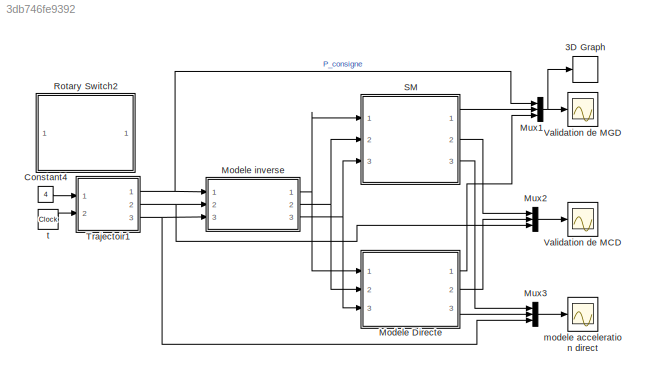
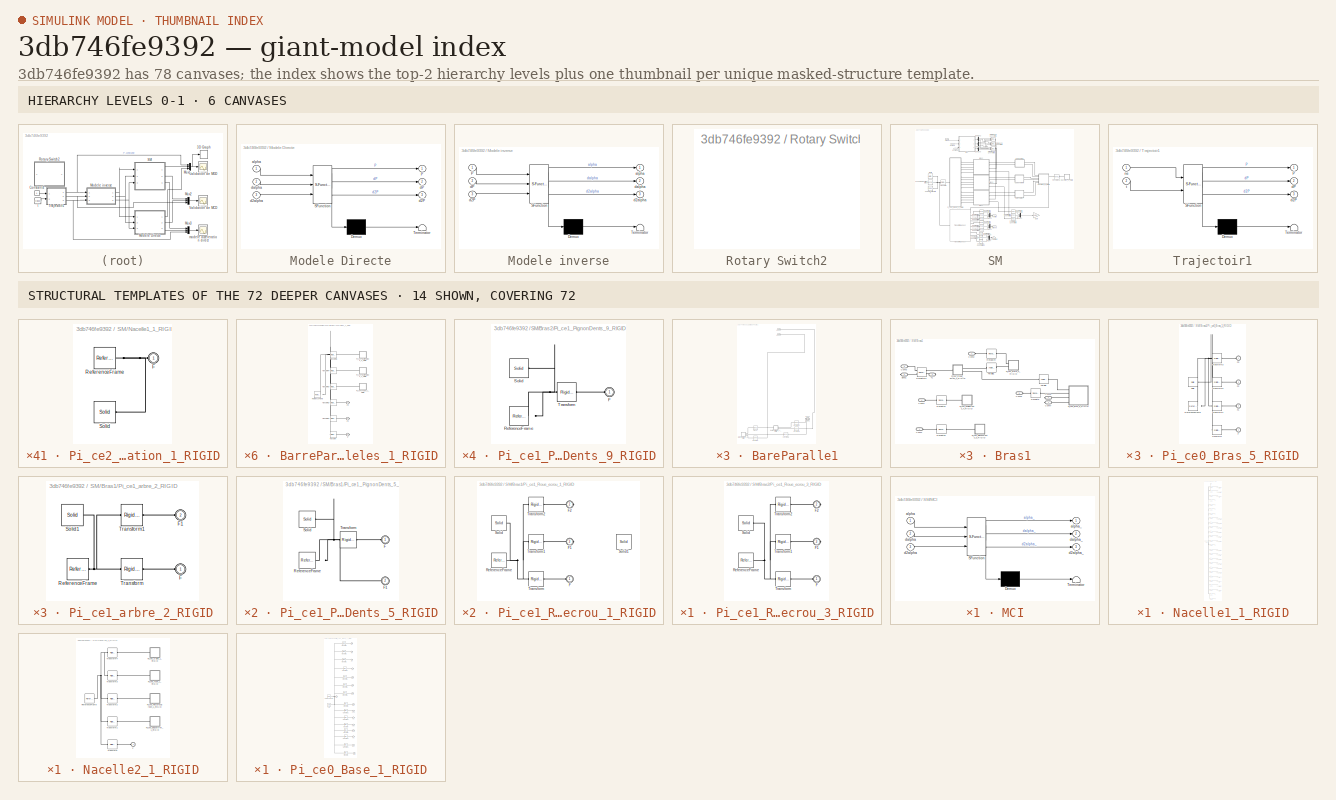
[diagram: thumbnail index - top-2 hierarchy levels (6 canvases) + 14 structural-template representatives of the remaining 72 canvases]
MODEL slx_3db746fe9392
KIND model
CONFIG AbsTol = auto
CONFIG FixedStep = auto
CONFIG MaxStep = auto
CONFIG MinStep = auto
CONFIG RelTol = 1e-3
CONFIG SampleTimeConstraint = Unconstrained
CONFIG Solver = ode45
CONFIG SolverMode = Auto
CONFIG SolverName = ode45
CONFIG StartTime = 0.0
CONFIG StopTime = 2.5
BLOCK [S-Function] 3D Graph
  CopyFcn = sfun3d([],[],[],'CopyBlock')
  DeleteFcn = sfun3d([],[],[],'DeleteBlock')
  EnableBusSupport = off
  FunctionName = sfun3d
  LoadFcn = sfun3d([],[],[],'LoadBlock')
  NameChangeFcn = sfun3d([],[],[],'NameChange')
  Parameters = ax,T,np,cp,gd,ls,mk
  Ports = [1]
  SFunctionDeploymentMode = off
  StartFcn = sfun3d([],[],[],'Start')
  StopFcn = sfun3d([],[],[],'Stop')
BLOCK [Constant] Constant4
  Value = 4
BLOCK [SubSystem] Modele Directe
  ErrorFcn = Stateflow.Translate.translate
  PermitHierarchicalResolution = ExplicitOnly
  Ports = [3, 3]
  RequestExecContextInheritance = off
  SFBlockType = MATLAB Function
  TreatAsAtomicUnit = on
  Variant = off
BLOCK [Demux] Modele Directe/ Demux 
  Outputs = 1
  Ports = [1, 1]
BLOCK [S-Function] Modele Directe/ SFunction 
  EnableBusSupport = on
  FunctionName = sf_sfun
  PortCounts = [3 4]
  Ports = [3, 4]
  SFunctionDeploymentMode = off
  Tag = Stateflow S-Function Modelisation_3_MG_MC_MA_Comparaison_avec_SimMechanics 3
BLOCK [Terminator] Modele Directe/ Terminator 
BLOCK [Outport] Modele Directe/P
  IconDisplay = Port number
BLOCK [Inport] Modele Directe/alpha
  IconDisplay = Port number
BLOCK [Outport] Modele Directe/d2P
  IconDisplay = Port number
  Port = 3
BLOCK [Inport] Modele Directe/d2alpha
  IconDisplay = Port number
  Port = 3
BLOCK [Outport] Modele Directe/dP
  IconDisplay = Port number
  Port = 2
BLOCK [Inport] Modele Directe/dalpha
  IconDisplay = Port number
  Port = 2
BLOCK [SubSystem] Modele inverse
  ErrorFcn = Stateflow.Translate.translate
  PermitHierarchicalResolution = ExplicitOnly
  Ports = [3, 3]
  RequestExecContextInheritance = off
  SFBlockType = MATLAB Function
  TreatAsAtomicUnit = on
  Variant = off
BLOCK [Demux] Modele inverse/ Demux 
  Outputs = 1
  Ports = [1, 1]
BLOCK [S-Function] Modele inverse/ SFunction 
  EnableBusSupport = on
  FunctionName = sf_sfun
  PortCounts = [3 4]
  Ports = [3, 4]
  SFunctionDeploymentMode = off
  Tag = Stateflow S-Function Modelisation_3_MG_MC_MA_Comparaison_avec_SimMechanics 2
BLOCK [Terminator] Modele inverse/ Terminator 
BLOCK [Inport] Modele inverse/P
  IconDisplay = Port number
BLOCK [Outport] Modele inverse/alpha
  IconDisplay = Port number
BLOCK [Inport] Modele inverse/d2P
  IconDisplay = Port number
  Port = 3
BLOCK [Outport] Modele inverse/d2alpha
  IconDisplay = Port number
  Port = 3
BLOCK [Inport] Modele inverse/dP
  IconDisplay = Port number
  Port = 2
BLOCK [Outport] Modele inverse/dalpha
  IconDisplay = Port number
  Port = 2
BLOCK [Mux] Mux1
  DisplayOption = bar
  Inputs = 3
  Ports = [3, 1]
BLOCK [Mux] Mux2
  DisplayOption = bar
  Inputs = 3
  Ports = [3, 1]
BLOCK [Mux] Mux3
  DisplayOption = bar
  Inputs = 3
  Ports = [3, 1]
BLOCK [SubSystem] Rotary Switch2
  DialogController = hmiCreateDDGDialog
  IsWebBlock = on
  MaskHideContents = on
  Ports = []
  RequestExecContextInheritance = off
  Variant = off
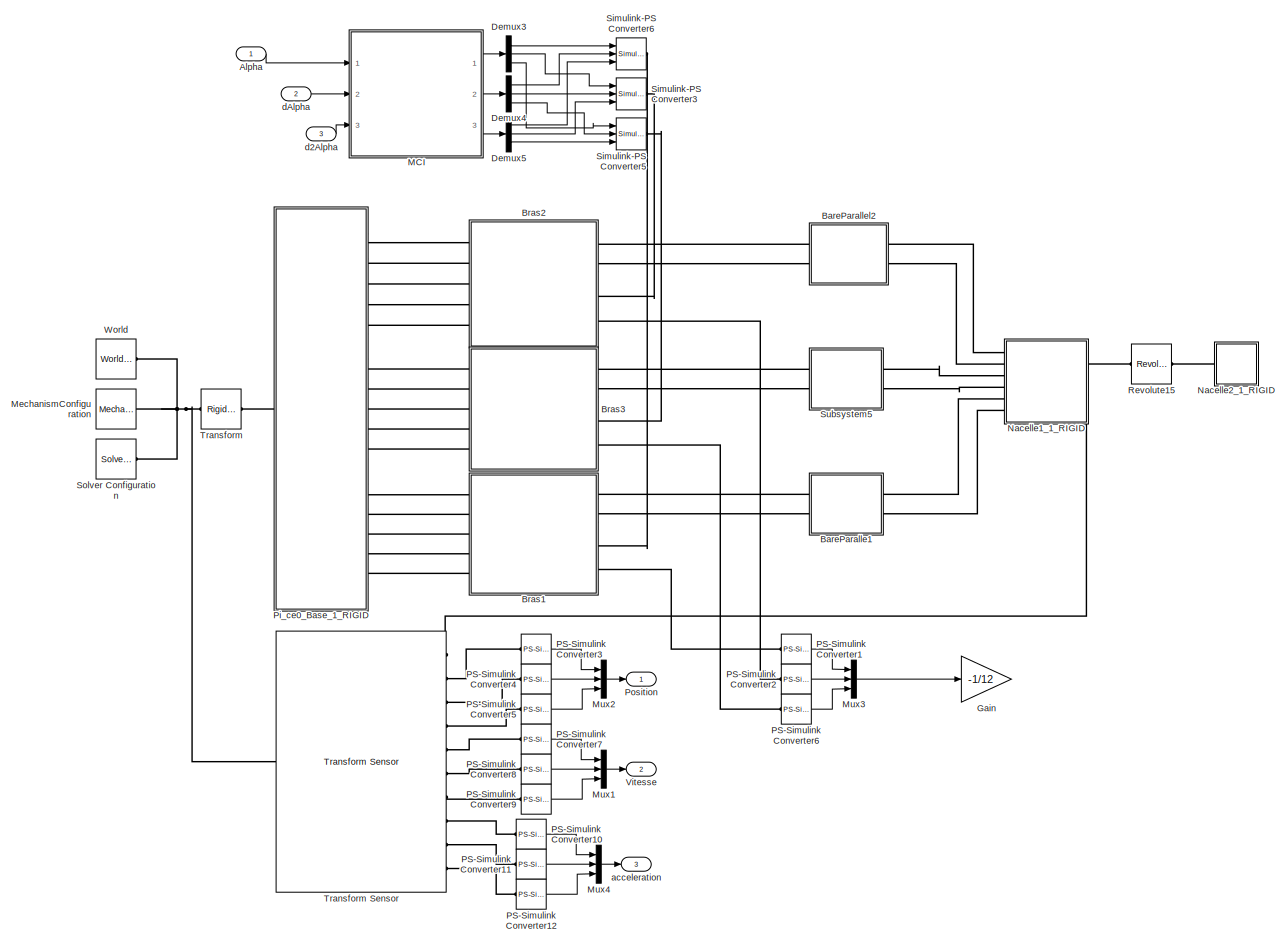
[diagram: SM - part 1/1, most of the canvas]
BLOCK [SubSystem] SM
  Ports = [3, 3]
  RequestExecContextInheritance = off
  Variant = off
BLOCK [Inport] SM/Alpha
  IconDisplay = Port number
BLOCK [SubSystem] SM/BareParalle1
  Ports = [0, 0, 0, 0, 0, 2, 2]
  RequestExecContextInheritance = off
  Variant = off
BLOCK [SubSystem] SM/BareParalle1/BarreParalleles_1_RIGID
  Ports = [0, 0, 0, 0, 0, 0, 3]
  RequestExecContextInheritance = off
  Variant = off
BLOCK [PMIOPort] SM/BareParalle1/BarreParalleles_1_RIGID/F
  Port = 3
  Side = Right
BLOCK [PMIOPort] SM/BareParalle1/BarreParalleles_1_RIGID/F1
  Port = 2
  Side = Right
BLOCK [PMIOPort] SM/BareParalle1/BarreParalleles_1_RIGID/F2
  Port = 1
  Side = Right
BLOCK [SubSystem] SM/BareParalle1/BarreParalleles_1_RIGID/Pi_ce4_Extremetees_1_RIGID
  Ports = [0, 0, 0, 0, 0, 1]
  RequestExecContextInheritance = off
  Variant = off
BLOCK [PMIOPort] SM/BareParalle1/BarreParalleles_1_RIGID/Pi_ce4_Extremetees_1_RIGID/F
  Port = 1
  Side = Left
BLOCK [Reference] SM/BareParalle1/BarreParalleles_1_RIGID/Pi_ce4_Extremetees_1_RIGID/ReferenceFrame  REF=sm_lib/Frames and
Transforms/Reference
Frame
  Ports = [0, 0, 0, 0, 0, 0, 1]
  SourceBlock = sm_lib/Frames and\nTransforms/Reference\nFrame
  SourceType = Reference\nFrame
BLOCK [Reference] SM/BareParalle1/BarreParalleles_1_RIGID/Pi_ce4_Extremetees_1_RIGID/Solid  REF=sm_lib/Body Elements/Solid
  Ports = [0, 0, 0, 0, 0, 0, 1]
  SourceBlock = sm_lib/Body Elements/Solid
  SourceType = Solid
BLOCK [SubSystem] SM/BareParalle1/BarreParalleles_1_RIGID/Pi_ce4_Extremetees_2_RIGID
  Ports = [0, 0, 0, 0, 0, 1]
  RequestExecContextInheritance = off
  Variant = off
BLOCK [PMIOPort] SM/BareParalle1/BarreParalleles_1_RIGID/Pi_ce4_Extremetees_2_RIGID/F
  Port = 1
  Side = Left
BLOCK [Reference] SM/BareParalle1/BarreParalleles_1_RIGID/Pi_ce4_Extremetees_2_RIGID/ReferenceFrame  REF=sm_lib/Frames and
Transforms/Reference
Frame
  Ports = [0, 0, 0, 0, 0, 0, 1]
  SourceBlock = sm_lib/Frames and\nTransforms/Reference\nFrame
  SourceType = Reference\nFrame
BLOCK [Reference] SM/BareParalle1/BarreParalleles_1_RIGID/Pi_ce4_Extremetees_2_RIGID/Solid  REF=sm_lib/Body Elements/Solid
  Ports = [0, 0, 0, 0, 0, 0, 1]
  SourceBlock = sm_lib/Body Elements/Solid
  SourceType = Solid
BLOCK [SubSystem] SM/BareParalle1/BarreParalleles_1_RIGID/Pi_ce4_Tube_1_RIGID
  Ports = [0, 0, 0, 0, 0, 1]
  RequestExecContextInheritance = off
  Variant = off
BLOCK [PMIOPort] SM/BareParalle1/BarreParalleles_1_RIGID/Pi_ce4_Tube_1_RIGID/F
  Port = 1
  Side = Left
BLOCK [Reference] SM/BareParalle1/BarreParalleles_1_RIGID/Pi_ce4_Tube_1_RIGID/ReferenceFrame  REF=sm_lib/Frames and
Transforms/Reference
Frame
  Ports = [0, 0, 0, 0, 0, 0, 1]
  SourceBlock = sm_lib/Frames and\nTransforms/Reference\nFrame
  SourceType = Reference\nFrame
BLOCK [Reference] SM/BareParalle1/BarreParalleles_1_RIGID/Pi_ce4_Tube_1_RIGID/Solid  REF=sm_lib/Body Elements/Solid
  Ports = [0, 0, 0, 0, 0, 0, 1]
  SourceBlock = sm_lib/Body Elements/Solid
  SourceType = Solid
BLOCK [Reference] SM/BareParalle1/BarreParalleles_1_RIGID/ReferenceFrame  REF=sm_lib/Frames and
Transforms/Reference
Frame
  Ports = [0, 0, 0, 0, 0, 0, 1]
  SourceBlock = sm_lib/Frames and\nTransforms/Reference\nFrame
  SourceType = Reference\nFrame
BLOCK [Reference] SM/BareParalle1/BarreParalleles_1_RIGID/Transform  REF=sm_lib/Frames and
Transforms/Rigid
Transform
  Ports = [0, 0, 0, 0, 0, 1, 1]
  SourceBlock = sm_lib/Frames and\nTransforms/Rigid\nTransform
  SourceType = Rigid\nTransform
BLOCK [Reference] SM/BareParalle1/BarreParalleles_1_RIGID/Transform1  REF=sm_lib/Frames and
Transforms/Rigid
Transform
  Ports = [0, 0, 0, 0, 0, 1, 1]
  SourceBlock = sm_lib/Frames and\nTransforms/Rigid\nTransform
  SourceType = Rigid\nTransform
BLOCK [Reference] SM/BareParalle1/BarreParalleles_1_RIGID/Transform2  REF=sm_lib/Frames and
Transforms/Rigid
Transform
  Ports = [0, 0, 0, 0, 0, 1, 1]
  SourceBlock = sm_lib/Frames and\nTransforms/Rigid\nTransform
  SourceType = Rigid\nTransform
BLOCK [Reference] SM/BareParalle1/BarreParalleles_1_RIGID/Transform3  REF=sm_lib/Frames and
Transforms/Rigid
Transform
  Ports = [0, 0, 0, 0, 0, 1, 1]
  SourceBlock = sm_lib/Frames and\nTransforms/Rigid\nTransform
  SourceType = Rigid\nTransform
BLOCK [Reference] SM/BareParalle1/BarreParalleles_1_RIGID/Transform4  REF=sm_lib/Frames and
Transforms/Rigid
Transform
  Ports = [0, 0, 0, 0, 0, 1, 1]
  SourceBlock = sm_lib/Frames and\nTransforms/Rigid\nTransform
  SourceType = Rigid\nTransform
BLOCK [Reference] SM/BareParalle1/BarreParalleles_1_RIGID/Transform5  REF=sm_lib/Frames and
Transforms/Rigid
Transform
  Ports = [0, 0, 0, 0, 0, 1, 1]
  SourceBlock = sm_lib/Frames and\nTransforms/Rigid\nTransform
  SourceType = Rigid\nTransform
BLOCK [SubSystem] SM/BareParalle1/BarreParalleles_2_RIGID
  Ports = [0, 0, 0, 0, 0, 1, 2]
  RequestExecContextInheritance = off
  Variant = off
BLOCK [PMIOPort] SM/BareParalle1/BarreParalleles_2_RIGID/F
  Port = 3
  Side = Right
BLOCK [PMIOPort] SM/BareParalle1/BarreParalleles_2_RIGID/F1
  Port = 2
  Side = Right
BLOCK [PMIOPort] SM/BareParalle1/BarreParalleles_2_RIGID/F2
  Port = 1
  Side = Left
BLOCK [SubSystem] SM/BareParalle1/BarreParalleles_2_RIGID/Pi_ce4_Extremetees_1_RIGID
  Ports = [0, 0, 0, 0, 0, 1]
  RequestExecContextInheritance = off
  Variant = off
BLOCK [PMIOPort] SM/BareParalle1/BarreParalleles_2_RIGID/Pi_ce4_Extremetees_1_RIGID/F
  Port = 1
  Side = Left
BLOCK [Reference] SM/BareParalle1/BarreParalleles_2_RIGID/Pi_ce4_Extremetees_1_RIGID/ReferenceFrame  REF=sm_lib/Frames and
Transforms/Reference
Frame
  Ports = [0, 0, 0, 0, 0, 0, 1]
  SourceBlock = sm_lib/Frames and\nTransforms/Reference\nFrame
  SourceType = Reference\nFrame
BLOCK [Reference] SM/BareParalle1/BarreParalleles_2_RIGID/Pi_ce4_Extremetees_1_RIGID/Solid  REF=sm_lib/Body Elements/Solid
  Ports = [0, 0, 0, 0, 0, 0, 1]
  SourceBlock = sm_lib/Body Elements/Solid
  SourceType = Solid
BLOCK [SubSystem] SM/BareParalle1/BarreParalleles_2_RIGID/Pi_ce4_Extremetees_2_RIGID
  Ports = [0, 0, 0, 0, 0, 1]
  RequestExecContextInheritance = off
  Variant = off
BLOCK [PMIOPort] SM/BareParalle1/BarreParalleles_2_RIGID/Pi_ce4_Extremetees_2_RIGID/F
  Port = 1
  Side = Left
BLOCK [Reference] SM/BareParalle1/BarreParalleles_2_RIGID/Pi_ce4_Extremetees_2_RIGID/ReferenceFrame  REF=sm_lib/Frames and
Transforms/Reference
Frame
  Ports = [0, 0, 0, 0, 0, 0, 1]
  SourceBlock = sm_lib/Frames and\nTransforms/Reference\nFrame
  SourceType = Reference\nFrame
BLOCK [Reference] SM/BareParalle1/BarreParalleles_2_RIGID/Pi_ce4_Extremetees_2_RIGID/Solid  REF=sm_lib/Body Elements/Solid
  Ports = [0, 0, 0, 0, 0, 0, 1]
  SourceBlock = sm_lib/Body Elements/Solid
  SourceType = Solid
BLOCK [SubSystem] SM/BareParalle1/BarreParalleles_2_RIGID/Pi_ce4_Tube_1_RIGID
  Ports = [0, 0, 0, 0, 0, 1]
  RequestExecContextInheritance = off
  Variant = off
BLOCK [PMIOPort] SM/BareParalle1/BarreParalleles_2_RIGID/Pi_ce4_Tube_1_RIGID/F
  Port = 1
  Side = Left
BLOCK [Reference] SM/BareParalle1/BarreParalleles_2_RIGID/Pi_ce4_Tube_1_RIGID/ReferenceFrame  REF=sm_lib/Frames and
Transforms/Reference
Frame
  Ports = [0, 0, 0, 0, 0, 0, 1]
  SourceBlock = sm_lib/Frames and\nTransforms/Reference\nFrame
  SourceType = Reference\nFrame
BLOCK [Reference] SM/BareParalle1/BarreParalleles_2_RIGID/Pi_ce4_Tube_1_RIGID/Solid  REF=sm_lib/Body Elements/Solid
  Ports = [0, 0, 0, 0, 0, 0, 1]
  SourceBlock = sm_lib/Body Elements/Solid
  SourceType = Solid
BLOCK [Reference] SM/BareParalle1/BarreParalleles_2_RIGID/ReferenceFrame  REF=sm_lib/Frames and
Transforms/Reference
Frame
  Ports = [0, 0, 0, 0, 0, 0, 1]
  SourceBlock = sm_lib/Frames and\nTransforms/Reference\nFrame
  SourceType = Reference\nFrame
BLOCK [Reference] SM/BareParalle1/BarreParalleles_2_RIGID/Transform  REF=sm_lib/Frames and
Transforms/Rigid
Transform
  Ports = [0, 0, 0, 0, 0, 1, 1]
  SourceBlock = sm_lib/Frames and\nTransforms/Rigid\nTransform
  SourceType = Rigid\nTransform
BLOCK [Reference] SM/BareParalle1/BarreParalleles_2_RIGID/Transform1  REF=sm_lib/Frames and
Transforms/Rigid
Transform
  Ports = [0, 0, 0, 0, 0, 1, 1]
  SourceBlock = sm_lib/Frames and\nTransforms/Rigid\nTransform
  SourceType = Rigid\nTransform
BLOCK [Reference] SM/BareParalle1/BarreParalleles_2_RIGID/Transform2  REF=sm_lib/Frames and
Transforms/Rigid
Transform
  Ports = [0, 0, 0, 0, 0, 1, 1]
  SourceBlock = sm_lib/Frames and\nTransforms/Rigid\nTransform
  SourceType = Rigid\nTransform
BLOCK [Reference] SM/BareParalle1/BarreParalleles_2_RIGID/Transform3  REF=sm_lib/Frames and
Transforms/Rigid
Transform
  Ports = [0, 0, 0, 0, 0, 1, 1]
  SourceBlock = sm_lib/Frames and\nTransforms/Rigid\nTransform
  SourceType = Rigid\nTransform
BLOCK [Reference] SM/BareParalle1/BarreParalleles_2_RIGID/Transform4  REF=sm_lib/Frames and
Transforms/Rigid
Transform
  Ports = [0, 0, 0, 0, 0, 1, 1]
  SourceBlock = sm_lib/Frames and\nTransforms/Rigid\nTransform
  SourceType = Rigid\nTransform
BLOCK [Reference] SM/BareParalle1/BarreParalleles_2_RIGID/Transform5  REF=sm_lib/Frames and
Transforms/Rigid
Transform
  Ports = [0, 0, 0, 0, 0, 1, 1]
  SourceBlock = sm_lib/Frames and\nTransforms/Rigid\nTransform
  SourceType = Rigid\nTransform
BLOCK [PMIOPort] SM/BareParalle1/Conn1
  Port = 1
  Side = Left
BLOCK [PMIOPort] SM/BareParalle1/Conn2
  Port = 2
  Side = Left
BLOCK [PMIOPort] SM/BareParalle1/Conn3
  Port = 3
  Side = Right
BLOCK [PMIOPort] SM/BareParalle1/Conn4
  Port = 4
  Side = Right
BLOCK [Reference] SM/BareParalle1/Planar  REF=sm_lib/Joints/Planar Joint
  Ports = [0, 0, 0, 0, 0, 1, 1]
  SourceBlock = sm_lib/Joints/Planar Joint
  SourceType = Planar Joint
BLOCK [Reference] SM/BareParalle1/Spherical  REF=sm_lib/Joints/Spherical
Joint
  Ports = [0, 0, 0, 0, 0, 1, 1]
  SourceBlock = sm_lib/Joints/Spherical\nJoint
  SourceType = Spherical\nJoint
BLOCK [Reference] SM/BareParalle1/Spherical1  REF=sm_lib/Joints/Spherical
Joint
  Ports = [0, 0, 0, 0, 0, 1, 1]
  SourceBlock = sm_lib/Joints/Spherical\nJoint
  SourceType = Spherical\nJoint
BLOCK [Reference] SM/BareParalle1/Spherical6  REF=sm_lib/Joints/Spherical
Joint
  Ports = [0, 0, 0, 0, 0, 1, 1]
  SourceBlock = sm_lib/Joints/Spherical\nJoint
  SourceType = Spherical\nJoint
BLOCK [Reference] SM/BareParalle1/Spherical7  REF=sm_lib/Joints/Spherical
Joint
  Ports = [0, 0, 0, 0, 0, 1, 1]
  SourceBlock = sm_lib/Joints/Spherical\nJoint
  SourceType = Spherical\nJoint
BLOCK [SubSystem] SM/BareParallel2
  Ports = [0, 0, 0, 0, 0, 2, 2]
  RequestExecContextInheritance = off
  Variant = off
BLOCK [SubSystem] SM/BareParallel2/BarreParalleles_5_RIGID
  Ports = [0, 0, 0, 0, 0, 0, 3]
  RequestExecContextInheritance = off
  Variant = off
BLOCK [PMIOPort] SM/BareParallel2/BarreParalleles_5_RIGID/F
  Port = 3
  Side = Right
BLOCK [PMIOPort] SM/BareParallel2/BarreParalleles_5_RIGID/F1
  Port = 2
  Side = Right
BLOCK [PMIOPort] SM/BareParallel2/BarreParalleles_5_RIGID/F2
  Port = 1
  Side = Right
BLOCK [SubSystem] SM/BareParallel2/BarreParalleles_5_RIGID/Pi_ce4_Extremetees_1_RIGID
  Ports = [0, 0, 0, 0, 0, 1]
  RequestExecContextInheritance = off
  Variant = off
BLOCK [PMIOPort] SM/BareParallel2/BarreParalleles_5_RIGID/Pi_ce4_Extremetees_1_RIGID/F
  Port = 1
  Side = Left
BLOCK [Reference] SM/BareParallel2/BarreParalleles_5_RIGID/Pi_ce4_Extremetees_1_RIGID/ReferenceFrame  REF=sm_lib/Frames and
Transforms/Reference
Frame
  Ports = [0, 0, 0, 0, 0, 0, 1]
  SourceBlock = sm_lib/Frames and\nTransforms/Reference\nFrame
  SourceType = Reference\nFrame
BLOCK [Reference] SM/BareParallel2/BarreParalleles_5_RIGID/Pi_ce4_Extremetees_1_RIGID/Solid  REF=sm_lib/Body Elements/Solid
  Ports = [0, 0, 0, 0, 0, 0, 1]
  SourceBlock = sm_lib/Body Elements/Solid
  SourceType = Solid
BLOCK [SubSystem] SM/BareParallel2/BarreParalleles_5_RIGID/Pi_ce4_Extremetees_2_RIGID
  Ports = [0, 0, 0, 0, 0, 1]
  RequestExecContextInheritance = off
  Variant = off
BLOCK [PMIOPort] SM/BareParallel2/BarreParalleles_5_RIGID/Pi_ce4_Extremetees_2_RIGID/F
  Port = 1
  Side = Left
BLOCK [Reference] SM/BareParallel2/BarreParalleles_5_RIGID/Pi_ce4_Extremetees_2_RIGID/ReferenceFrame  REF=sm_lib/Frames and
Transforms/Reference
Frame
  Ports = [0, 0, 0, 0, 0, 0, 1]
  SourceBlock = sm_lib/Frames and\nTransforms/Reference\nFrame
  SourceType = Reference\nFrame
BLOCK [Reference] SM/BareParallel2/BarreParalleles_5_RIGID/Pi_ce4_Extremetees_2_RIGID/Solid  REF=sm_lib/Body Elements/Solid
  Ports = [0, 0, 0, 0, 0, 0, 1]
  SourceBlock = sm_lib/Body Elements/Solid
  SourceType = Solid
BLOCK [SubSystem] SM/BareParallel2/BarreParalleles_5_RIGID/Pi_ce4_Tube_1_RIGID
  Ports = [0, 0, 0, 0, 0, 1]
  RequestExecContextInheritance = off
  Variant = off
BLOCK [PMIOPort] SM/BareParallel2/BarreParalleles_5_RIGID/Pi_ce4_Tube_1_RIGID/F
  Port = 1
  Side = Left
BLOCK [Reference] SM/BareParallel2/BarreParalleles_5_RIGID/Pi_ce4_Tube_1_RIGID/ReferenceFrame  REF=sm_lib/Frames and
Transforms/Reference
Frame
  Ports = [0, 0, 0, 0, 0, 0, 1]
  SourceBlock = sm_lib/Frames and\nTransforms/Reference\nFrame
  SourceType = Reference\nFrame
BLOCK [Reference] SM/BareParallel2/BarreParalleles_5_RIGID/Pi_ce4_Tube_1_RIGID/Solid  REF=sm_lib/Body Elements/Solid
  Ports = [0, 0, 0, 0, 0, 0, 1]
  SourceBlock = sm_lib/Body Elements/Solid
  SourceType = Solid
BLOCK [Reference] SM/BareParallel2/BarreParalleles_5_RIGID/ReferenceFrame  REF=sm_lib/Frames and
Transforms/Reference
Frame
  Ports = [0, 0, 0, 0, 0, 0, 1]
  SourceBlock = sm_lib/Frames and\nTransforms/Reference\nFrame
  SourceType = Reference\nFrame
BLOCK [Reference] SM/BareParallel2/BarreParalleles_5_RIGID/Transform  REF=sm_lib/Frames and
Transforms/Rigid
Transform
  Ports = [0, 0, 0, 0, 0, 1, 1]
  SourceBlock = sm_lib/Frames and\nTransforms/Rigid\nTransform
  SourceType = Rigid\nTransform
BLOCK [Reference] SM/BareParallel2/BarreParalleles_5_RIGID/Transform1  REF=sm_lib/Frames and
Transforms/Rigid
Transform
  Ports = [0, 0, 0, 0, 0, 1, 1]
  SourceBlock = sm_lib/Frames and\nTransforms/Rigid\nTransform
  SourceType = Rigid\nTransform
BLOCK [Reference] SM/BareParallel2/BarreParalleles_5_RIGID/Transform2  REF=sm_lib/Frames and
Transforms/Rigid
Transform
  Ports = [0, 0, 0, 0, 0, 1, 1]
  SourceBlock = sm_lib/Frames and\nTransforms/Rigid\nTransform
  SourceType = Rigid\nTransform
BLOCK [Reference] SM/BareParallel2/BarreParalleles_5_RIGID/Transform3  REF=sm_lib/Frames and
Transforms/Rigid
Transform
  Ports = [0, 0, 0, 0, 0, 1, 1]
  SourceBlock = sm_lib/Frames and\nTransforms/Rigid\nTransform
  SourceType = Rigid\nTransform
BLOCK [Reference] SM/BareParallel2/BarreParalleles_5_RIGID/Transform4  REF=sm_lib/Frames and
Transforms/Rigid
Transform
  Ports = [0, 0, 0, 0, 0, 1, 1]
  SourceBlock = sm_lib/Frames and\nTransforms/Rigid\nTransform
  SourceType = Rigid\nTransform
BLOCK [Reference] SM/BareParallel2/BarreParalleles_5_RIGID/Transform5  REF=sm_lib/Frames and
Transforms/Rigid
Transform
  Ports = [0, 0, 0, 0, 0, 1, 1]
  SourceBlock = sm_lib/Frames and\nTransforms/Rigid\nTransform
  SourceType = Rigid\nTransform
BLOCK [SubSystem] SM/BareParallel2/BarreParalleles_6_RIGID
  Ports = [0, 0, 0, 0, 0, 1, 2]
  RequestExecContextInheritance = off
  Variant = off
BLOCK [PMIOPort] SM/BareParallel2/BarreParalleles_6_RIGID/F
  Port = 3
  Side = Right
BLOCK [PMIOPort] SM/BareParallel2/BarreParalleles_6_RIGID/F1
  Port = 2
  Side = Right
BLOCK [PMIOPort] SM/BareParallel2/BarreParalleles_6_RIGID/F2
  Port = 1
  Side = Left
BLOCK [SubSystem] SM/BareParallel2/BarreParalleles_6_RIGID/Pi_ce4_Extremetees_1_RIGID
  Ports = [0, 0, 0, 0, 0, 1]
  RequestExecContextInheritance = off
  Variant = off
BLOCK [PMIOPort] SM/BareParallel2/BarreParalleles_6_RIGID/Pi_ce4_Extremetees_1_RIGID/F
  Port = 1
  Side = Left
BLOCK [Reference] SM/BareParallel2/BarreParalleles_6_RIGID/Pi_ce4_Extremetees_1_RIGID/ReferenceFrame  REF=sm_lib/Frames and
Transforms/Reference
Frame
  Ports = [0, 0, 0, 0, 0, 0, 1]
  SourceBlock = sm_lib/Frames and\nTransforms/Reference\nFrame
  SourceType = Reference\nFrame
BLOCK [Reference] SM/BareParallel2/BarreParalleles_6_RIGID/Pi_ce4_Extremetees_1_RIGID/Solid  REF=sm_lib/Body Elements/Solid
  Ports = [0, 0, 0, 0, 0, 0, 1]
  SourceBlock = sm_lib/Body Elements/Solid
  SourceType = Solid
BLOCK [SubSystem] SM/BareParallel2/BarreParalleles_6_RIGID/Pi_ce4_Extremetees_2_RIGID
  Ports = [0, 0, 0, 0, 0, 1]
  RequestExecContextInheritance = off
  Variant = off
BLOCK [PMIOPort] SM/BareParallel2/BarreParalleles_6_RIGID/Pi_ce4_Extremetees_2_RIGID/F
  Port = 1
  Side = Left
BLOCK [Reference] SM/BareParallel2/BarreParalleles_6_RIGID/Pi_ce4_Extremetees_2_RIGID/ReferenceFrame  REF=sm_lib/Frames and
Transforms/Reference
Frame
  Ports = [0, 0, 0, 0, 0, 0, 1]
  SourceBlock = sm_lib/Frames and\nTransforms/Reference\nFrame
  SourceType = Reference\nFrame
BLOCK [Reference] SM/BareParallel2/BarreParalleles_6_RIGID/Pi_ce4_Extremetees_2_RIGID/Solid  REF=sm_lib/Body Elements/Solid
  Ports = [0, 0, 0, 0, 0, 0, 1]
  SourceBlock = sm_lib/Body Elements/Solid
  SourceType = Solid
BLOCK [SubSystem] SM/BareParallel2/BarreParalleles_6_RIGID/Pi_ce4_Tube_1_RIGID
  Ports = [0, 0, 0, 0, 0, 1]
  RequestExecContextInheritance = off
  Variant = off
BLOCK [PMIOPort] SM/BareParallel2/BarreParalleles_6_RIGID/Pi_ce4_Tube_1_RIGID/F
  Port = 1
  Side = Left
BLOCK [Reference] SM/BareParallel2/BarreParalleles_6_RIGID/Pi_ce4_Tube_1_RIGID/ReferenceFrame  REF=sm_lib/Frames and
Transforms/Reference
Frame
  Ports = [0, 0, 0, 0, 0, 0, 1]
  SourceBlock = sm_lib/Frames and\nTransforms/Reference\nFrame
  SourceType = Reference\nFrame
BLOCK [Reference] SM/BareParallel2/BarreParalleles_6_RIGID/Pi_ce4_Tube_1_RIGID/Solid  REF=sm_lib/Body Elements/Solid
  Ports = [0, 0, 0, 0, 0, 0, 1]
  SourceBlock = sm_lib/Body Elements/Solid
  SourceType = Solid
BLOCK [Reference] SM/BareParallel2/BarreParalleles_6_RIGID/ReferenceFrame  REF=sm_lib/Frames and
Transforms/Reference
Frame
  Ports = [0, 0, 0, 0, 0, 0, 1]
  SourceBlock = sm_lib/Frames and\nTransforms/Reference\nFrame
  SourceType = Reference\nFrame
BLOCK [Reference] SM/BareParallel2/BarreParalleles_6_RIGID/Transform  REF=sm_lib/Frames and
Transforms/Rigid
Transform
  Ports = [0, 0, 0, 0, 0, 1, 1]
  SourceBlock = sm_lib/Frames and\nTransforms/Rigid\nTransform
  SourceType = Rigid\nTransform
BLOCK [Reference] SM/BareParallel2/BarreParalleles_6_RIGID/Transform1  REF=sm_lib/Frames and
Transforms/Rigid
Transform
  Ports = [0, 0, 0, 0, 0, 1, 1]
  SourceBlock = sm_lib/Frames and\nTransforms/Rigid\nTransform
  SourceType = Rigid\nTransform
BLOCK [Reference] SM/BareParallel2/BarreParalleles_6_RIGID/Transform2  REF=sm_lib/Frames and
Transforms/Rigid
Transform
  Ports = [0, 0, 0, 0, 0, 1, 1]
  SourceBlock = sm_lib/Frames and\nTransforms/Rigid\nTransform
  SourceType = Rigid\nTransform
BLOCK [Reference] SM/BareParallel2/BarreParalleles_6_RIGID/Transform3  REF=sm_lib/Frames and
Transforms/Rigid
Transform
  Ports = [0, 0, 0, 0, 0, 1, 1]
  SourceBlock = sm_lib/Frames and\nTransforms/Rigid\nTransform
  SourceType = Rigid\nTransform
BLOCK [Reference] SM/BareParallel2/BarreParalleles_6_RIGID/Transform4  REF=sm_lib/Frames and
Transforms/Rigid
Transform
  Ports = [0, 0, 0, 0, 0, 1, 1]
  SourceBlock = sm_lib/Frames and\nTransforms/Rigid\nTransform
  SourceType = Rigid\nTransform
BLOCK [Reference] SM/BareParallel2/BarreParalleles_6_RIGID/Transform5  REF=sm_lib/Frames and
Transforms/Rigid
Transform
  Ports = [0, 0, 0, 0, 0, 1, 1]
  SourceBlock = sm_lib/Frames and\nTransforms/Rigid\nTransform
  SourceType = Rigid\nTransform
BLOCK [PMIOPort] SM/BareParallel2/Conn1
  Port = 1
  Side = Left
BLOCK [PMIOPort] SM/BareParallel2/Conn2
  Port = 2
  Side = Left
BLOCK [PMIOPort] SM/BareParallel2/Conn3
  Port = 3
  Side = Right
BLOCK [PMIOPort] SM/BareParallel2/Conn4
  Port = 4
  Side = Right
BLOCK [Reference] SM/BareParallel2/Planar2  REF=sm_lib/Joints/Planar Joint
  Ports = [0, 0, 0, 0, 0, 1, 1]
  SourceBlock = sm_lib/Joints/Planar Joint
  SourceType = Planar Joint
BLOCK [Reference] SM/BareParallel2/Spherical10  REF=sm_lib/Joints/Spherical
Joint
  Ports = [0, 0, 0, 0, 0, 1, 1]
  SourceBlock = sm_lib/Joints/Spherical\nJoint
  SourceType = Spherical\nJoint
BLOCK [Reference] SM/BareParallel2/Spherical11  REF=sm_lib/Joints/Spherical
Joint
  Ports = [0, 0, 0, 0, 0, 1, 1]
  SourceBlock = sm_lib/Joints/Spherical\nJoint
  SourceType = Spherical\nJoint
BLOCK [Reference] SM/BareParallel2/Spherical2  REF=sm_lib/Joints/Spherical
Joint
  Ports = [0, 0, 0, 0, 0, 1, 1]
  SourceBlock = sm_lib/Joints/Spherical\nJoint
  SourceType = Spherical\nJoint
BLOCK [Reference] SM/BareParallel2/Spherical3  REF=sm_lib/Joints/Spherical
Joint
  Ports = [0, 0, 0, 0, 0, 1, 1]
  SourceBlock = sm_lib/Joints/Spherical\nJoint
  SourceType = Spherical\nJoint
BLOCK [SubSystem] SM/Bras1
  Ports = [0, 0, 0, 0, 0, 5, 4]
  RequestExecContextInheritance = off
  Variant = off
BLOCK [PMIOPort] SM/Bras1/Alpha1
  Port = 8
  Side = Right
BLOCK [PMIOPort] SM/Bras1/Conn1
  Port = 1
  Side = Left
BLOCK [PMIOPort] SM/Bras1/Conn2
  Port = 2
  Side = Left
BLOCK [PMIOPort] SM/Bras1/Conn3
  Port = 3
  Side = Left
BLOCK [PMIOPort] SM/Bras1/Conn4
  Port = 4
  Side = Left
BLOCK [PMIOPort] SM/Bras1/Conn5
  Port = 5
  Side = Left
BLOCK [PMIOPort] SM/Bras1/Conn6
  Port = 6
  Side = Right
BLOCK [PMIOPort] SM/Bras1/Conn7
  Port = 7
  Side = Right
BLOCK [Reference] SM/Bras1/Parallel  REF=sm_lib/Constraints/Angle
Constraint
  Ports = [0, 0, 0, 0, 0, 1, 1]
  SourceBlock = sm_lib/Constraints/Angle\nConstraint
  SourceType = Angle\nConstraint
BLOCK [Reference] SM/Bras1/Parallel1  REF=sm_lib/Constraints/Angle
Constraint
  Ports = [0, 0, 0, 0, 0, 1, 1]
  SourceBlock = sm_lib/Constraints/Angle\nConstraint
  SourceType = Angle\nConstraint
BLOCK [SubSystem] SM/Bras1/Pi_ce0_Bras_5_RIGID
  Ports = [0, 0, 0, 0, 0, 4]
  RequestExecContextInheritance = off
  Variant = off
BLOCK [PMIOPort] SM/Bras1/Pi_ce0_Bras_5_RIGID/F
  Port = 2
  Side = Left
BLOCK [PMIOPort] SM/Bras1/Pi_ce0_Bras_5_RIGID/F1
  Port = 4
  Side = Left
BLOCK [PMIOPort] SM/Bras1/Pi_ce0_Bras_5_RIGID/F2
  Port = 3
  Side = Left
BLOCK [PMIOPort] SM/Bras1/Pi_ce0_Bras_5_RIGID/F3
  Port = 1
  Side = Left
BLOCK [Reference] SM/Bras1/Pi_ce0_Bras_5_RIGID/ReferenceFrame  REF=sm_lib/Frames and
Transforms/Reference
Frame
  Ports = [0, 0, 0, 0, 0, 0, 1]
  SourceBlock = sm_lib/Frames and\nTransforms/Reference\nFrame
  SourceType = Reference\nFrame
BLOCK [Reference] SM/Bras1/Pi_ce0_Bras_5_RIGID/Solid  REF=sm_lib/Body Elements/Solid
  Ports = [0, 0, 0, 0, 0, 0, 1]
  SourceBlock = sm_lib/Body Elements/Solid
  SourceType = Solid
BLOCK [Reference] SM/Bras1/Pi_ce0_Bras_5_RIGID/Transform  REF=sm_lib/Frames and
Transforms/Rigid
Transform
  Ports = [0, 0, 0, 0, 0, 1, 1]
  SourceBlock = sm_lib/Frames and\nTransforms/Rigid\nTransform
  SourceType = Rigid\nTransform
BLOCK [Reference] SM/Bras1/Pi_ce0_Bras_5_RIGID/Transform1  REF=sm_lib/Frames and
Transforms/Rigid
Transform
  Ports = [0, 0, 0, 0, 0, 1, 1]
  SourceBlock = sm_lib/Frames and\nTransforms/Rigid\nTransform
  SourceType = Rigid\nTransform
BLOCK [Reference] SM/Bras1/Pi_ce0_Bras_5_RIGID/Transform2  REF=sm_lib/Frames and
Transforms/Rigid
Transform
  Ports = [0, 0, 0, 0, 0, 1, 1]
  SourceBlock = sm_lib/Frames and\nTransforms/Rigid\nTransform
  SourceType = Rigid\nTransform
BLOCK [Reference] SM/Bras1/Pi_ce0_Bras_5_RIGID/Transform3  REF=sm_lib/Frames and
Transforms/Rigid
Transform
  Ports = [0, 0, 0, 0, 0, 1, 1]
  SourceBlock = sm_lib/Frames and\nTransforms/Rigid\nTransform
  SourceType = Rigid\nTransform
BLOCK [SubSystem] SM/Bras1/Pi_ce1_PignonDents_5_RIGID
  Ports = [0, 0, 0, 0, 0, 1, 1]
  RequestExecContextInheritance = off
  Variant = off
BLOCK [PMIOPort] SM/Bras1/Pi_ce1_PignonDents_5_RIGID/F
  Port = 1
  Side = Left
BLOCK [PMIOPort] SM/Bras1/Pi_ce1_PignonDents_5_RIGID/F1
  Port = 2
  Side = Right
BLOCK [Reference] SM/Bras1/Pi_ce1_PignonDents_5_RIGID/ReferenceFrame  REF=sm_lib/Frames and
Transforms/Reference
Frame
  Ports = [0, 0, 0, 0, 0, 0, 1]
  SourceBlock = sm_lib/Frames and\nTransforms/Reference\nFrame
  SourceType = Reference\nFrame
BLOCK [Reference] SM/Bras1/Pi_ce1_PignonDents_5_RIGID/Solid  REF=sm_lib/Body Elements/Solid
  Ports = [0, 0, 0, 0, 0, 0, 1]
  SourceBlock = sm_lib/Body Elements/Solid
  SourceType = Solid
BLOCK [Reference] SM/Bras1/Pi_ce1_PignonDents_5_RIGID/Transform  REF=sm_lib/Frames and
Transforms/Rigid
Transform
  Ports = [0, 0, 0, 0, 0, 1, 1]
  SourceBlock = sm_lib/Frames and\nTransforms/Rigid\nTransform
  SourceType = Rigid\nTransform
BLOCK [SubSystem] SM/Bras1/Pi_ce1_Roue_ecrou_1_RIGID
  Ports = [0, 0, 0, 0, 0, 1, 2]
  RequestExecContextInheritance = off
  Variant = off
BLOCK [PMIOPort] SM/Bras1/Pi_ce1_Roue_ecrou_1_RIGID/F
  Port = 1
  Side = Left
BLOCK [PMIOPort] SM/Bras1/Pi_ce1_Roue_ecrou_1_RIGID/F1
  Port = 3
  Side = Right
BLOCK [PMIOPort] SM/Bras1/Pi_ce1_Roue_ecrou_1_RIGID/F2
  Port = 2
  Side = Right
BLOCK [Reference] SM/Bras1/Pi_ce1_Roue_ecrou_1_RIGID/ReferenceFrame  REF=sm_lib/Frames and
Transforms/Reference
Frame
  Ports = [0, 0, 0, 0, 0, 0, 1]
  SourceBlock = sm_lib/Frames and\nTransforms/Reference\nFrame
  SourceType = Reference\nFrame
BLOCK [Reference] SM/Bras1/Pi_ce1_Roue_ecrou_1_RIGID/Solid  REF=sm_lib/Body Elements/Solid
  Ports = [0, 0, 0, 0, 0, 0, 1]
  SourceBlock = sm_lib/Body Elements/Solid
  SourceType = Solid
BLOCK [Reference] SM/Bras1/Pi_ce1_Roue_ecrou_1_RIGID/Solid1  REF=sm_lib/Body Elements/Solid
  Commented = on
  Ports = [0, 0, 0, 0, 0, 0, 1]
  SourceBlock = sm_lib/Body Elements/Solid
  SourceType = Solid
BLOCK [Reference] SM/Bras1/Pi_ce1_Roue_ecrou_1_RIGID/Transform  REF=sm_lib/Frames and
Transforms/Rigid
Transform
  Ports = [0, 0, 0, 0, 0, 1, 1]
  SourceBlock = sm_lib/Frames and\nTransforms/Rigid\nTransform
  SourceType = Rigid\nTransform
BLOCK [Reference] SM/Bras1/Pi_ce1_Roue_ecrou_1_RIGID/Transform1  REF=sm_lib/Frames and
Transforms/Rigid
Transform
  Ports = [0, 0, 0, 0, 0, 1, 1]
  SourceBlock = sm_lib/Frames and\nTransforms/Rigid\nTransform
  SourceType = Rigid\nTransform
BLOCK [Reference] SM/Bras1/Pi_ce1_Roue_ecrou_1_RIGID/Transform2  REF=sm_lib/Frames and
Transforms/Rigid
Transform
  Ports = [0, 0, 0, 0, 0, 1, 1]
  SourceBlock = sm_lib/Frames and\nTransforms/Rigid\nTransform
  SourceType = Rigid\nTransform
BLOCK [SubSystem] SM/Bras1/Pi_ce1_arbre_2_RIGID
  Ports = [0, 0, 0, 0, 0, 2]
  RequestExecContextInheritance = off
  Variant = off
BLOCK [PMIOPort] SM/Bras1/Pi_ce1_arbre_2_RIGID/F
  Port = 1
  Side = Left
BLOCK [PMIOPort] SM/Bras1/Pi_ce1_arbre_2_RIGID/F1
  Port = 2
  Side = Left
BLOCK [Reference] SM/Bras1/Pi_ce1_arbre_2_RIGID/ReferenceFrame  REF=sm_lib/Frames and
Transforms/Reference
Frame
  Ports = [0, 0, 0, 0, 0, 0, 1]
  SourceBlock = sm_lib/Frames and\nTransforms/Reference\nFrame
  SourceType = Reference\nFrame
BLOCK [Reference] SM/Bras1/Pi_ce1_arbre_2_RIGID/Solid1  REF=sm_lib/Body Elements/Solid
  Ports = [0, 0, 0, 0, 0, 0, 1]
  SourceBlock = sm_lib/Body Elements/Solid
  SourceType = Solid
BLOCK [Reference] SM/Bras1/Pi_ce1_arbre_2_RIGID/Transform  REF=sm_lib/Frames and
Transforms/Rigid
Transform
  Ports = [0, 0, 0, 0, 0, 1, 1]
  SourceBlock = sm_lib/Frames and\nTransforms/Rigid\nTransform
  SourceType = Rigid\nTransform
BLOCK [Reference] SM/Bras1/Pi_ce1_arbre_2_RIGID/Transform1  REF=sm_lib/Frames and
Transforms/Rigid
Transform
  Ports = [0, 0, 0, 0, 0, 1, 1]
  SourceBlock = sm_lib/Frames and\nTransforms/Rigid\nTransform
  SourceType = Rigid\nTransform
BLOCK [SubSystem] SM/Bras1/Pi_ce1_poulieDents_4_RIGID
  Ports = [0, 0, 0, 0, 0, 1, 1]
  RequestExecContextInheritance = off
  Variant = off
BLOCK [PMIOPort] SM/Bras1/Pi_ce1_poulieDents_4_RIGID/F
  Port = 1
  Side = Left
BLOCK [PMIOPort] SM/Bras1/Pi_ce1_poulieDents_4_RIGID/F1
  Port = 2
  Side = Right
BLOCK [Reference] SM/Bras1/Pi_ce1_poulieDents_4_RIGID/ReferenceFrame  REF=sm_lib/Frames and
Transforms/Reference
Frame
  Ports = [0, 0, 0, 0, 0, 0, 1]
  SourceBlock = sm_lib/Frames and\nTransforms/Reference\nFrame
  SourceType = Reference\nFrame
BLOCK [Reference] SM/Bras1/Pi_ce1_poulieDents_4_RIGID/Solid  REF=sm_lib/Body Elements/Solid
  Ports = [0, 0, 0, 0, 0, 0, 1]
  SourceBlock = sm_lib/Body Elements/Solid
  SourceType = Solid
BLOCK [Reference] SM/Bras1/Pi_ce1_poulieDents_4_RIGID/Transform  REF=sm_lib/Frames and
Transforms/Rigid
Transform
  Ports = [0, 0, 0, 0, 0, 1, 1]
  SourceBlock = sm_lib/Frames and\nTransforms/Rigid\nTransform
  SourceType = Rigid\nTransform
BLOCK [Reference] SM/Bras1/Revolute  REF=sm_lib/Joints/Revolute Joint
  Ports = [0, 0, 0, 0, 0, 1, 1]
  SourceBlock = sm_lib/Joints/Revolute Joint
  SourceType = Revolute Joint
BLOCK [Reference] SM/Bras1/Revolute1  REF=sm_lib/Joints/Revolute Joint
  Ports = [0, 0, 0, 0, 0, 1, 1]
  SourceBlock = sm_lib/Joints/Revolute Joint
  SourceType = Revolute Joint
BLOCK [Reference] SM/Bras1/Revolute14  REF=sm_lib/Joints/Revolute Joint
  Ports = [0, 0, 0, 0, 0, 2, 2]
  SourceBlock = sm_lib/Joints/Revolute Joint
  SourceType = Revolute Joint
BLOCK [Reference] SM/Bras1/Revolute2  REF=sm_lib/Joints/Revolute Joint
  Ports = [0, 0, 0, 0, 0, 1, 1]
  SourceBlock = sm_lib/Joints/Revolute Joint
  SourceType = Revolute Joint
BLOCK [Reference] SM/Bras1/Revolute4  REF=sm_lib/Joints/Revolute Joint
  Ports = [0, 0, 0, 0, 0, 1, 1]
  SourceBlock = sm_lib/Joints/Revolute Joint
  SourceType = Revolute Joint
BLOCK [PMIOPort] SM/Bras1/T1
  Port = 9
  Side = Right
BLOCK [SubSystem] SM/Bras2
  Ports = [0, 0, 0, 0, 0, 5, 4]
  RequestExecContextInheritance = off
  Variant = off
BLOCK [PMIOPort] SM/Bras2/Conn1
  Port = 1
  Side = Left
BLOCK [PMIOPort] SM/Bras2/Conn2
  Port = 2
  Side = Left
BLOCK [PMIOPort] SM/Bras2/Conn3
  Port = 3
  Side = Left
BLOCK [PMIOPort] SM/Bras2/Conn4
  Port = 4
  Side = Left
BLOCK [PMIOPort] SM/Bras2/Conn5
  Port = 5
  Side = Left
BLOCK [PMIOPort] SM/Bras2/Conn6
  Port = 6
  Side = Right
BLOCK [PMIOPort] SM/Bras2/Conn7
  Port = 7
  Side = Right
BLOCK [PMIOPort] SM/Bras2/Conn8
  Port = 8
  Side = Right
BLOCK [Reference] SM/Bras2/Parallel4  REF=sm_lib/Constraints/Angle
Constraint
  Ports = [0, 0, 0, 0, 0, 1, 1]
  SourceBlock = sm_lib/Constraints/Angle\nConstraint
  SourceType = Angle\nConstraint
BLOCK [Reference] SM/Bras2/Parallel5  REF=sm_lib/Constraints/Angle
Constraint
  Ports = [0, 0, 0, 0, 0, 1, 1]
  SourceBlock = sm_lib/Constraints/Angle\nConstraint
  SourceType = Angle\nConstraint
BLOCK [SubSystem] SM/Bras2/Pi_ce0_Bras_6_RIGID
  Ports = [0, 0, 0, 0, 0, 4]
  RequestExecContextInheritance = off
  Variant = off
BLOCK [PMIOPort] SM/Bras2/Pi_ce0_Bras_6_RIGID/F
  Port = 2
  Side = Left
BLOCK [PMIOPort] SM/Bras2/Pi_ce0_Bras_6_RIGID/F1
  Port = 4
  Side = Left
BLOCK [PMIOPort] SM/Bras2/Pi_ce0_Bras_6_RIGID/F2
  Port = 3
  Side = Left
BLOCK [PMIOPort] SM/Bras2/Pi_ce0_Bras_6_RIGID/F3
  Port = 1
  Side = Left
BLOCK [Reference] SM/Bras2/Pi_ce0_Bras_6_RIGID/ReferenceFrame  REF=sm_lib/Frames and
Transforms/Reference
Frame
  Ports = [0, 0, 0, 0, 0, 0, 1]
  SourceBlock = sm_lib/Frames and\nTransforms/Reference\nFrame
  SourceType = Reference\nFrame
BLOCK [Reference] SM/Bras2/Pi_ce0_Bras_6_RIGID/Solid  REF=sm_lib/Body Elements/Solid
  Ports = [0, 0, 0, 0, 0, 0, 1]
  SourceBlock = sm_lib/Body Elements/Solid
  SourceType = Solid
BLOCK [Reference] SM/Bras2/Pi_ce0_Bras_6_RIGID/Transform  REF=sm_lib/Frames and
Transforms/Rigid
Transform
  Ports = [0, 0, 0, 0, 0, 1, 1]
  SourceBlock = sm_lib/Frames and\nTransforms/Rigid\nTransform
  SourceType = Rigid\nTransform
BLOCK [Reference] SM/Bras2/Pi_ce0_Bras_6_RIGID/Transform1  REF=sm_lib/Frames and
Transforms/Rigid
Transform
  Ports = [0, 0, 0, 0, 0, 1, 1]
  SourceBlock = sm_lib/Frames and\nTransforms/Rigid\nTransform
  SourceType = Rigid\nTransform
BLOCK [Reference] SM/Bras2/Pi_ce0_Bras_6_RIGID/Transform2  REF=sm_lib/Frames and
Transforms/Rigid
Transform
  Ports = [0, 0, 0, 0, 0, 1, 1]
  SourceBlock = sm_lib/Frames and\nTransforms/Rigid\nTransform
  SourceType = Rigid\nTransform
BLOCK [Reference] SM/Bras2/Pi_ce0_Bras_6_RIGID/Transform3  REF=sm_lib/Frames and
Transforms/Rigid
Transform
  Ports = [0, 0, 0, 0, 0, 1, 1]
  SourceBlock = sm_lib/Frames and\nTransforms/Rigid\nTransform
  SourceType = Rigid\nTransform
BLOCK [SubSystem] SM/Bras2/Pi_ce1_PignonDents_9_RIGID
  Ports = [0, 0, 0, 0, 0, 1]
  RequestExecContextInheritance = off
  Variant = off
BLOCK [PMIOPort] SM/Bras2/Pi_ce1_PignonDents_9_RIGID/F
  Port = 1
  Side = Left
BLOCK [Reference] SM/Bras2/Pi_ce1_PignonDents_9_RIGID/ReferenceFrame  REF=sm_lib/Frames and
Transforms/Reference
Frame
  Ports = [0, 0, 0, 0, 0, 0, 1]
  SourceBlock = sm_lib/Frames and\nTransforms/Reference\nFrame
  SourceType = Reference\nFrame
BLOCK [Reference] SM/Bras2/Pi_ce1_PignonDents_9_RIGID/Solid  REF=sm_lib/Body Elements/Solid
  Ports = [0, 0, 0, 0, 0, 0, 1]
  SourceBlock = sm_lib/Body Elements/Solid
  SourceType = Solid
BLOCK [Reference] SM/Bras2/Pi_ce1_PignonDents_9_RIGID/Transform  REF=sm_lib/Frames and
Transforms/Rigid
Transform
  Ports = [0, 0, 0, 0, 0, 1, 1]
  SourceBlock = sm_lib/Frames and\nTransforms/Rigid\nTransform
  SourceType = Rigid\nTransform
BLOCK [SubSystem] SM/Bras2/Pi_ce1_Roue_ecrou_3_RIGID
  Ports = [0, 0, 0, 0, 0, 1, 2]
  RequestExecContextInheritance = off
  Variant = off
BLOCK [PMIOPort] SM/Bras2/Pi_ce1_Roue_ecrou_3_RIGID/F
  Port = 1
  Side = Left
BLOCK [PMIOPort] SM/Bras2/Pi_ce1_Roue_ecrou_3_RIGID/F1
  Port = 3
  Side = Right
BLOCK [PMIOPort] SM/Bras2/Pi_ce1_Roue_ecrou_3_RIGID/F2
  Port = 2
  Side = Right
BLOCK [Reference] SM/Bras2/Pi_ce1_Roue_ecrou_3_RIGID/ReferenceFrame  REF=sm_lib/Frames and
Transforms/Reference
Frame
  Ports = [0, 0, 0, 0, 0, 0, 1]
  SourceBlock = sm_lib/Frames and\nTransforms/Reference\nFrame
  SourceType = Reference\nFrame
BLOCK [Reference] SM/Bras2/Pi_ce1_Roue_ecrou_3_RIGID/Solid  REF=sm_lib/Body Elements/Solid
  Ports = [0, 0, 0, 0, 0, 0, 1]
  SourceBlock = sm_lib/Body Elements/Solid
  SourceType = Solid
BLOCK [Reference] SM/Bras2/Pi_ce1_Roue_ecrou_3_RIGID/Transform  REF=sm_lib/Frames and
Transforms/Rigid
Transform
  Ports = [0, 0, 0, 0, 0, 1, 1]
  SourceBlock = sm_lib/Frames and\nTransforms/Rigid\nTransform
  SourceType = Rigid\nTransform
BLOCK [Reference] SM/Bras2/Pi_ce1_Roue_ecrou_3_RIGID/Transform1  REF=sm_lib/Frames and
Transforms/Rigid
Transform
  Ports = [0, 0, 0, 0, 0, 1, 1]
  SourceBlock = sm_lib/Frames and\nTransforms/Rigid\nTransform
  SourceType = Rigid\nTransform
BLOCK [Reference] SM/Bras2/Pi_ce1_Roue_ecrou_3_RIGID/Transform2  REF=sm_lib/Frames and
Transforms/Rigid
Transform
  Ports = [0, 0, 0, 0, 0, 1, 1]
  SourceBlock = sm_lib/Frames and\nTransforms/Rigid\nTransform
  SourceType = Rigid\nTransform
BLOCK [SubSystem] SM/Bras2/Pi_ce1_arbre_1_RIGID
  Ports = [0, 0, 0, 0, 0, 2]
  RequestExecContextInheritance = off
  Variant = off
BLOCK [PMIOPort] SM/Bras2/Pi_ce1_arbre_1_RIGID/F
  Port = 1
  Side = Left
BLOCK [PMIOPort] SM/Bras2/Pi_ce1_arbre_1_RIGID/F1
  Port = 2
  Side = Left
BLOCK [Reference] SM/Bras2/Pi_ce1_arbre_1_RIGID/ReferenceFrame  REF=sm_lib/Frames and
Transforms/Reference
Frame
  Ports = [0, 0, 0, 0, 0, 0, 1]
  SourceBlock = sm_lib/Frames and\nTransforms/Reference\nFrame
  SourceType = Reference\nFrame
BLOCK [Reference] SM/Bras2/Pi_ce1_arbre_1_RIGID/Solid  REF=sm_lib/Body Elements/Solid
  Ports = [0, 0, 0, 0, 0, 0, 1]
  SourceBlock = sm_lib/Body Elements/Solid
  SourceType = Solid
BLOCK [Reference] SM/Bras2/Pi_ce1_arbre_1_RIGID/Transform  REF=sm_lib/Frames and
Transforms/Rigid
Transform
  Ports = [0, 0, 0, 0, 0, 1, 1]
  SourceBlock = sm_lib/Frames and\nTransforms/Rigid\nTransform
  SourceType = Rigid\nTransform
BLOCK [Reference] SM/Bras2/Pi_ce1_arbre_1_RIGID/Transform1  REF=sm_lib/Frames and
Transforms/Rigid
Transform
  Ports = [0, 0, 0, 0, 0, 1, 1]
  SourceBlock = sm_lib/Frames and\nTransforms/Rigid\nTransform
  SourceType = Rigid\nTransform
BLOCK [SubSystem] SM/Bras2/Pi_ce1_poulieDents_2_RIGID
  Ports = [0, 0, 0, 0, 0, 1]
  RequestExecContextInheritance = off
  Variant = off
BLOCK [PMIOPort] SM/Bras2/Pi_ce1_poulieDents_2_RIGID/F
  Port = 1
  Side = Left
BLOCK [Reference] SM/Bras2/Pi_ce1_poulieDents_2_RIGID/ReferenceFrame  REF=sm_lib/Frames and
Transforms/Reference
Frame
  Ports = [0, 0, 0, 0, 0, 0, 1]
  SourceBlock = sm_lib/Frames and\nTransforms/Reference\nFrame
  SourceType = Reference\nFrame
BLOCK [Reference] SM/Bras2/Pi_ce1_poulieDents_2_RIGID/Solid  REF=sm_lib/Body Elements/Solid
  Ports = [0, 0, 0, 0, 0, 0, 1]
  SourceBlock = sm_lib/Body Elements/Solid
  SourceType = Solid
BLOCK [Reference] SM/Bras2/Pi_ce1_poulieDents_2_RIGID/Transform  REF=sm_lib/Frames and
Transforms/Rigid
Transform
  Ports = [0, 0, 0, 0, 0, 1, 1]
  SourceBlock = sm_lib/Frames and\nTransforms/Rigid\nTransform
  SourceType = Rigid\nTransform
BLOCK [Reference] SM/Bras2/Revolute1  REF=sm_lib/Joints/Revolute Joint
  Ports = [0, 0, 0, 0, 0, 1, 1]
  SourceBlock = sm_lib/Joints/Revolute Joint
  SourceType = Revolute Joint
BLOCK [Reference] SM/Bras2/Revolute14  REF=sm_lib/Joints/Revolute Joint
  Ports = [0, 0, 0, 0, 0, 2, 2]
  SourceBlock = sm_lib/Joints/Revolute Joint
  SourceType = Revolute Joint
BLOCK [Reference] SM/Bras2/Revolute3  REF=sm_lib/Joints/Revolute Joint
  Ports = [0, 0, 0, 0, 0, 1, 1]
  SourceBlock = sm_lib/Joints/Revolute Joint
  SourceType = Revolute Joint
BLOCK [Reference] SM/Bras2/Revolute8  REF=sm_lib/Joints/Revolute Joint
  Ports = [0, 0, 0, 0, 0, 1, 1]
  SourceBlock = sm_lib/Joints/Revolute Joint
  SourceType = Revolute Joint
BLOCK [Reference] SM/Bras2/Revolute9  REF=sm_lib/Joints/Revolute Joint
  Ports = [0, 0, 0, 0, 0, 1, 1]
  SourceBlock = sm_lib/Joints/Revolute Joint
  SourceType = Revolute Joint
BLOCK [PMIOPort] SM/Bras2/T2
  Port = 9
  Side = Right
BLOCK [SubSystem] SM/Bras3
  Ports = [0, 0, 0, 0, 0, 5, 4]
  RequestExecContextInheritance = off
  Variant = off
BLOCK [PMIOPort] SM/Bras3/Alpha3
  Port = 8
  Side = Right
BLOCK [PMIOPort] SM/Bras3/Conn1
  Port = 1
  Side = Left
BLOCK [PMIOPort] SM/Bras3/Conn2
  Port = 2
  Side = Left
BLOCK [PMIOPort] SM/Bras3/Conn3
  Port = 3
  Side = Left
BLOCK [PMIOPort] SM/Bras3/Conn4
  Port = 4
  Side = Left
BLOCK [PMIOPort] SM/Bras3/Conn5
  Port = 5
  Side = Left
BLOCK [PMIOPort] SM/Bras3/Conn6
  Port = 6
  Side = Right
BLOCK [PMIOPort] SM/Bras3/Conn7
  Port = 7
  Side = Right
BLOCK [Reference] SM/Bras3/Parallel2  REF=sm_lib/Constraints/Angle
Constraint
  Ports = [0, 0, 0, 0, 0, 1, 1]
  SourceBlock = sm_lib/Constraints/Angle\nConstraint
  SourceType = Angle\nConstraint
BLOCK [Reference] SM/Bras3/Parallel3  REF=sm_lib/Constraints/Angle
Constraint
  Ports = [0, 0, 0, 0, 0, 1, 1]
  SourceBlock = sm_lib/Constraints/Angle\nConstraint
  SourceType = Angle\nConstraint
BLOCK [SubSystem] SM/Bras3/Pi_ce0_Bras_7_RIGID
  Ports = [0, 0, 0, 0, 0, 4]
  RequestExecContextInheritance = off
  Variant = off
BLOCK [PMIOPort] SM/Bras3/Pi_ce0_Bras_7_RIGID/F
  Port = 1
  Side = Left
BLOCK [PMIOPort] SM/Bras3/Pi_ce0_Bras_7_RIGID/F1
  Port = 4
  Side = Left
BLOCK [PMIOPort] SM/Bras3/Pi_ce0_Bras_7_RIGID/F2
  Port = 3
  Side = Left
BLOCK [PMIOPort] SM/Bras3/Pi_ce0_Bras_7_RIGID/F3
  Port = 2
  Side = Left
BLOCK [Reference] SM/Bras3/Pi_ce0_Bras_7_RIGID/ReferenceFrame  REF=sm_lib/Frames and
Transforms/Reference
Frame
  Ports = [0, 0, 0, 0, 0, 0, 1]
  SourceBlock = sm_lib/Frames and\nTransforms/Reference\nFrame
  SourceType = Reference\nFrame
BLOCK [Reference] SM/Bras3/Pi_ce0_Bras_7_RIGID/Solid  REF=sm_lib/Body Elements/Solid
  Ports = [0, 0, 0, 0, 0, 0, 1]
  SourceBlock = sm_lib/Body Elements/Solid
  SourceType = Solid
BLOCK [Reference] SM/Bras3/Pi_ce0_Bras_7_RIGID/Transform  REF=sm_lib/Frames and
Transforms/Rigid
Transform
  Ports = [0, 0, 0, 0, 0, 1, 1]
  SourceBlock = sm_lib/Frames and\nTransforms/Rigid\nTransform
  SourceType = Rigid\nTransform
BLOCK [Reference] SM/Bras3/Pi_ce0_Bras_7_RIGID/Transform1  REF=sm_lib/Frames and
Transforms/Rigid
Transform
  Ports = [0, 0, 0, 0, 0, 1, 1]
  SourceBlock = sm_lib/Frames and\nTransforms/Rigid\nTransform
  SourceType = Rigid\nTransform
BLOCK [Reference] SM/Bras3/Pi_ce0_Bras_7_RIGID/Transform2  REF=sm_lib/Frames and
Transforms/Rigid
Transform
  Ports = [0, 0, 0, 0, 0, 1, 1]
  SourceBlock = sm_lib/Frames and\nTransforms/Rigid\nTransform
  SourceType = Rigid\nTransform
BLOCK [Reference] SM/Bras3/Pi_ce0_Bras_7_RIGID/Transform3  REF=sm_lib/Frames and
Transforms/Rigid
Transform
  Ports = [0, 0, 0, 0, 0, 1, 1]
  SourceBlock = sm_lib/Frames and\nTransforms/Rigid\nTransform
  SourceType = Rigid\nTransform
BLOCK [SubSystem] SM/Bras3/Pi_ce1_PignonDents_3_RIGID
  Ports = [0, 0, 0, 0, 0, 1]
  RequestExecContextInheritance = off
  Variant = off
BLOCK [PMIOPort] SM/Bras3/Pi_ce1_PignonDents_3_RIGID/F
  Port = 1
  Side = Left
BLOCK [Reference] SM/Bras3/Pi_ce1_PignonDents_3_RIGID/ReferenceFrame  REF=sm_lib/Frames and
Transforms/Reference
Frame
  Ports = [0, 0, 0, 0, 0, 0, 1]
  SourceBlock = sm_lib/Frames and\nTransforms/Reference\nFrame
  SourceType = Reference\nFrame
BLOCK [Reference] SM/Bras3/Pi_ce1_PignonDents_3_RIGID/Solid  REF=sm_lib/Body Elements/Solid
  Ports = [0, 0, 0, 0, 0, 0, 1]
  SourceBlock = sm_lib/Body Elements/Solid
  SourceType = Solid
BLOCK [Reference] SM/Bras3/Pi_ce1_PignonDents_3_RIGID/Transform  REF=sm_lib/Frames and
Transforms/Rigid
Transform
  Ports = [0, 0, 0, 0, 0, 1, 1]
  SourceBlock = sm_lib/Frames and\nTransforms/Rigid\nTransform
  SourceType = Rigid\nTransform
BLOCK [SubSystem] SM/Bras3/Pi_ce1_Roue_ecrou_2_RIGID
  Ports = [0, 0, 0, 0, 0, 1, 2]
  RequestExecContextInheritance = off
  Variant = off
BLOCK [PMIOPort] SM/Bras3/Pi_ce1_Roue_ecrou_2_RIGID/F
  Port = 1
  Side = Left
BLOCK [PMIOPort] SM/Bras3/Pi_ce1_Roue_ecrou_2_RIGID/F1
  Port = 3
  Side = Right
BLOCK [PMIOPort] SM/Bras3/Pi_ce1_Roue_ecrou_2_RIGID/F2
  Port = 2
  Side = Right
BLOCK [Reference] SM/Bras3/Pi_ce1_Roue_ecrou_2_RIGID/ReferenceFrame  REF=sm_lib/Frames and
Transforms/Reference
Frame
  Ports = [0, 0, 0, 0, 0, 0, 1]
  SourceBlock = sm_lib/Frames and\nTransforms/Reference\nFrame
  SourceType = Reference\nFrame
BLOCK [Reference] SM/Bras3/Pi_ce1_Roue_ecrou_2_RIGID/Solid  REF=sm_lib/Body Elements/Solid
  Ports = [0, 0, 0, 0, 0, 0, 1]
  SourceBlock = sm_lib/Body Elements/Solid
  SourceType = Solid
BLOCK [Reference] SM/Bras3/Pi_ce1_Roue_ecrou_2_RIGID/Solid1  REF=sm_lib/Body Elements/Solid
  Commented = on
  Ports = [0, 0, 0, 0, 0, 0, 1]
  SourceBlock = sm_lib/Body Elements/Solid
  SourceType = Solid
BLOCK [Reference] SM/Bras3/Pi_ce1_Roue_ecrou_2_RIGID/Transform  REF=sm_lib/Frames and
Transforms/Rigid
Transform
  Ports = [0, 0, 0, 0, 0, 1, 1]
  SourceBlock = sm_lib/Frames and\nTransforms/Rigid\nTransform
  SourceType = Rigid\nTransform
BLOCK [Reference] SM/Bras3/Pi_ce1_Roue_ecrou_2_RIGID/Transform1  REF=sm_lib/Frames and
Transforms/Rigid
Transform
  Ports = [0, 0, 0, 0, 0, 1, 1]
  SourceBlock = sm_lib/Frames and\nTransforms/Rigid\nTransform
  SourceType = Rigid\nTransform
BLOCK [Reference] SM/Bras3/Pi_ce1_Roue_ecrou_2_RIGID/Transform2  REF=sm_lib/Frames and
Transforms/Rigid
Transform
  Ports = [0, 0, 0, 0, 0, 1, 1]
  SourceBlock = sm_lib/Frames and\nTransforms/Rigid\nTransform
  SourceType = Rigid\nTransform
BLOCK [SubSystem] SM/Bras3/Pi_ce1_arbre_3_RIGID
  Ports = [0, 0, 0, 0, 0, 2]
  RequestExecContextInheritance = off
  Variant = off
BLOCK [PMIOPort] SM/Bras3/Pi_ce1_arbre_3_RIGID/F
  Port = 1
  Side = Left
BLOCK [PMIOPort] SM/Bras3/Pi_ce1_arbre_3_RIGID/F1
  Port = 2
  Side = Left
BLOCK [Reference] SM/Bras3/Pi_ce1_arbre_3_RIGID/ReferenceFrame  REF=sm_lib/Frames and
Transforms/Reference
Frame
  Ports = [0, 0, 0, 0, 0, 0, 1]
  SourceBlock = sm_lib/Frames and\nTransforms/Reference\nFrame
  SourceType = Reference\nFrame
BLOCK [Reference] SM/Bras3/Pi_ce1_arbre_3_RIGID/Solid1  REF=sm_lib/Body Elements/Solid
  Ports = [0, 0, 0, 0, 0, 0, 1]
  SourceBlock = sm_lib/Body Elements/Solid
  SourceType = Solid
BLOCK [Reference] SM/Bras3/Pi_ce1_arbre_3_RIGID/Transform  REF=sm_lib/Frames and
Transforms/Rigid
Transform
  Ports = [0, 0, 0, 0, 0, 1, 1]
  SourceBlock = sm_lib/Frames and\nTransforms/Rigid\nTransform
  SourceType = Rigid\nTransform
BLOCK [Reference] SM/Bras3/Pi_ce1_arbre_3_RIGID/Transform1  REF=sm_lib/Frames and
Transforms/Rigid
Transform
  Ports = [0, 0, 0, 0, 0, 1, 1]
  SourceBlock = sm_lib/Frames and\nTransforms/Rigid\nTransform
  SourceType = Rigid\nTransform
BLOCK [SubSystem] SM/Bras3/Pi_ce1_poulieDents_3_RIGID
  Ports = [0, 0, 0, 0, 0, 1]
  RequestExecContextInheritance = off
  Variant = off
BLOCK [PMIOPort] SM/Bras3/Pi_ce1_poulieDents_3_RIGID/F
  Port = 1
  Side = Left
BLOCK [Reference] SM/Bras3/Pi_ce1_poulieDents_3_RIGID/ReferenceFrame  REF=sm_lib/Frames and
Transforms/Reference
Frame
  Ports = [0, 0, 0, 0, 0, 0, 1]
  SourceBlock = sm_lib/Frames and\nTransforms/Reference\nFrame
  SourceType = Reference\nFrame
BLOCK [Reference] SM/Bras3/Pi_ce1_poulieDents_3_RIGID/Solid  REF=sm_lib/Body Elements/Solid
  Ports = [0, 0, 0, 0, 0, 0, 1]
  SourceBlock = sm_lib/Body Elements/Solid
  SourceType = Solid
BLOCK [Reference] SM/Bras3/Pi_ce1_poulieDents_3_RIGID/Transform  REF=sm_lib/Frames and
Transforms/Rigid
Transform
  Ports = [0, 0, 0, 0, 0, 1, 1]
  SourceBlock = sm_lib/Frames and\nTransforms/Rigid\nTransform
  SourceType = Rigid\nTransform
BLOCK [Reference] SM/Bras3/Revolute10  REF=sm_lib/Joints/Revolute Joint
  Ports = [0, 0, 0, 0, 0, 1, 1]
  SourceBlock = sm_lib/Joints/Revolute Joint
  SourceType = Revolute Joint
BLOCK [Reference] SM/Bras3/Revolute14  REF=sm_lib/Joints/Revolute Joint
  Ports = [0, 0, 0, 0, 0, 2, 2]
  SourceBlock = sm_lib/Joints/Revolute Joint
  SourceType = Revolute Joint
BLOCK [Reference] SM/Bras3/Revolute2  REF=sm_lib/Joints/Revolute Joint
  Ports = [0, 0, 0, 0, 0, 1, 1]
  SourceBlock = sm_lib/Joints/Revolute Joint
  SourceType = Revolute Joint
BLOCK [Reference] SM/Bras3/Revolute5  REF=sm_lib/Joints/Revolute Joint
  Ports = [0, 0, 0, 0, 0, 1, 1]
  SourceBlock = sm_lib/Joints/Revolute Joint
  SourceType = Revolute Joint
BLOCK [Reference] SM/Bras3/Revolute6  REF=sm_lib/Joints/Revolute Joint
  Ports = [0, 0, 0, 0, 0, 1, 1]
  SourceBlock = sm_lib/Joints/Revolute Joint
  SourceType = Revolute Joint
BLOCK [PMIOPort] SM/Bras3/T3
  Port = 9
  Side = Right
BLOCK [Demux] SM/Demux3
  DisplayOption = bar
  Outputs = 3
  Ports = [1, 3]
BLOCK [Demux] SM/Demux4
  DisplayOption = bar
  Outputs = 3
  Ports = [1, 3]
BLOCK [Demux] SM/Demux5
  DisplayOption = bar
  Outputs = 3
  Ports = [1, 3]
BLOCK [Gain] SM/Gain
  Gain = -1/12
  OutDataTypeStr = Inherit: Inherit via internal rule
  ParamDataTypeStr = Inherit: Inherit via internal rule
  SaturateOnIntegerOverflow = off
BLOCK [SubSystem] SM/MCI
  ErrorFcn = Stateflow.Translate.translate
  PermitHierarchicalResolution = ExplicitOnly
  Ports = [3, 3]
  RequestExecContextInheritance = off
  SFBlockType = MATLAB Function
  TreatAsAtomicUnit = on
  Variant = off
BLOCK [Demux] SM/MCI/ Demux 
  Outputs = 1
  Ports = [1, 1]
BLOCK [S-Function] SM/MCI/ SFunction 
  EnableBusSupport = on
  FunctionName = sf_sfun
  PortCounts = [3 4]
  Ports = [3, 4]
  SFunctionDeploymentMode = off
  Tag = Stateflow S-Function Modelisation_3_MG_MC_MA_Comparaison_avec_SimMechanics 1
BLOCK [Terminator] SM/MCI/ Terminator 
BLOCK [Inport] SM/MCI/alpha
  IconDisplay = Port number
BLOCK [Outport] SM/MCI/alpha_
  IconDisplay = Port number
BLOCK [Inport] SM/MCI/d2alpha
  IconDisplay = Port number
  Port = 3
BLOCK [Outport] SM/MCI/d2alpha_
  IconDisplay = Port number
  Port = 3
BLOCK [Inport] SM/MCI/dalpha
  IconDisplay = Port number
  Port = 2
BLOCK [Outport] SM/MCI/dalpha_
  IconDisplay = Port number
  Port = 2
BLOCK [Reference] SM/MechanismConfiguration  REF=sm_lib/Utilities/Mechanism
Configuration
  Ports = [0, 0, 0, 0, 0, 0, 1]
  SourceBlock = sm_lib/Utilities/Mechanism\nConfiguration
  SourceType = Mechanism\nConfiguration
BLOCK [Mux] SM/Mux1
  DisplayOption = bar
  Inputs = 3
  Ports = [3, 1]
BLOCK [Mux] SM/Mux2
  DisplayOption = bar
  Inputs = 3
  Ports = [3, 1]
BLOCK [Mux] SM/Mux3
  DisplayOption = bar
  Inputs = 3
  Ports = [3, 1]
BLOCK [Mux] SM/Mux4
  DisplayOption = bar
  Inputs = 3
  Ports = [3, 1]
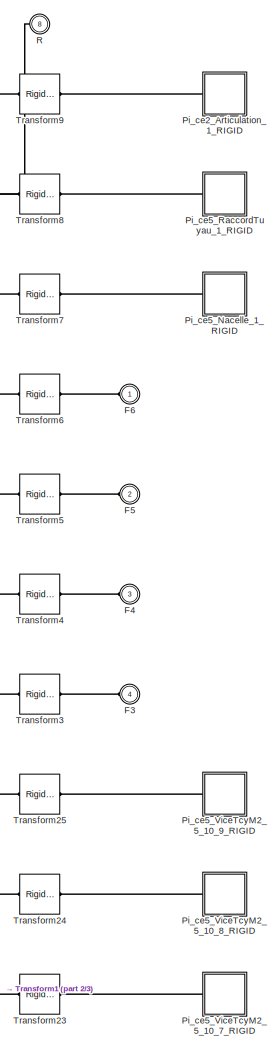
[diagram: SM/Nacelle1_1_RIGID - part 1/3, top center region]
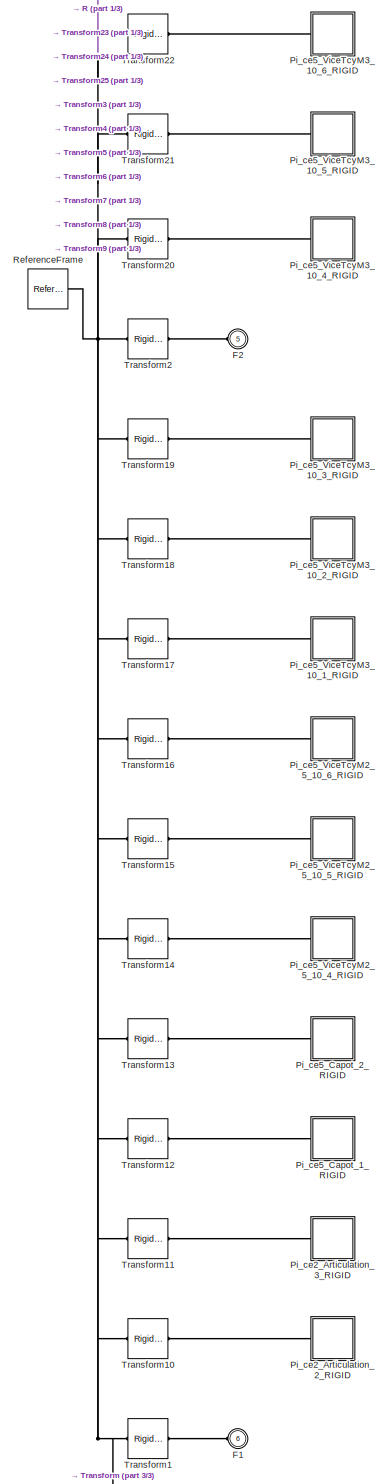
[diagram: SM/Nacelle1_1_RIGID - part 2/3, full width, bottom band]
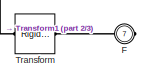
[diagram: SM/Nacelle1_1_RIGID - part 3/3, bottom center region]
BLOCK [SubSystem] SM/Nacelle1_1_RIGID
  Ports = [0, 0, 0, 0, 0, 6, 2]
  RequestExecContextInheritance = off
  Variant = off
BLOCK [PMIOPort] SM/Nacelle1_1_RIGID/F
  Port = 7
  Side = Right
BLOCK [PMIOPort] SM/Nacelle1_1_RIGID/F1
  Port = 6
  Side = Left
BLOCK [PMIOPort] SM/Nacelle1_1_RIGID/F2
  Port = 5
  Side = Left
BLOCK [PMIOPort] SM/Nacelle1_1_RIGID/F3
  Port = 4
  Side = Left
BLOCK [PMIOPort] SM/Nacelle1_1_RIGID/F4
  Port = 3
  Side = Left
BLOCK [PMIOPort] SM/Nacelle1_1_RIGID/F5
  Port = 2
  Side = Left
BLOCK [PMIOPort] SM/Nacelle1_1_RIGID/F6
  Port = 1
  Side = Left
BLOCK [SubSystem] SM/Nacelle1_1_RIGID/Pi_ce2_Articulation_1_RIGID
  Ports = [0, 0, 0, 0, 0, 1]
  RequestExecContextInheritance = off
  Variant = off
BLOCK [PMIOPort] SM/Nacelle1_1_RIGID/Pi_ce2_Articulation_1_RIGID/F
  Port = 1
  Side = Left
BLOCK [Reference] SM/Nacelle1_1_RIGID/Pi_ce2_Articulation_1_RIGID/ReferenceFrame  REF=sm_lib/Frames and
Transforms/Reference
Frame
  Ports = [0, 0, 0, 0, 0, 0, 1]
  SourceBlock = sm_lib/Frames and\nTransforms/Reference\nFrame
  SourceType = Reference\nFrame
BLOCK [Reference] SM/Nacelle1_1_RIGID/Pi_ce2_Articulation_1_RIGID/Solid  REF=sm_lib/Body Elements/Solid
  Ports = [0, 0, 0, 0, 0, 0, 1]
  SourceBlock = sm_lib/Body Elements/Solid
  SourceType = Solid
BLOCK [SubSystem] SM/Nacelle1_1_RIGID/Pi_ce2_Articulation_2_RIGID
  Ports = [0, 0, 0, 0, 0, 1]
  RequestExecContextInheritance = off
  Variant = off
BLOCK [PMIOPort] SM/Nacelle1_1_RIGID/Pi_ce2_Articulation_2_RIGID/F
  Port = 1
  Side = Left
BLOCK [Reference] SM/Nacelle1_1_RIGID/Pi_ce2_Articulation_2_RIGID/ReferenceFrame  REF=sm_lib/Frames and
Transforms/Reference
Frame
  Ports = [0, 0, 0, 0, 0, 0, 1]
  SourceBlock = sm_lib/Frames and\nTransforms/Reference\nFrame
  SourceType = Reference\nFrame
BLOCK [Reference] SM/Nacelle1_1_RIGID/Pi_ce2_Articulation_2_RIGID/Solid  REF=sm_lib/Body Elements/Solid
  Ports = [0, 0, 0, 0, 0, 0, 1]
  SourceBlock = sm_lib/Body Elements/Solid
  SourceType = Solid
BLOCK [SubSystem] SM/Nacelle1_1_RIGID/Pi_ce2_Articulation_3_RIGID
  Ports = [0, 0, 0, 0, 0, 1]
  RequestExecContextInheritance = off
  Variant = off
BLOCK [PMIOPort] SM/Nacelle1_1_RIGID/Pi_ce2_Articulation_3_RIGID/F
  Port = 1
  Side = Left
BLOCK [Reference] SM/Nacelle1_1_RIGID/Pi_ce2_Articulation_3_RIGID/ReferenceFrame  REF=sm_lib/Frames and
Transforms/Reference
Frame
  Ports = [0, 0, 0, 0, 0, 0, 1]
  SourceBlock = sm_lib/Frames and\nTransforms/Reference\nFrame
  SourceType = Reference\nFrame
BLOCK [Reference] SM/Nacelle1_1_RIGID/Pi_ce2_Articulation_3_RIGID/Solid  REF=sm_lib/Body Elements/Solid
  Ports = [0, 0, 0, 0, 0, 0, 1]
  SourceBlock = sm_lib/Body Elements/Solid
  SourceType = Solid
BLOCK [SubSystem] SM/Nacelle1_1_RIGID/Pi_ce5_Capot_1_RIGID
  Ports = [0, 0, 0, 0, 0, 1]
  RequestExecContextInheritance = off
  Variant = off
BLOCK [PMIOPort] SM/Nacelle1_1_RIGID/Pi_ce5_Capot_1_RIGID/F
  Port = 1
  Side = Left
BLOCK [Reference] SM/Nacelle1_1_RIGID/Pi_ce5_Capot_1_RIGID/ReferenceFrame  REF=sm_lib/Frames and
Transforms/Reference
Frame
  Ports = [0, 0, 0, 0, 0, 0, 1]
  SourceBlock = sm_lib/Frames and\nTransforms/Reference\nFrame
  SourceType = Reference\nFrame
BLOCK [Reference] SM/Nacelle1_1_RIGID/Pi_ce5_Capot_1_RIGID/Solid  REF=sm_lib/Body Elements/Solid
  Ports = [0, 0, 0, 0, 0, 0, 1]
  SourceBlock = sm_lib/Body Elements/Solid
  SourceType = Solid
BLOCK [SubSystem] SM/Nacelle1_1_RIGID/Pi_ce5_Capot_2_RIGID
  Ports = [0, 0, 0, 0, 0, 1]
  RequestExecContextInheritance = off
  Variant = off
BLOCK [PMIOPort] SM/Nacelle1_1_RIGID/Pi_ce5_Capot_2_RIGID/F
  Port = 1
  Side = Left
BLOCK [Reference] SM/Nacelle1_1_RIGID/Pi_ce5_Capot_2_RIGID/ReferenceFrame  REF=sm_lib/Frames and
Transforms/Reference
Frame
  Ports = [0, 0, 0, 0, 0, 0, 1]
  SourceBlock = sm_lib/Frames and\nTransforms/Reference\nFrame
  SourceType = Reference\nFrame
BLOCK [Reference] SM/Nacelle1_1_RIGID/Pi_ce5_Capot_2_RIGID/Solid  REF=sm_lib/Body Elements/Solid
  Ports = [0, 0, 0, 0, 0, 0, 1]
  SourceBlock = sm_lib/Body Elements/Solid
  SourceType = Solid
BLOCK [SubSystem] SM/Nacelle1_1_RIGID/Pi_ce5_Nacelle_1_RIGID
  Ports = [0, 0, 0, 0, 0, 1]
  RequestExecContextInheritance = off
  Variant = off
BLOCK [PMIOPort] SM/Nacelle1_1_RIGID/Pi_ce5_Nacelle_1_RIGID/F
  Port = 1
  Side = Left
BLOCK [Reference] SM/Nacelle1_1_RIGID/Pi_ce5_Nacelle_1_RIGID/ReferenceFrame  REF=sm_lib/Frames and
Transforms/Reference
Frame
  Ports = [0, 0, 0, 0, 0, 0, 1]
  SourceBlock = sm_lib/Frames and\nTransforms/Reference\nFrame
  SourceType = Reference\nFrame
BLOCK [Reference] SM/Nacelle1_1_RIGID/Pi_ce5_Nacelle_1_RIGID/Solid  REF=sm_lib/Body Elements/Solid
  Ports = [0, 0, 0, 0, 0, 0, 1]
  SourceBlock = sm_lib/Body Elements/Solid
  SourceType = Solid
BLOCK [SubSystem] SM/Nacelle1_1_RIGID/Pi_ce5_RaccordTuyau_1_RIGID
  Ports = [0, 0, 0, 0, 0, 1]
  RequestExecContextInheritance = off
  Variant = off
BLOCK [PMIOPort] SM/Nacelle1_1_RIGID/Pi_ce5_RaccordTuyau_1_RIGID/F
  Port = 1
  Side = Left
BLOCK [Reference] SM/Nacelle1_1_RIGID/Pi_ce5_RaccordTuyau_1_RIGID/ReferenceFrame  REF=sm_lib/Frames and
Transforms/Reference
Frame
  Ports = [0, 0, 0, 0, 0, 0, 1]
  SourceBlock = sm_lib/Frames and\nTransforms/Reference\nFrame
  SourceType = Reference\nFrame
BLOCK [Reference] SM/Nacelle1_1_RIGID/Pi_ce5_RaccordTuyau_1_RIGID/Solid  REF=sm_lib/Body Elements/Solid
  Ports = [0, 0, 0, 0, 0, 0, 1]
  SourceBlock = sm_lib/Body Elements/Solid
  SourceType = Solid
BLOCK [SubSystem] SM/Nacelle1_1_RIGID/Pi_ce5_ViceTcyM2_5_10_4_RIGID
  Ports = [0, 0, 0, 0, 0, 1]
  RequestExecContextInheritance = off
  Variant = off
BLOCK [PMIOPort] SM/Nacelle1_1_RIGID/Pi_ce5_ViceTcyM2_5_10_4_RIGID/F
  Port = 1
  Side = Left
BLOCK [Reference] SM/Nacelle1_1_RIGID/Pi_ce5_ViceTcyM2_5_10_4_RIGID/ReferenceFrame  REF=sm_lib/Frames and
Transforms/Reference
Frame
  Ports = [0, 0, 0, 0, 0, 0, 1]
  SourceBlock = sm_lib/Frames and\nTransforms/Reference\nFrame
  SourceType = Reference\nFrame
BLOCK [Reference] SM/Nacelle1_1_RIGID/Pi_ce5_ViceTcyM2_5_10_4_RIGID/Solid  REF=sm_lib/Body Elements/Solid
  Ports = [0, 0, 0, 0, 0, 0, 1]
  SourceBlock = sm_lib/Body Elements/Solid
  SourceType = Solid
BLOCK [SubSystem] SM/Nacelle1_1_RIGID/Pi_ce5_ViceTcyM2_5_10_5_RIGID
  Ports = [0, 0, 0, 0, 0, 1]
  RequestExecContextInheritance = off
  Variant = off
BLOCK [PMIOPort] SM/Nacelle1_1_RIGID/Pi_ce5_ViceTcyM2_5_10_5_RIGID/F
  Port = 1
  Side = Left
BLOCK [Reference] SM/Nacelle1_1_RIGID/Pi_ce5_ViceTcyM2_5_10_5_RIGID/ReferenceFrame  REF=sm_lib/Frames and
Transforms/Reference
Frame
  Ports = [0, 0, 0, 0, 0, 0, 1]
  SourceBlock = sm_lib/Frames and\nTransforms/Reference\nFrame
  SourceType = Reference\nFrame
BLOCK [Reference] SM/Nacelle1_1_RIGID/Pi_ce5_ViceTcyM2_5_10_5_RIGID/Solid  REF=sm_lib/Body Elements/Solid
  Ports = [0, 0, 0, 0, 0, 0, 1]
  SourceBlock = sm_lib/Body Elements/Solid
  SourceType = Solid
BLOCK [SubSystem] SM/Nacelle1_1_RIGID/Pi_ce5_ViceTcyM2_5_10_6_RIGID
  Ports = [0, 0, 0, 0, 0, 1]
  RequestExecContextInheritance = off
  Variant = off
BLOCK [PMIOPort] SM/Nacelle1_1_RIGID/Pi_ce5_ViceTcyM2_5_10_6_RIGID/F
  Port = 1
  Side = Left
BLOCK [Reference] SM/Nacelle1_1_RIGID/Pi_ce5_ViceTcyM2_5_10_6_RIGID/ReferenceFrame  REF=sm_lib/Frames and
Transforms/Reference
Frame
  Ports = [0, 0, 0, 0, 0, 0, 1]
  SourceBlock = sm_lib/Frames and\nTransforms/Reference\nFrame
  SourceType = Reference\nFrame
BLOCK [Reference] SM/Nacelle1_1_RIGID/Pi_ce5_ViceTcyM2_5_10_6_RIGID/Solid  REF=sm_lib/Body Elements/Solid
  Ports = [0, 0, 0, 0, 0, 0, 1]
  SourceBlock = sm_lib/Body Elements/Solid
  SourceType = Solid
BLOCK [SubSystem] SM/Nacelle1_1_RIGID/Pi_ce5_ViceTcyM2_5_10_7_RIGID
  Ports = [0, 0, 0, 0, 0, 1]
  RequestExecContextInheritance = off
  Variant = off
BLOCK [PMIOPort] SM/Nacelle1_1_RIGID/Pi_ce5_ViceTcyM2_5_10_7_RIGID/F
  Port = 1
  Side = Left
BLOCK [Reference] SM/Nacelle1_1_RIGID/Pi_ce5_ViceTcyM2_5_10_7_RIGID/ReferenceFrame  REF=sm_lib/Frames and
Transforms/Reference
Frame
  Ports = [0, 0, 0, 0, 0, 0, 1]
  SourceBlock = sm_lib/Frames and\nTransforms/Reference\nFrame
  SourceType = Reference\nFrame
BLOCK [Reference] SM/Nacelle1_1_RIGID/Pi_ce5_ViceTcyM2_5_10_7_RIGID/Solid  REF=sm_lib/Body Elements/Solid
  Ports = [0, 0, 0, 0, 0, 0, 1]
  SourceBlock = sm_lib/Body Elements/Solid
  SourceType = Solid
BLOCK [SubSystem] SM/Nacelle1_1_RIGID/Pi_ce5_ViceTcyM2_5_10_8_RIGID
  Ports = [0, 0, 0, 0, 0, 1]
  RequestExecContextInheritance = off
  Variant = off
BLOCK [PMIOPort] SM/Nacelle1_1_RIGID/Pi_ce5_ViceTcyM2_5_10_8_RIGID/F
  Port = 1
  Side = Left
BLOCK [Reference] SM/Nacelle1_1_RIGID/Pi_ce5_ViceTcyM2_5_10_8_RIGID/ReferenceFrame  REF=sm_lib/Frames and
Transforms/Reference
Frame
  Ports = [0, 0, 0, 0, 0, 0, 1]
  SourceBlock = sm_lib/Frames and\nTransforms/Reference\nFrame
  SourceType = Reference\nFrame
BLOCK [Reference] SM/Nacelle1_1_RIGID/Pi_ce5_ViceTcyM2_5_10_8_RIGID/Solid  REF=sm_lib/Body Elements/Solid
  Ports = [0, 0, 0, 0, 0, 0, 1]
  SourceBlock = sm_lib/Body Elements/Solid
  SourceType = Solid
BLOCK [SubSystem] SM/Nacelle1_1_RIGID/Pi_ce5_ViceTcyM2_5_10_9_RIGID
  Ports = [0, 0, 0, 0, 0, 1]
  RequestExecContextInheritance = off
  Variant = off
BLOCK [PMIOPort] SM/Nacelle1_1_RIGID/Pi_ce5_ViceTcyM2_5_10_9_RIGID/F
  Port = 1
  Side = Left
BLOCK [Reference] SM/Nacelle1_1_RIGID/Pi_ce5_ViceTcyM2_5_10_9_RIGID/ReferenceFrame  REF=sm_lib/Frames and
Transforms/Reference
Frame
  Ports = [0, 0, 0, 0, 0, 0, 1]
  SourceBlock = sm_lib/Frames and\nTransforms/Reference\nFrame
  SourceType = Reference\nFrame
BLOCK [Reference] SM/Nacelle1_1_RIGID/Pi_ce5_ViceTcyM2_5_10_9_RIGID/Solid  REF=sm_lib/Body Elements/Solid
  Ports = [0, 0, 0, 0, 0, 0, 1]
  SourceBlock = sm_lib/Body Elements/Solid
  SourceType = Solid
BLOCK [SubSystem] SM/Nacelle1_1_RIGID/Pi_ce5_ViceTcyM3_10_1_RIGID
  Ports = [0, 0, 0, 0, 0, 1]
  RequestExecContextInheritance = off
  Variant = off
BLOCK [PMIOPort] SM/Nacelle1_1_RIGID/Pi_ce5_ViceTcyM3_10_1_RIGID/F
  Port = 1
  Side = Left
BLOCK [Reference] SM/Nacelle1_1_RIGID/Pi_ce5_ViceTcyM3_10_1_RIGID/ReferenceFrame  REF=sm_lib/Frames and
Transforms/Reference
Frame
  Ports = [0, 0, 0, 0, 0, 0, 1]
  SourceBlock = sm_lib/Frames and\nTransforms/Reference\nFrame
  SourceType = Reference\nFrame
BLOCK [Reference] SM/Nacelle1_1_RIGID/Pi_ce5_ViceTcyM3_10_1_RIGID/Solid  REF=sm_lib/Body Elements/Solid
  Ports = [0, 0, 0, 0, 0, 0, 1]
  SourceBlock = sm_lib/Body Elements/Solid
  SourceType = Solid
BLOCK [SubSystem] SM/Nacelle1_1_RIGID/Pi_ce5_ViceTcyM3_10_2_RIGID
  Ports = [0, 0, 0, 0, 0, 1]
  RequestExecContextInheritance = off
  Variant = off
BLOCK [PMIOPort] SM/Nacelle1_1_RIGID/Pi_ce5_ViceTcyM3_10_2_RIGID/F
  Port = 1
  Side = Left
BLOCK [Reference] SM/Nacelle1_1_RIGID/Pi_ce5_ViceTcyM3_10_2_RIGID/ReferenceFrame  REF=sm_lib/Frames and
Transforms/Reference
Frame
  Ports = [0, 0, 0, 0, 0, 0, 1]
  SourceBlock = sm_lib/Frames and\nTransforms/Reference\nFrame
  SourceType = Reference\nFrame
BLOCK [Reference] SM/Nacelle1_1_RIGID/Pi_ce5_ViceTcyM3_10_2_RIGID/Solid  REF=sm_lib/Body Elements/Solid
  Ports = [0, 0, 0, 0, 0, 0, 1]
  SourceBlock = sm_lib/Body Elements/Solid
  SourceType = Solid
BLOCK [SubSystem] SM/Nacelle1_1_RIGID/Pi_ce5_ViceTcyM3_10_3_RIGID
  Ports = [0, 0, 0, 0, 0, 1]
  RequestExecContextInheritance = off
  Variant = off
BLOCK [PMIOPort] SM/Nacelle1_1_RIGID/Pi_ce5_ViceTcyM3_10_3_RIGID/F
  Port = 1
  Side = Left
BLOCK [Reference] SM/Nacelle1_1_RIGID/Pi_ce5_ViceTcyM3_10_3_RIGID/ReferenceFrame  REF=sm_lib/Frames and
Transforms/Reference
Frame
  Ports = [0, 0, 0, 0, 0, 0, 1]
  SourceBlock = sm_lib/Frames and\nTransforms/Reference\nFrame
  SourceType = Reference\nFrame
BLOCK [Reference] SM/Nacelle1_1_RIGID/Pi_ce5_ViceTcyM3_10_3_RIGID/Solid  REF=sm_lib/Body Elements/Solid
  Ports = [0, 0, 0, 0, 0, 0, 1]
  SourceBlock = sm_lib/Body Elements/Solid
  SourceType = Solid
BLOCK [SubSystem] SM/Nacelle1_1_RIGID/Pi_ce5_ViceTcyM3_10_4_RIGID
  Ports = [0, 0, 0, 0, 0, 1]
  RequestExecContextInheritance = off
  Variant = off
BLOCK [PMIOPort] SM/Nacelle1_1_RIGID/Pi_ce5_ViceTcyM3_10_4_RIGID/F
  Port = 1
  Side = Left
BLOCK [Reference] SM/Nacelle1_1_RIGID/Pi_ce5_ViceTcyM3_10_4_RIGID/ReferenceFrame  REF=sm_lib/Frames and
Transforms/Reference
Frame
  Ports = [0, 0, 0, 0, 0, 0, 1]
  SourceBlock = sm_lib/Frames and\nTransforms/Reference\nFrame
  SourceType = Reference\nFrame
BLOCK [Reference] SM/Nacelle1_1_RIGID/Pi_ce5_ViceTcyM3_10_4_RIGID/Solid  REF=sm_lib/Body Elements/Solid
  Ports = [0, 0, 0, 0, 0, 0, 1]
  SourceBlock = sm_lib/Body Elements/Solid
  SourceType = Solid
BLOCK [SubSystem] SM/Nacelle1_1_RIGID/Pi_ce5_ViceTcyM3_10_5_RIGID
  Ports = [0, 0, 0, 0, 0, 1]
  RequestExecContextInheritance = off
  Variant = off
BLOCK [PMIOPort] SM/Nacelle1_1_RIGID/Pi_ce5_ViceTcyM3_10_5_RIGID/F
  Port = 1
  Side = Left
BLOCK [Reference] SM/Nacelle1_1_RIGID/Pi_ce5_ViceTcyM3_10_5_RIGID/ReferenceFrame  REF=sm_lib/Frames and
Transforms/Reference
Frame
  Ports = [0, 0, 0, 0, 0, 0, 1]
  SourceBlock = sm_lib/Frames and\nTransforms/Reference\nFrame
  SourceType = Reference\nFrame
BLOCK [Reference] SM/Nacelle1_1_RIGID/Pi_ce5_ViceTcyM3_10_5_RIGID/Solid  REF=sm_lib/Body Elements/Solid
  Ports = [0, 0, 0, 0, 0, 0, 1]
  SourceBlock = sm_lib/Body Elements/Solid
  SourceType = Solid
BLOCK [SubSystem] SM/Nacelle1_1_RIGID/Pi_ce5_ViceTcyM3_10_6_RIGID
  Ports = [0, 0, 0, 0, 0, 1]
  RequestExecContextInheritance = off
  Variant = off
BLOCK [PMIOPort] SM/Nacelle1_1_RIGID/Pi_ce5_ViceTcyM3_10_6_RIGID/F
  Port = 1
  Side = Left
BLOCK [Reference] SM/Nacelle1_1_RIGID/Pi_ce5_ViceTcyM3_10_6_RIGID/ReferenceFrame  REF=sm_lib/Frames and
Transforms/Reference
Frame
  Ports = [0, 0, 0, 0, 0, 0, 1]
  SourceBlock = sm_lib/Frames and\nTransforms/Reference\nFrame
  SourceType = Reference\nFrame
BLOCK [Reference] SM/Nacelle1_1_RIGID/Pi_ce5_ViceTcyM3_10_6_RIGID/Solid  REF=sm_lib/Body Elements/Solid
  Ports = [0, 0, 0, 0, 0, 0, 1]
  SourceBlock = sm_lib/Body Elements/Solid
  SourceType = Solid
BLOCK [PMIOPort] SM/Nacelle1_1_RIGID/R
  Port = 8
  Side = Right
BLOCK [Reference] SM/Nacelle1_1_RIGID/ReferenceFrame  REF=sm_lib/Frames and
Transforms/Reference
Frame
  Ports = [0, 0, 0, 0, 0, 0, 1]
  SourceBlock = sm_lib/Frames and\nTransforms/Reference\nFrame
  SourceType = Reference\nFrame
BLOCK [Reference] SM/Nacelle1_1_RIGID/Transform  REF=sm_lib/Frames and
Transforms/Rigid
Transform
  Ports = [0, 0, 0, 0, 0, 1, 1]
  SourceBlock = sm_lib/Frames and\nTransforms/Rigid\nTransform
  SourceType = Rigid\nTransform
BLOCK [Reference] SM/Nacelle1_1_RIGID/Transform1  REF=sm_lib/Frames and
Transforms/Rigid
Transform
  Ports = [0, 0, 0, 0, 0, 1, 1]
  SourceBlock = sm_lib/Frames and\nTransforms/Rigid\nTransform
  SourceType = Rigid\nTransform
BLOCK [Reference] SM/Nacelle1_1_RIGID/Transform10  REF=sm_lib/Frames and
Transforms/Rigid
Transform
  Ports = [0, 0, 0, 0, 0, 1, 1]
  SourceBlock = sm_lib/Frames and\nTransforms/Rigid\nTransform
  SourceType = Rigid\nTransform
BLOCK [Reference] SM/Nacelle1_1_RIGID/Transform11  REF=sm_lib/Frames and
Transforms/Rigid
Transform
  Ports = [0, 0, 0, 0, 0, 1, 1]
  SourceBlock = sm_lib/Frames and\nTransforms/Rigid\nTransform
  SourceType = Rigid\nTransform
BLOCK [Reference] SM/Nacelle1_1_RIGID/Transform12  REF=sm_lib/Frames and
Transforms/Rigid
Transform
  Ports = [0, 0, 0, 0, 0, 1, 1]
  SourceBlock = sm_lib/Frames and\nTransforms/Rigid\nTransform
  SourceType = Rigid\nTransform
BLOCK [Reference] SM/Nacelle1_1_RIGID/Transform13  REF=sm_lib/Frames and
Transforms/Rigid
Transform
  Ports = [0, 0, 0, 0, 0, 1, 1]
  SourceBlock = sm_lib/Frames and\nTransforms/Rigid\nTransform
  SourceType = Rigid\nTransform
BLOCK [Reference] SM/Nacelle1_1_RIGID/Transform14  REF=sm_lib/Frames and
Transforms/Rigid
Transform
  Ports = [0, 0, 0, 0, 0, 1, 1]
  SourceBlock = sm_lib/Frames and\nTransforms/Rigid\nTransform
  SourceType = Rigid\nTransform
BLOCK [Reference] SM/Nacelle1_1_RIGID/Transform15  REF=sm_lib/Frames and
Transforms/Rigid
Transform
  Ports = [0, 0, 0, 0, 0, 1, 1]
  SourceBlock = sm_lib/Frames and\nTransforms/Rigid\nTransform
  SourceType = Rigid\nTransform
BLOCK [Reference] SM/Nacelle1_1_RIGID/Transform16  REF=sm_lib/Frames and
Transforms/Rigid
Transform
  Ports = [0, 0, 0, 0, 0, 1, 1]
  SourceBlock = sm_lib/Frames and\nTransforms/Rigid\nTransform
  SourceType = Rigid\nTransform
BLOCK [Reference] SM/Nacelle1_1_RIGID/Transform17  REF=sm_lib/Frames and
Transforms/Rigid
Transform
  Ports = [0, 0, 0, 0, 0, 1, 1]
  SourceBlock = sm_lib/Frames and\nTransforms/Rigid\nTransform
  SourceType = Rigid\nTransform
BLOCK [Reference] SM/Nacelle1_1_RIGID/Transform18  REF=sm_lib/Frames and
Transforms/Rigid
Transform
  Ports = [0, 0, 0, 0, 0, 1, 1]
  SourceBlock = sm_lib/Frames and\nTransforms/Rigid\nTransform
  SourceType = Rigid\nTransform
BLOCK [Reference] SM/Nacelle1_1_RIGID/Transform19  REF=sm_lib/Frames and
Transforms/Rigid
Transform
  Ports = [0, 0, 0, 0, 0, 1, 1]
  SourceBlock = sm_lib/Frames and\nTransforms/Rigid\nTransform
  SourceType = Rigid\nTransform
BLOCK [Reference] SM/Nacelle1_1_RIGID/Transform2  REF=sm_lib/Frames and
Transforms/Rigid
Transform
  Ports = [0, 0, 0, 0, 0, 1, 1]
  SourceBlock = sm_lib/Frames and\nTransforms/Rigid\nTransform
  SourceType = Rigid\nTransform
BLOCK [Reference] SM/Nacelle1_1_RIGID/Transform20  REF=sm_lib/Frames and
Transforms/Rigid
Transform
  Ports = [0, 0, 0, 0, 0, 1, 1]
  SourceBlock = sm_lib/Frames and\nTransforms/Rigid\nTransform
  SourceType = Rigid\nTransform
BLOCK [Reference] SM/Nacelle1_1_RIGID/Transform21  REF=sm_lib/Frames and
Transforms/Rigid
Transform
  Ports = [0, 0, 0, 0, 0, 1, 1]
  SourceBlock = sm_lib/Frames and\nTransforms/Rigid\nTransform
  SourceType = Rigid\nTransform
BLOCK [Reference] SM/Nacelle1_1_RIGID/Transform22  REF=sm_lib/Frames and
Transforms/Rigid
Transform
  Ports = [0, 0, 0, 0, 0, 1, 1]
  SourceBlock = sm_lib/Frames and\nTransforms/Rigid\nTransform
  SourceType = Rigid\nTransform
BLOCK [Reference] SM/Nacelle1_1_RIGID/Transform23  REF=sm_lib/Frames and
Transforms/Rigid
Transform
  Ports = [0, 0, 0, 0, 0, 1, 1]
  SourceBlock = sm_lib/Frames and\nTransforms/Rigid\nTransform
  SourceType = Rigid\nTransform
BLOCK [Reference] SM/Nacelle1_1_RIGID/Transform24  REF=sm_lib/Frames and
Transforms/Rigid
Transform
  Ports = [0, 0, 0, 0, 0, 1, 1]
  SourceBlock = sm_lib/Frames and\nTransforms/Rigid\nTransform
  SourceType = Rigid\nTransform
BLOCK [Reference] SM/Nacelle1_1_RIGID/Transform25  REF=sm_lib/Frames and
Transforms/Rigid
Transform
  Ports = [0, 0, 0, 0, 0, 1, 1]
  SourceBlock = sm_lib/Frames and\nTransforms/Rigid\nTransform
  SourceType = Rigid\nTransform
BLOCK [Reference] SM/Nacelle1_1_RIGID/Transform3  REF=sm_lib/Frames and
Transforms/Rigid
Transform
  Ports = [0, 0, 0, 0, 0, 1, 1]
  SourceBlock = sm_lib/Frames and\nTransforms/Rigid\nTransform
  SourceType = Rigid\nTransform
BLOCK [Reference] SM/Nacelle1_1_RIGID/Transform4  REF=sm_lib/Frames and
Transforms/Rigid
Transform
  Ports = [0, 0, 0, 0, 0, 1, 1]
  SourceBlock = sm_lib/Frames and\nTransforms/Rigid\nTransform
  SourceType = Rigid\nTransform
BLOCK [Reference] SM/Nacelle1_1_RIGID/Transform5  REF=sm_lib/Frames and
Transforms/Rigid
Transform
  Ports = [0, 0, 0, 0, 0, 1, 1]
  SourceBlock = sm_lib/Frames and\nTransforms/Rigid\nTransform
  SourceType = Rigid\nTransform
BLOCK [Reference] SM/Nacelle1_1_RIGID/Transform6  REF=sm_lib/Frames and
Transforms/Rigid
Transform
  Ports = [0, 0, 0, 0, 0, 1, 1]
  SourceBlock = sm_lib/Frames and\nTransforms/Rigid\nTransform
  SourceType = Rigid\nTransform
BLOCK [Reference] SM/Nacelle1_1_RIGID/Transform7  REF=sm_lib/Frames and
Transforms/Rigid
Transform
  Ports = [0, 0, 0, 0, 0, 1, 1]
  SourceBlock = sm_lib/Frames and\nTransforms/Rigid\nTransform
  SourceType = Rigid\nTransform
BLOCK [Reference] SM/Nacelle1_1_RIGID/Transform8  REF=sm_lib/Frames and
Transforms/Rigid
Transform
  Ports = [0, 0, 0, 0, 0, 1, 1]
  SourceBlock = sm_lib/Frames and\nTransforms/Rigid\nTransform
  SourceType = Rigid\nTransform
BLOCK [Reference] SM/Nacelle1_1_RIGID/Transform9  REF=sm_lib/Frames and
Transforms/Rigid
Transform
  Ports = [0, 0, 0, 0, 0, 1, 1]
  SourceBlock = sm_lib/Frames and\nTransforms/Rigid\nTransform
  SourceType = Rigid\nTransform
BLOCK [SubSystem] SM/Nacelle2_1_RIGID
  Ports = [0, 0, 0, 0, 0, 1]
  RequestExecContextInheritance = off
  Variant = off
BLOCK [PMIOPort] SM/Nacelle2_1_RIGID/F
  Port = 1
  Side = Left
BLOCK [SubSystem] SM/Nacelle2_1_RIGID/Pi_ce5_BagueArret_1_RIGID
  Ports = [0, 0, 0, 0, 0, 1]
  RequestExecContextInheritance = off
  Variant = off
BLOCK [PMIOPort] SM/Nacelle2_1_RIGID/Pi_ce5_BagueArret_1_RIGID/F
  Port = 1
  Side = Left
BLOCK [Reference] SM/Nacelle2_1_RIGID/Pi_ce5_BagueArret_1_RIGID/ReferenceFrame  REF=sm_lib/Frames and
Transforms/Reference
Frame
  Ports = [0, 0, 0, 0, 0, 0, 1]
  SourceBlock = sm_lib/Frames and\nTransforms/Reference\nFrame
  SourceType = Reference\nFrame
BLOCK [Reference] SM/Nacelle2_1_RIGID/Pi_ce5_BagueArret_1_RIGID/Solid  REF=sm_lib/Body Elements/Solid
  Ports = [0, 0, 0, 0, 0, 0, 1]
  SourceBlock = sm_lib/Body Elements/Solid
  SourceType = Solid
BLOCK [SubSystem] SM/Nacelle2_1_RIGID/Pi_ce5_Guide_1_RIGID
  Ports = [0, 0, 0, 0, 0, 1]
  RequestExecContextInheritance = off
  Variant = off
BLOCK [PMIOPort] SM/Nacelle2_1_RIGID/Pi_ce5_Guide_1_RIGID/F
  Port = 1
  Side = Left
BLOCK [Reference] SM/Nacelle2_1_RIGID/Pi_ce5_Guide_1_RIGID/ReferenceFrame  REF=sm_lib/Frames and
Transforms/Reference
Frame
  Ports = [0, 0, 0, 0, 0, 0, 1]
  SourceBlock = sm_lib/Frames and\nTransforms/Reference\nFrame
  SourceType = Reference\nFrame
BLOCK [Reference] SM/Nacelle2_1_RIGID/Pi_ce5_Guide_1_RIGID/Solid  REF=sm_lib/Body Elements/Solid
  Ports = [0, 0, 0, 0, 0, 0, 1]
  SourceBlock = sm_lib/Body Elements/Solid
  SourceType = Solid
BLOCK [SubSystem] SM/Nacelle2_1_RIGID/Pi_ce5_RaccordCardon_1_RIGID
  Ports = [0, 0, 0, 0, 0, 1]
  RequestExecContextInheritance = off
  Variant = off
BLOCK [PMIOPort] SM/Nacelle2_1_RIGID/Pi_ce5_RaccordCardon_1_RIGID/F
  Port = 1
  Side = Left
BLOCK [Reference] SM/Nacelle2_1_RIGID/Pi_ce5_RaccordCardon_1_RIGID/ReferenceFrame  REF=sm_lib/Frames and
Transforms/Reference
Frame
  Ports = [0, 0, 0, 0, 0, 0, 1]
  SourceBlock = sm_lib/Frames and\nTransforms/Reference\nFrame
  SourceType = Reference\nFrame
BLOCK [Reference] SM/Nacelle2_1_RIGID/Pi_ce5_RaccordCardon_1_RIGID/Solid  REF=sm_lib/Body Elements/Solid
  Ports = [0, 0, 0, 0, 0, 0, 1]
  SourceBlock = sm_lib/Body Elements/Solid
  SourceType = Solid
BLOCK [SubSystem] SM/Nacelle2_1_RIGID/Pi_ce5_Tube_1_RIGID
  Ports = [0, 0, 0, 0, 0, 1]
  RequestExecContextInheritance = off
  Variant = off
BLOCK [PMIOPort] SM/Nacelle2_1_RIGID/Pi_ce5_Tube_1_RIGID/F
  Port = 1
  Side = Left
BLOCK [Reference] SM/Nacelle2_1_RIGID/Pi_ce5_Tube_1_RIGID/ReferenceFrame  REF=sm_lib/Frames and
Transforms/Reference
Frame
  Ports = [0, 0, 0, 0, 0, 0, 1]
  SourceBlock = sm_lib/Frames and\nTransforms/Reference\nFrame
  SourceType = Reference\nFrame
BLOCK [Reference] SM/Nacelle2_1_RIGID/Pi_ce5_Tube_1_RIGID/Solid  REF=sm_lib/Body Elements/Solid
  Ports = [0, 0, 0, 0, 0, 0, 1]
  SourceBlock = sm_lib/Body Elements/Solid
  SourceType = Solid
BLOCK [Reference] SM/Nacelle2_1_RIGID/ReferenceFrame  REF=sm_lib/Frames and
Transforms/Reference
Frame
  Ports = [0, 0, 0, 0, 0, 0, 1]
  SourceBlock = sm_lib/Frames and\nTransforms/Reference\nFrame
  SourceType = Reference\nFrame
BLOCK [Reference] SM/Nacelle2_1_RIGID/Transform  REF=sm_lib/Frames and
Transforms/Rigid
Transform
  Ports = [0, 0, 0, 0, 0, 1, 1]
  SourceBlock = sm_lib/Frames and\nTransforms/Rigid\nTransform
  SourceType = Rigid\nTransform
BLOCK [Reference] SM/Nacelle2_1_RIGID/Transform1  REF=sm_lib/Frames and
Transforms/Rigid
Transform
  Ports = [0, 0, 0, 0, 0, 1, 1]
  SourceBlock = sm_lib/Frames and\nTransforms/Rigid\nTransform
  SourceType = Rigid\nTransform
BLOCK [Reference] SM/Nacelle2_1_RIGID/Transform2  REF=sm_lib/Frames and
Transforms/Rigid
Transform
  Ports = [0, 0, 0, 0, 0, 1, 1]
  SourceBlock = sm_lib/Frames and\nTransforms/Rigid\nTransform
  SourceType = Rigid\nTransform
BLOCK [Reference] SM/Nacelle2_1_RIGID/Transform3  REF=sm_lib/Frames and
Transforms/Rigid
Transform
  Ports = [0, 0, 0, 0, 0, 1, 1]
  SourceBlock = sm_lib/Frames and\nTransforms/Rigid\nTransform
  SourceType = Rigid\nTransform
BLOCK [Reference] SM/Nacelle2_1_RIGID/Transform4  REF=sm_lib/Frames and
Transforms/Rigid
Transform
  Ports = [0, 0, 0, 0, 0, 1, 1]
  SourceBlock = sm_lib/Frames and\nTransforms/Rigid\nTransform
  SourceType = Rigid\nTransform
BLOCK [Reference] SM/PS-Simulink Converter1  REF=nesl_utility/PS-Simulink
Converter
  Ports = [0, 1, 0, 0, 0, 1]
  SourceBlock = nesl_utility/PS-Simulink\nConverter
  SourceType = PS-Simulink\nConverter
BLOCK [Reference] SM/PS-Simulink Converter10  REF=nesl_utility/PS-Simulink
Converter
  Ports = [0, 1, 0, 0, 0, 1]
  SourceBlock = nesl_utility/PS-Simulink\nConverter
  SourceType = PS-Simulink\nConverter
BLOCK [Reference] SM/PS-Simulink Converter11  REF=nesl_utility/PS-Simulink
Converter
  Ports = [0, 1, 0, 0, 0, 1]
  SourceBlock = nesl_utility/PS-Simulink\nConverter
  SourceType = PS-Simulink\nConverter
BLOCK [Reference] SM/PS-Simulink Converter12  REF=nesl_utility/PS-Simulink
Converter
  Ports = [0, 1, 0, 0, 0, 1]
  SourceBlock = nesl_utility/PS-Simulink\nConverter
  SourceType = PS-Simulink\nConverter
BLOCK [Reference] SM/PS-Simulink Converter2  REF=nesl_utility/PS-Simulink
Converter
  Ports = [0, 1, 0, 0, 0, 1]
  SourceBlock = nesl_utility/PS-Simulink\nConverter
  SourceType = PS-Simulink\nConverter
BLOCK [Reference] SM/PS-Simulink Converter3  REF=nesl_utility/PS-Simulink
Converter
  Ports = [0, 1, 0, 0, 0, 1]
  SourceBlock = nesl_utility/PS-Simulink\nConverter
  SourceType = PS-Simulink\nConverter
BLOCK [Reference] SM/PS-Simulink Converter4  REF=nesl_utility/PS-Simulink
Converter
  Ports = [0, 1, 0, 0, 0, 1]
  SourceBlock = nesl_utility/PS-Simulink\nConverter
  SourceType = PS-Simulink\nConverter
BLOCK [Reference] SM/PS-Simulink Converter5  REF=nesl_utility/PS-Simulink
Converter
  Ports = [0, 1, 0, 0, 0, 1]
  SourceBlock = nesl_utility/PS-Simulink\nConverter
  SourceType = PS-Simulink\nConverter
BLOCK [Reference] SM/PS-Simulink Converter6  REF=nesl_utility/PS-Simulink
Converter
  Ports = [0, 1, 0, 0, 0, 1]
  SourceBlock = nesl_utility/PS-Simulink\nConverter
  SourceType = PS-Simulink\nConverter
BLOCK [Reference] SM/PS-Simulink Converter7  REF=nesl_utility/PS-Simulink
Converter
  Ports = [0, 1, 0, 0, 0, 1]
  SourceBlock = nesl_utility/PS-Simulink\nConverter
  SourceType = PS-Simulink\nConverter
BLOCK [Reference] SM/PS-Simulink Converter8  REF=nesl_utility/PS-Simulink
Converter
  Ports = [0, 1, 0, 0, 0, 1]
  SourceBlock = nesl_utility/PS-Simulink\nConverter
  SourceType = PS-Simulink\nConverter
BLOCK [Reference] SM/PS-Simulink Converter9  REF=nesl_utility/PS-Simulink
Converter
  Ports = [0, 1, 0, 0, 0, 1]
  SourceBlock = nesl_utility/PS-Simulink\nConverter
  SourceType = PS-Simulink\nConverter
BLOCK [SubSystem] SM/Pi_ce0_Base_1_RIGID
  Ports = [0, 0, 0, 0, 0, 1, 15]
  RequestExecContextInheritance = off
  Variant = off
BLOCK [PMIOPort] SM/Pi_ce0_Base_1_RIGID/15
  Port = 13
  Side = Left
BLOCK [PMIOPort] SM/Pi_ce0_Base_1_RIGID/F1
  Port = 1
  Side = Right
BLOCK [PMIOPort] SM/Pi_ce0_Base_1_RIGID/F10
  Port = 10
  Side = Right
BLOCK [PMIOPort] SM/Pi_ce0_Base_1_RIGID/F11 7
  Port = 11
  Side = Right
BLOCK [PMIOPort] SM/Pi_ce0_Base_1_RIGID/F12 4
  Port = 12
  Side = Right
BLOCK [PMIOPort] SM/Pi_ce0_Base_1_RIGID/F13
  Port = 14
  Side = Right
BLOCK [PMIOPort] SM/Pi_ce0_Base_1_RIGID/F14
  Port = 15
  Side = Right
BLOCK [PMIOPort] SM/Pi_ce0_Base_1_RIGID/F15
  Port = 16
  Side = Right
BLOCK [PMIOPort] SM/Pi_ce0_Base_1_RIGID/F2
  Port = 2
  Side = Right
BLOCK [PMIOPort] SM/Pi_ce0_Base_1_RIGID/F3
  Port = 3
  Side = Right
BLOCK [PMIOPort] SM/Pi_ce0_Base_1_RIGID/F4 
  Port = 4
  Side = Right
BLOCK [PMIOPort] SM/Pi_ce0_Base_1_RIGID/F5 1
  Port = 5
  Side = Right
BLOCK [PMIOPort] SM/Pi_ce0_Base_1_RIGID/F6
  Port = 6
  Side = Right
BLOCK [PMIOPort] SM/Pi_ce0_Base_1_RIGID/F7 5
  Port = 7
  Side = Right
BLOCK [PMIOPort] SM/Pi_ce0_Base_1_RIGID/F8 2
  Port = 8
  Side = Right
BLOCK [PMIOPort] SM/Pi_ce0_Base_1_RIGID/F9 13
  Port = 9
  Side = Right
BLOCK [Reference] SM/Pi_ce0_Base_1_RIGID/ReferenceFrame  REF=sm_lib/Frames and
Transforms/Reference
Frame
  Ports = [0, 0, 0, 0, 0, 0, 1]
  SourceBlock = sm_lib/Frames and\nTransforms/Reference\nFrame
  SourceType = Reference\nFrame
BLOCK [Reference] SM/Pi_ce0_Base_1_RIGID/Solid  REF=sm_lib/Body Elements/Solid
  Ports = [0, 0, 0, 0, 0, 0, 1]
  SourceBlock = sm_lib/Body Elements/Solid
  SourceType = Solid
BLOCK [Reference] SM/Pi_ce0_Base_1_RIGID/Transform  REF=sm_lib/Frames and
Transforms/Rigid
Transform
  Ports = [0, 0, 0, 0, 0, 1, 1]
  SourceBlock = sm_lib/Frames and\nTransforms/Rigid\nTransform
  SourceType = Rigid\nTransform
BLOCK [Reference] SM/Pi_ce0_Base_1_RIGID/Transform1  REF=sm_lib/Frames and
Transforms/Rigid
Transform
  Ports = [0, 0, 0, 0, 0, 1, 1]
  SourceBlock = sm_lib/Frames and\nTransforms/Rigid\nTransform
  SourceType = Rigid\nTransform
BLOCK [Reference] SM/Pi_ce0_Base_1_RIGID/Transform10  REF=sm_lib/Frames and
Transforms/Rigid
Transform
  Ports = [0, 0, 0, 0, 0, 1, 1]
  SourceBlock = sm_lib/Frames and\nTransforms/Rigid\nTransform
  SourceType = Rigid\nTransform
BLOCK [Reference] SM/Pi_ce0_Base_1_RIGID/Transform11  REF=sm_lib/Frames and
Transforms/Rigid
Transform
  Ports = [0, 0, 0, 0, 0, 1, 1]
  SourceBlock = sm_lib/Frames and\nTransforms/Rigid\nTransform
  SourceType = Rigid\nTransform
BLOCK [Reference] SM/Pi_ce0_Base_1_RIGID/Transform12  REF=sm_lib/Frames and
Transforms/Rigid
Transform
  Ports = [0, 0, 0, 0, 0, 1, 1]
  SourceBlock = sm_lib/Frames and\nTransforms/Rigid\nTransform
  SourceType = Rigid\nTransform
BLOCK [Reference] SM/Pi_ce0_Base_1_RIGID/Transform13  REF=sm_lib/Frames and
Transforms/Rigid
Transform
  Ports = [0, 0, 0, 0, 0, 1, 1]
  SourceBlock = sm_lib/Frames and\nTransforms/Rigid\nTransform
  SourceType = Rigid\nTransform
BLOCK [Reference] SM/Pi_ce0_Base_1_RIGID/Transform14  REF=sm_lib/Frames and
Transforms/Rigid
Transform
  Ports = [0, 0, 0, 0, 0, 1, 1]
  SourceBlock = sm_lib/Frames and\nTransforms/Rigid\nTransform
  SourceType = Rigid\nTransform
BLOCK [Reference] SM/Pi_ce0_Base_1_RIGID/Transform2  REF=sm_lib/Frames and
Transforms/Rigid
Transform
  Ports = [0, 0, 0, 0, 0, 1, 1]
  SourceBlock = sm_lib/Frames and\nTransforms/Rigid\nTransform
  SourceType = Rigid\nTransform
BLOCK [Reference] SM/Pi_ce0_Base_1_RIGID/Transform3  REF=sm_lib/Frames and
Transforms/Rigid
Transform
  Ports = [0, 0, 0, 0, 0, 1, 1]
  SourceBlock = sm_lib/Frames and\nTransforms/Rigid\nTransform
  SourceType = Rigid\nTransform
BLOCK [Reference] SM/Pi_ce0_Base_1_RIGID/Transform4  REF=sm_lib/Frames and
Transforms/Rigid
Transform
  Ports = [0, 0, 0, 0, 0, 1, 1]
  SourceBlock = sm_lib/Frames and\nTransforms/Rigid\nTransform
  SourceType = Rigid\nTransform
BLOCK [Reference] SM/Pi_ce0_Base_1_RIGID/Transform5  REF=sm_lib/Frames and
Transforms/Rigid
Transform
  Ports = [0, 0, 0, 0, 0, 1, 1]
  SourceBlock = sm_lib/Frames and\nTransforms/Rigid\nTransform
  SourceType = Rigid\nTransform
BLOCK [Reference] SM/Pi_ce0_Base_1_RIGID/Transform6  REF=sm_lib/Frames and
Transforms/Rigid
Transform
  Ports = [0, 0, 0, 0, 0, 1, 1]
  SourceBlock = sm_lib/Frames and\nTransforms/Rigid\nTransform
  SourceType = Rigid\nTransform
BLOCK [Reference] SM/Pi_ce0_Base_1_RIGID/Transform7  REF=sm_lib/Frames and
Transforms/Rigid
Transform
  Ports = [0, 0, 0, 0, 0, 1, 1]
  SourceBlock = sm_lib/Frames and\nTransforms/Rigid\nTransform
  SourceType = Rigid\nTransform
BLOCK [Reference] SM/Pi_ce0_Base_1_RIGID/Transform8  REF=sm_lib/Frames and
Transforms/Rigid
Transform
  Ports = [0, 0, 0, 0, 0, 1, 1]
  SourceBlock = sm_lib/Frames and\nTransforms/Rigid\nTransform
  SourceType = Rigid\nTransform
BLOCK [Reference] SM/Pi_ce0_Base_1_RIGID/Transform9  REF=sm_lib/Frames and
Transforms/Rigid
Transform
  Ports = [0, 0, 0, 0, 0, 1, 1]
  SourceBlock = sm_lib/Frames and\nTransforms/Rigid\nTransform
  SourceType = Rigid\nTransform
BLOCK [Outport] SM/Position
  IconDisplay = Port number
BLOCK [Reference] SM/Revolute15  REF=sm_lib/Joints/Revolute Joint
  Ports = [0, 0, 0, 0, 0, 1, 1]
  SourceBlock = sm_lib/Joints/Revolute Joint
  SourceType = Revolute Joint
BLOCK [Reference] SM/Simulink-PS Converter3  REF=nesl_utility/Simulink-PS
Converter
  Ports = [3, 0, 0, 0, 0, 0, 1]
  SourceBlock = nesl_utility/Simulink-PS\nConverter
  SourceType = Simulink-PS\nConverter
BLOCK [Reference] SM/Simulink-PS Converter5  REF=nesl_utility/Simulink-PS
Converter
  Ports = [3, 0, 0, 0, 0, 0, 1]
  SourceBlock = nesl_utility/Simulink-PS\nConverter
  SourceType = Simulink-PS\nConverter
BLOCK [Reference] SM/Simulink-PS Converter6  REF=nesl_utility/Simulink-PS
Converter
  Ports = [3, 0, 0, 0, 0, 0, 1]
  SourceBlock = nesl_utility/Simulink-PS\nConverter
  SourceType = Simulink-PS\nConverter
BLOCK [Reference] SM/Solver Configuration  REF=nesl_utility/Solver
Configuration
  Ports = [0, 0, 0, 0, 0, 0, 1]
  SourceBlock = nesl_utility/Solver\nConfiguration
  SourceType = Solver\nConfiguration
BLOCK [SubSystem] SM/Subsystem5
  Ports = [0, 0, 0, 0, 0, 2, 2]
  RequestExecContextInheritance = off
  Variant = off
BLOCK [SubSystem] SM/Subsystem5/BarreParalleles_3_RIGID
  Ports = [0, 0, 0, 0, 0, 0, 3]
  RequestExecContextInheritance = off
  Variant = off
BLOCK [PMIOPort] SM/Subsystem5/BarreParalleles_3_RIGID/F
  Port = 3
  Side = Right
BLOCK [PMIOPort] SM/Subsystem5/BarreParalleles_3_RIGID/F1
  Port = 2
  Side = Right
BLOCK [PMIOPort] SM/Subsystem5/BarreParalleles_3_RIGID/F2
  Port = 1
  Side = Right
BLOCK [SubSystem] SM/Subsystem5/BarreParalleles_3_RIGID/Pi_ce4_Extremetees_1_RIGID
  Ports = [0, 0, 0, 0, 0, 1]
  RequestExecContextInheritance = off
  Variant = off
BLOCK [PMIOPort] SM/Subsystem5/BarreParalleles_3_RIGID/Pi_ce4_Extremetees_1_RIGID/F
  Port = 1
  Side = Left
BLOCK [Reference] SM/Subsystem5/BarreParalleles_3_RIGID/Pi_ce4_Extremetees_1_RIGID/ReferenceFrame  REF=sm_lib/Frames and
Transforms/Reference
Frame
  Ports = [0, 0, 0, 0, 0, 0, 1]
  SourceBlock = sm_lib/Frames and\nTransforms/Reference\nFrame
  SourceType = Reference\nFrame
BLOCK [Reference] SM/Subsystem5/BarreParalleles_3_RIGID/Pi_ce4_Extremetees_1_RIGID/Solid  REF=sm_lib/Body Elements/Solid
  Ports = [0, 0, 0, 0, 0, 0, 1]
  SourceBlock = sm_lib/Body Elements/Solid
  SourceType = Solid
BLOCK [SubSystem] SM/Subsystem5/BarreParalleles_3_RIGID/Pi_ce4_Extremetees_2_RIGID
  Ports = [0, 0, 0, 0, 0, 1]
  RequestExecContextInheritance = off
  Variant = off
BLOCK [PMIOPort] SM/Subsystem5/BarreParalleles_3_RIGID/Pi_ce4_Extremetees_2_RIGID/F
  Port = 1
  Side = Left
BLOCK [Reference] SM/Subsystem5/BarreParalleles_3_RIGID/Pi_ce4_Extremetees_2_RIGID/ReferenceFrame  REF=sm_lib/Frames and
Transforms/Reference
Frame
  Ports = [0, 0, 0, 0, 0, 0, 1]
  SourceBlock = sm_lib/Frames and\nTransforms/Reference\nFrame
  SourceType = Reference\nFrame
BLOCK [Reference] SM/Subsystem5/BarreParalleles_3_RIGID/Pi_ce4_Extremetees_2_RIGID/Solid  REF=sm_lib/Body Elements/Solid
  Ports = [0, 0, 0, 0, 0, 0, 1]
  SourceBlock = sm_lib/Body Elements/Solid
  SourceType = Solid
BLOCK [SubSystem] SM/Subsystem5/BarreParalleles_3_RIGID/Pi_ce4_Tube_1_RIGID
  Ports = [0, 0, 0, 0, 0, 1]
  RequestExecContextInheritance = off
  Variant = off
BLOCK [PMIOPort] SM/Subsystem5/BarreParalleles_3_RIGID/Pi_ce4_Tube_1_RIGID/F
  Port = 1
  Side = Left
BLOCK [Reference] SM/Subsystem5/BarreParalleles_3_RIGID/Pi_ce4_Tube_1_RIGID/ReferenceFrame  REF=sm_lib/Frames and
Transforms/Reference
Frame
  Ports = [0, 0, 0, 0, 0, 0, 1]
  SourceBlock = sm_lib/Frames and\nTransforms/Reference\nFrame
  SourceType = Reference\nFrame
BLOCK [Reference] SM/Subsystem5/BarreParalleles_3_RIGID/Pi_ce4_Tube_1_RIGID/Solid  REF=sm_lib/Body Elements/Solid
  Ports = [0, 0, 0, 0, 0, 0, 1]
  SourceBlock = sm_lib/Body Elements/Solid
  SourceType = Solid
BLOCK [Reference] SM/Subsystem5/BarreParalleles_3_RIGID/ReferenceFrame  REF=sm_lib/Frames and
Transforms/Reference
Frame
  Ports = [0, 0, 0, 0, 0, 0, 1]
  SourceBlock = sm_lib/Frames and\nTransforms/Reference\nFrame
  SourceType = Reference\nFrame
BLOCK [Reference] SM/Subsystem5/BarreParalleles_3_RIGID/Transform  REF=sm_lib/Frames and
Transforms/Rigid
Transform
  Ports = [0, 0, 0, 0, 0, 1, 1]
  SourceBlock = sm_lib/Frames and\nTransforms/Rigid\nTransform
  SourceType = Rigid\nTransform
BLOCK [Reference] SM/Subsystem5/BarreParalleles_3_RIGID/Transform1  REF=sm_lib/Frames and
Transforms/Rigid
Transform
  Ports = [0, 0, 0, 0, 0, 1, 1]
  SourceBlock = sm_lib/Frames and\nTransforms/Rigid\nTransform
  SourceType = Rigid\nTransform
BLOCK [Reference] SM/Subsystem5/BarreParalleles_3_RIGID/Transform2  REF=sm_lib/Frames and
Transforms/Rigid
Transform
  Ports = [0, 0, 0, 0, 0, 1, 1]
  SourceBlock = sm_lib/Frames and\nTransforms/Rigid\nTransform
  SourceType = Rigid\nTransform
BLOCK [Reference] SM/Subsystem5/BarreParalleles_3_RIGID/Transform3  REF=sm_lib/Frames and
Transforms/Rigid
Transform
  Ports = [0, 0, 0, 0, 0, 1, 1]
  SourceBlock = sm_lib/Frames and\nTransforms/Rigid\nTransform
  SourceType = Rigid\nTransform
BLOCK [Reference] SM/Subsystem5/BarreParalleles_3_RIGID/Transform4  REF=sm_lib/Frames and
Transforms/Rigid
Transform
  Ports = [0, 0, 0, 0, 0, 1, 1]
  SourceBlock = sm_lib/Frames and\nTransforms/Rigid\nTransform
  SourceType = Rigid\nTransform
BLOCK [Reference] SM/Subsystem5/BarreParalleles_3_RIGID/Transform5  REF=sm_lib/Frames and
Transforms/Rigid
Transform
  Ports = [0, 0, 0, 0, 0, 1, 1]
  SourceBlock = sm_lib/Frames and\nTransforms/Rigid\nTransform
  SourceType = Rigid\nTransform
BLOCK [SubSystem] SM/Subsystem5/BarreParalleles_4_RIGID
  Ports = [0, 0, 0, 0, 0, 1, 2]
  RequestExecContextInheritance = off
  Variant = off
BLOCK [PMIOPort] SM/Subsystem5/BarreParalleles_4_RIGID/F
  Port = 3
  Side = Right
BLOCK [PMIOPort] SM/Subsystem5/BarreParalleles_4_RIGID/F1
  Port = 2
  Side = Right
BLOCK [PMIOPort] SM/Subsystem5/BarreParalleles_4_RIGID/F2
  Port = 1
  Side = Left
BLOCK [SubSystem] SM/Subsystem5/BarreParalleles_4_RIGID/Pi_ce4_Extremetees_1_RIGID
  Ports = [0, 0, 0, 0, 0, 1]
  RequestExecContextInheritance = off
  Variant = off
BLOCK [PMIOPort] SM/Subsystem5/BarreParalleles_4_RIGID/Pi_ce4_Extremetees_1_RIGID/F
  Port = 1
  Side = Left
BLOCK [Reference] SM/Subsystem5/BarreParalleles_4_RIGID/Pi_ce4_Extremetees_1_RIGID/ReferenceFrame  REF=sm_lib/Frames and
Transforms/Reference
Frame
  Ports = [0, 0, 0, 0, 0, 0, 1]
  SourceBlock = sm_lib/Frames and\nTransforms/Reference\nFrame
  SourceType = Reference\nFrame
BLOCK [Reference] SM/Subsystem5/BarreParalleles_4_RIGID/Pi_ce4_Extremetees_1_RIGID/Solid  REF=sm_lib/Body Elements/Solid
  Ports = [0, 0, 0, 0, 0, 0, 1]
  SourceBlock = sm_lib/Body Elements/Solid
  SourceType = Solid
BLOCK [SubSystem] SM/Subsystem5/BarreParalleles_4_RIGID/Pi_ce4_Extremetees_2_RIGID
  Ports = [0, 0, 0, 0, 0, 1]
  RequestExecContextInheritance = off
  Variant = off
BLOCK [PMIOPort] SM/Subsystem5/BarreParalleles_4_RIGID/Pi_ce4_Extremetees_2_RIGID/F
  Port = 1
  Side = Left
BLOCK [Reference] SM/Subsystem5/BarreParalleles_4_RIGID/Pi_ce4_Extremetees_2_RIGID/ReferenceFrame  REF=sm_lib/Frames and
Transforms/Reference
Frame
  Ports = [0, 0, 0, 0, 0, 0, 1]
  SourceBlock = sm_lib/Frames and\nTransforms/Reference\nFrame
  SourceType = Reference\nFrame
BLOCK [Reference] SM/Subsystem5/BarreParalleles_4_RIGID/Pi_ce4_Extremetees_2_RIGID/Solid  REF=sm_lib/Body Elements/Solid
  Ports = [0, 0, 0, 0, 0, 0, 1]
  SourceBlock = sm_lib/Body Elements/Solid
  SourceType = Solid
BLOCK [SubSystem] SM/Subsystem5/BarreParalleles_4_RIGID/Pi_ce4_Tube_1_RIGID
  Ports = [0, 0, 0, 0, 0, 1]
  RequestExecContextInheritance = off
  Variant = off
BLOCK [PMIOPort] SM/Subsystem5/BarreParalleles_4_RIGID/Pi_ce4_Tube_1_RIGID/F
  Port = 1
  Side = Left
BLOCK [Reference] SM/Subsystem5/BarreParalleles_4_RIGID/Pi_ce4_Tube_1_RIGID/ReferenceFrame  REF=sm_lib/Frames and
Transforms/Reference
Frame
  Ports = [0, 0, 0, 0, 0, 0, 1]
  SourceBlock = sm_lib/Frames and\nTransforms/Reference\nFrame
  SourceType = Reference\nFrame
BLOCK [Reference] SM/Subsystem5/BarreParalleles_4_RIGID/Pi_ce4_Tube_1_RIGID/Solid  REF=sm_lib/Body Elements/Solid
  Ports = [0, 0, 0, 0, 0, 0, 1]
  SourceBlock = sm_lib/Body Elements/Solid
  SourceType = Solid
BLOCK [Reference] SM/Subsystem5/BarreParalleles_4_RIGID/ReferenceFrame  REF=sm_lib/Frames and
Transforms/Reference
Frame
  Ports = [0, 0, 0, 0, 0, 0, 1]
  SourceBlock = sm_lib/Frames and\nTransforms/Reference\nFrame
  SourceType = Reference\nFrame
BLOCK [Reference] SM/Subsystem5/BarreParalleles_4_RIGID/Transform  REF=sm_lib/Frames and
Transforms/Rigid
Transform
  Ports = [0, 0, 0, 0, 0, 1, 1]
  SourceBlock = sm_lib/Frames and\nTransforms/Rigid\nTransform
  SourceType = Rigid\nTransform
BLOCK [Reference] SM/Subsystem5/BarreParalleles_4_RIGID/Transform1  REF=sm_lib/Frames and
Transforms/Rigid
Transform
  Ports = [0, 0, 0, 0, 0, 1, 1]
  SourceBlock = sm_lib/Frames and\nTransforms/Rigid\nTransform
  SourceType = Rigid\nTransform
BLOCK [Reference] SM/Subsystem5/BarreParalleles_4_RIGID/Transform2  REF=sm_lib/Frames and
Transforms/Rigid
Transform
  Ports = [0, 0, 0, 0, 0, 1, 1]
  SourceBlock = sm_lib/Frames and\nTransforms/Rigid\nTransform
  SourceType = Rigid\nTransform
BLOCK [Reference] SM/Subsystem5/BarreParalleles_4_RIGID/Transform3  REF=sm_lib/Frames and
Transforms/Rigid
Transform
  Ports = [0, 0, 0, 0, 0, 1, 1]
  SourceBlock = sm_lib/Frames and\nTransforms/Rigid\nTransform
  SourceType = Rigid\nTransform
BLOCK [Reference] SM/Subsystem5/BarreParalleles_4_RIGID/Transform4  REF=sm_lib/Frames and
Transforms/Rigid
Transform
  Ports = [0, 0, 0, 0, 0, 1, 1]
  SourceBlock = sm_lib/Frames and\nTransforms/Rigid\nTransform
  SourceType = Rigid\nTransform
BLOCK [Reference] SM/Subsystem5/BarreParalleles_4_RIGID/Transform5  REF=sm_lib/Frames and
Transforms/Rigid
Transform
  Ports = [0, 0, 0, 0, 0, 1, 1]
  SourceBlock = sm_lib/Frames and\nTransforms/Rigid\nTransform
  SourceType = Rigid\nTransform
BLOCK [PMIOPort] SM/Subsystem5/Conn1
  Port = 1
  Side = Left
BLOCK [PMIOPort] SM/Subsystem5/Conn2
  Port = 2
  Side = Left
BLOCK [PMIOPort] SM/Subsystem5/Conn3
  Port = 3
  Side = Right
BLOCK [PMIOPort] SM/Subsystem5/Conn4
  Port = 4
  Side = Right
BLOCK [Reference] SM/Subsystem5/Planar1  REF=sm_lib/Joints/Planar Joint
  Ports = [0, 0, 0, 0, 0, 1, 1]
  SourceBlock = sm_lib/Joints/Planar Joint
  SourceType = Planar Joint
BLOCK [Reference] SM/Subsystem5/Spherical4  REF=sm_lib/Joints/Spherical
Joint
  Ports = [0, 0, 0, 0, 0, 1, 1]
  SourceBlock = sm_lib/Joints/Spherical\nJoint
  SourceType = Spherical\nJoint
BLOCK [Reference] SM/Subsystem5/Spherical5  REF=sm_lib/Joints/Spherical
Joint
  Ports = [0, 0, 0, 0, 0, 1, 1]
  SourceBlock = sm_lib/Joints/Spherical\nJoint
  SourceType = Spherical\nJoint
BLOCK [Reference] SM/Subsystem5/Spherical8  REF=sm_lib/Joints/Spherical
Joint
  Ports = [0, 0, 0, 0, 0, 1, 1]
  SourceBlock = sm_lib/Joints/Spherical\nJoint
  SourceType = Spherical\nJoint
BLOCK [Reference] SM/Subsystem5/Spherical9  REF=sm_lib/Joints/Spherical
Joint
  Ports = [0, 0, 0, 0, 0, 1, 1]
  SourceBlock = sm_lib/Joints/Spherical\nJoint
  SourceType = Spherical\nJoint
BLOCK [Reference] SM/Transform  REF=sm_lib/Frames and
Transforms/Rigid
Transform
  Ports = [0, 0, 0, 0, 0, 1, 1]
  SourceBlock = sm_lib/Frames and\nTransforms/Rigid\nTransform
  SourceType = Rigid\nTransform
BLOCK [Reference] SM/Transform Sensor  REF=sm_lib/Frames and
Transforms/Transform
Sensor
  Ports = [0, 0, 0, 0, 0, 1, 10]
  SourceBlock = sm_lib/Frames and\nTransforms/Transform\nSensor
  SourceType = Transform\nSensor
BLOCK [Outport] SM/Vitesse
  IconDisplay = Port number
  Port = 2
BLOCK [Reference] SM/World  REF=sm_lib/Frames and
Transforms/World Frame
  Ports = [0, 0, 0, 0, 0, 0, 1]
  SourceBlock = sm_lib/Frames and\nTransforms/World Frame
  SourceType = World Frame
BLOCK [Outport] SM/acceleration
  IconDisplay = Port number
  Port = 3
BLOCK [Inport] SM/d2Alpha
  IconDisplay = Port number
  Port = 3
BLOCK [Inport] SM/dAlpha
  IconDisplay = Port number
  Port = 2
BLOCK [SubSystem] Trajectoir1
  ErrorFcn = Stateflow.Translate.translate
  PermitHierarchicalResolution = ExplicitOnly
  Ports = [2, 3]
  RequestExecContextInheritance = off
  SFBlockType = MATLAB Function
  TreatAsAtomicUnit = on
  Variant = off
BLOCK [Demux] Trajectoir1/ Demux 
  Outputs = 1
  Ports = [1, 1]
BLOCK [S-Function] Trajectoir1/ SFunction 
  EnableBusSupport = on
  FunctionName = sf_sfun
  PortCounts = [2 4]
  Ports = [2, 4]
  SFunctionDeploymentMode = off
  Tag = Stateflow S-Function Modelisation_3_MG_MC_MA_Comparaison_avec_SimMechanics 23
BLOCK [Terminator] Trajectoir1/ Terminator 
BLOCK [Outport] Trajectoir1/P
  IconDisplay = Port number
BLOCK [Outport] Trajectoir1/d2P
  IconDisplay = Port number
  Port = 3
BLOCK [Outport] Trajectoir1/dP
  IconDisplay = Port number
  Port = 2
BLOCK [Inport] Trajectoir1/ne
  IconDisplay = Port number
BLOCK [Inport] Trajectoir1/t
  IconDisplay = Port number
  Port = 2
BLOCK [Scope] Validation de MCD
  DefaultConfigurationName = spbscopes.TimeScopeBlockCfg
  Ports = [1]
  ScopeSpecificationString = spbscopes.TimeScopeBlockCfg('CurrentConfiguration', extmgr.ConfigurationSet(extmgr.Configuration('Core','General UI',true,'FigureColor',[1 1 1]),extmgr.Configuration('Core','Source UI',true),extmgr.Configuration('Sources','WiredSimulink',true,'DataLoggingVariableName','ScopeData1'),extmgr.Configuration('Visuals','Time Domain',true,'DisplayPropertyDefaults',struct('MinYLimReal','-2.25','MaxYLimReal...<+2769ch>
  UserDataPersistent = on
BLOCK [Scope] Validation de MGD 
  DefaultConfigurationName = spbscopes.TimeScopeBlockCfg
  Ports = [1]
  ScopeSpecificationString = spbscopes.TimeScopeBlockCfg('CurrentConfiguration', extmgr.ConfigurationSet(extmgr.Configuration('Core','General UI',true,'FigureColor',[1 1 1]),extmgr.Configuration('Core','Source UI',true),extmgr.Configuration('Sources','WiredSimulink',true,'DataLoggingVariableName','ScopeData2'),extmgr.Configuration('Visuals','Time Domain',true,'DisplayPropertyDefaults',struct('MinYLimReal','-0.3625','MaxYLimRe...<+2706ch>
  UserDataPersistent = on
BLOCK [Scope] modele acceleration direct
  DefaultConfigurationName = spbscopes.TimeScopeBlockCfg
  Ports = [1]
  ScopeSpecificationString = spbscopes.TimeScopeBlockCfg('CurrentConfiguration', extmgr.ConfigurationSet(extmgr.Configuration('Core','General UI',true,'FigureColor',[1 1 1]),extmgr.Configuration('Core','Source UI',true),extmgr.Configuration('Sources','WiredSimulink',true),extmgr.Configuration('Visuals','Time Domain',true,'DisplayPropertyDefaults',struct('MinYLimReal','-20.25','MaxYLimReal','20.2501','YLabelReal','les accelera...<+2770ch>
  UserDataPersistent = on
BLOCK [Clock] t
LINE Constant4:1 -> Trajectoir1:1
LINE Modele Directe:1 -> Mux1:3
LINE Modele Directe:2 -> Mux2:2
LINE Modele Directe:3 -> Mux3:2
NET Modele inverse:1 -> Modele Directe:1, SM:1
NET Modele inverse:2 -> Modele Directe:2, SM:2
NET Modele inverse:3 -> Modele Directe:3, SM:3
NET Mux1:1 -> 3D Graph:1, Validation de MGD :1
LINE Mux2:1 -> Validation de MCD:1
LINE Mux3:1 -> modele acceleration direct:1
LINE SM/Alpha:1 -> SM/MCI:1
LINE SM/Demux3:1 -> SM/Simulink-PS Converter6:1
LINE SM/Demux3:2 -> SM/Simulink-PS Converter3:1
LINE SM/Demux3:3 -> SM/Simulink-PS Converter5:1
LINE SM/Demux4:1 -> SM/Simulink-PS Converter6:2
LINE SM/Demux4:2 -> SM/Simulink-PS Converter3:2
LINE SM/Demux4:3 -> SM/Simulink-PS Converter5:2
LINE SM/Demux5:1 -> SM/Simulink-PS Converter6:3
LINE SM/Demux5:2 -> SM/Simulink-PS Converter3:3
LINE SM/Demux5:3 -> SM/Simulink-PS Converter5:3
LINE SM/MCI:1 -> SM/Demux3:1
LINE SM/MCI:2 -> SM/Demux4:1
LINE SM/MCI:3 -> SM/Demux5:1
LINE SM/Mux1:1 -> SM/Vitesse:1
LINE SM/Mux2:1 -> SM/Position:1
LINE SM/Mux3:1 -> SM/Gain:1
LINE SM/Mux4:1 -> SM/acceleration:1
LINE SM/PS-Simulink Converter10:1 -> SM/Mux4:1
LINE SM/PS-Simulink Converter11:1 -> SM/Mux4:2
LINE SM/PS-Simulink Converter12:1 -> SM/Mux4:3
LINE SM/PS-Simulink Converter1:1 -> SM/Mux3:1
LINE SM/PS-Simulink Converter2:1 -> SM/Mux3:2
LINE SM/PS-Simulink Converter3:1 -> SM/Mux2:1
LINE SM/PS-Simulink Converter4:1 -> SM/Mux2:2
LINE SM/PS-Simulink Converter5:1 -> SM/Mux2:3
LINE SM/PS-Simulink Converter6:1 -> SM/Mux3:3
LINE SM/PS-Simulink Converter7:1 -> SM/Mux1:1
LINE SM/PS-Simulink Converter8:1 -> SM/Mux1:2
LINE SM/PS-Simulink Converter9:1 -> SM/Mux1:3
LINE SM/d2Alpha:1 -> SM/MCI:3
LINE SM/dAlpha:1 -> SM/MCI:2
LINE SM:1 -> Mux1:2
LINE SM:2 -> Mux2:1
LINE SM:3 -> Mux3:1
NET Trajectoir1:1 -> Modele inverse:1, Mux1:1
NET Trajectoir1:2 -> Modele inverse:2, Mux2:3
NET Trajectoir1:3 -> Modele inverse:3, Mux3:3
LINE t:1 -> Trajectoir1:2
PLINE SM/BareParalle1/BarreParalleles_1_RIGID/F1:RConn1 -- SM/BareParalle1/BarreParalleles_1_RIGID/Transform1:RConn1
PLINE SM/BareParalle1/BarreParalleles_1_RIGID/F2:RConn1 -- SM/BareParalle1/BarreParalleles_1_RIGID/Transform2:RConn1
PLINE SM/BareParalle1/BarreParalleles_1_RIGID/F:RConn1 -- SM/BareParalle1/BarreParalleles_1_RIGID/Transform:RConn1
PNET net1: SM/BareParalle1/BarreParalleles_1_RIGID/Pi_ce4_Extremetees_1_RIGID/F:RConn1 -- SM/BareParalle1/BarreParalleles_1_RIGID/Pi_ce4_Extremetees_1_RIGID/ReferenceFrame:RConn1 -- SM/BareParalle1/BarreParalleles_1_RIGID/Pi_ce4_Extremetees_1_RIGID/Solid:RConn1
PLINE SM/BareParalle1/BarreParalleles_1_RIGID/Pi_ce4_Extremetees_1_RIGID:LConn1 -- SM/BareParalle1/BarreParalleles_1_RIGID/Transform4:RConn1
PNET net2: SM/BareParalle1/BarreParalleles_1_RIGID/Pi_ce4_Extremetees_2_RIGID/F:RConn1 -- SM/BareParalle1/BarreParalleles_1_RIGID/Pi_ce4_Extremetees_2_RIGID/ReferenceFrame:RConn1 -- SM/BareParalle1/BarreParalleles_1_RIGID/Pi_ce4_Extremetees_2_RIGID/Solid:RConn1
PLINE SM/BareParalle1/BarreParalleles_1_RIGID/Pi_ce4_Extremetees_2_RIGID:LConn1 -- SM/BareParalle1/BarreParalleles_1_RIGID/Transform5:RConn1
PNET net3: SM/BareParalle1/BarreParalleles_1_RIGID/Pi_ce4_Tube_1_RIGID/F:RConn1 -- SM/BareParalle1/BarreParalleles_1_RIGID/Pi_ce4_Tube_1_RIGID/ReferenceFrame:RConn1 -- SM/BareParalle1/BarreParalleles_1_RIGID/Pi_ce4_Tube_1_RIGID/Solid:RConn1
PLINE SM/BareParalle1/BarreParalleles_1_RIGID/Pi_ce4_Tube_1_RIGID:LConn1 -- SM/BareParalle1/BarreParalleles_1_RIGID/Transform3:RConn1
PNET net4: SM/BareParalle1/BarreParalleles_1_RIGID/ReferenceFrame:RConn1 -- SM/BareParalle1/BarreParalleles_1_RIGID/Transform1:LConn1 -- SM/BareParalle1/BarreParalleles_1_RIGID/Transform2:LConn1 -- SM/BareParalle1/BarreParalleles_1_RIGID/Transform3:LConn1 -- SM/BareParalle1/BarreParalleles_1_RIGID/Transform4:LConn1 -- SM/BareParalle1/BarreParalleles_1_RIGID/Transform5:LConn1 -- SM/BareParalle1/BarreParalleles_1_RIGID/Transform:LConn1
PLINE SM/BareParalle1/BarreParalleles_1_RIGID:RConn1 -- SM/BareParalle1/Planar:LConn1
PLINE SM/BareParalle1/BarreParalleles_1_RIGID:RConn2 -- SM/BareParalle1/Spherical6:LConn1
PLINE SM/BareParalle1/BarreParalleles_1_RIGID:RConn3 -- SM/BareParalle1/Spherical:LConn1
PLINE SM/BareParalle1/BarreParalleles_2_RIGID/F1:RConn1 -- SM/BareParalle1/BarreParalleles_2_RIGID/Transform1:RConn1
PLINE SM/BareParalle1/BarreParalleles_2_RIGID/F2:RConn1 -- SM/BareParalle1/BarreParalleles_2_RIGID/Transform2:RConn1
PLINE SM/BareParalle1/BarreParalleles_2_RIGID/F:RConn1 -- SM/BareParalle1/BarreParalleles_2_RIGID/Transform:RConn1
PNET net5: SM/BareParalle1/BarreParalleles_2_RIGID/Pi_ce4_Extremetees_1_RIGID/F:RConn1 -- SM/BareParalle1/BarreParalleles_2_RIGID/Pi_ce4_Extremetees_1_RIGID/ReferenceFrame:RConn1 -- SM/BareParalle1/BarreParalleles_2_RIGID/Pi_ce4_Extremetees_1_RIGID/Solid:RConn1
PLINE SM/BareParalle1/BarreParalleles_2_RIGID/Pi_ce4_Extremetees_1_RIGID:LConn1 -- SM/BareParalle1/BarreParalleles_2_RIGID/Transform4:RConn1
PNET net6: SM/BareParalle1/BarreParalleles_2_RIGID/Pi_ce4_Extremetees_2_RIGID/F:RConn1 -- SM/BareParalle1/BarreParalleles_2_RIGID/Pi_ce4_Extremetees_2_RIGID/ReferenceFrame:RConn1 -- SM/BareParalle1/BarreParalleles_2_RIGID/Pi_ce4_Extremetees_2_RIGID/Solid:RConn1
PLINE SM/BareParalle1/BarreParalleles_2_RIGID/Pi_ce4_Extremetees_2_RIGID:LConn1 -- SM/BareParalle1/BarreParalleles_2_RIGID/Transform5:RConn1
PNET net7: SM/BareParalle1/BarreParalleles_2_RIGID/Pi_ce4_Tube_1_RIGID/F:RConn1 -- SM/BareParalle1/BarreParalleles_2_RIGID/Pi_ce4_Tube_1_RIGID/ReferenceFrame:RConn1 -- SM/BareParalle1/BarreParalleles_2_RIGID/Pi_ce4_Tube_1_RIGID/Solid:RConn1
PLINE SM/BareParalle1/BarreParalleles_2_RIGID/Pi_ce4_Tube_1_RIGID:LConn1 -- SM/BareParalle1/BarreParalleles_2_RIGID/Transform3:RConn1
PNET net8: SM/BareParalle1/BarreParalleles_2_RIGID/ReferenceFrame:RConn1 -- SM/BareParalle1/BarreParalleles_2_RIGID/Transform1:LConn1 -- SM/BareParalle1/BarreParalleles_2_RIGID/Transform2:LConn1 -- SM/BareParalle1/BarreParalleles_2_RIGID/Transform3:LConn1 -- SM/BareParalle1/BarreParalleles_2_RIGID/Transform4:LConn1 -- SM/BareParalle1/BarreParalleles_2_RIGID/Transform5:LConn1 -- SM/BareParalle1/BarreParalleles_2_RIGID/Transform:LConn1
PLINE SM/BareParalle1/BarreParalleles_2_RIGID:LConn1 -- SM/BareParalle1/Planar:RConn1
PLINE SM/BareParalle1/BarreParalleles_2_RIGID:RConn1 -- SM/BareParalle1/Spherical7:LConn1
PLINE SM/BareParalle1/BarreParalleles_2_RIGID:RConn2 -- SM/BareParalle1/Spherical1:LConn1
PLINE SM/BareParalle1/Conn1:RConn1 -- SM/BareParalle1/Spherical1:RConn1
PLINE SM/BareParalle1/Conn2:RConn1 -- SM/BareParalle1/Spherical:RConn1
PLINE SM/BareParalle1/Conn3:RConn1 -- SM/BareParalle1/Spherical7:RConn1
PLINE SM/BareParalle1/Conn4:RConn1 -- SM/BareParalle1/Spherical6:RConn1
PLINE SM/BareParalle1:LConn1 -- SM/Bras1:RConn1
PLINE SM/BareParalle1:LConn2 -- SM/Bras1:RConn2
PLINE SM/BareParalle1:RConn1 -- SM/Nacelle1_1_RIGID:LConn5
PLINE SM/BareParalle1:RConn2 -- SM/Nacelle1_1_RIGID:LConn6
PLINE SM/BareParallel2/BarreParalleles_5_RIGID/F1:RConn1 -- SM/BareParallel2/BarreParalleles_5_RIGID/Transform1:RConn1
PLINE SM/BareParallel2/BarreParalleles_5_RIGID/F2:RConn1 -- SM/BareParallel2/BarreParalleles_5_RIGID/Transform2:RConn1
PLINE SM/BareParallel2/BarreParalleles_5_RIGID/F:RConn1 -- SM/BareParallel2/BarreParalleles_5_RIGID/Transform:RConn1
PNET net9: SM/BareParallel2/BarreParalleles_5_RIGID/Pi_ce4_Extremetees_1_RIGID/F:RConn1 -- SM/BareParallel2/BarreParalleles_5_RIGID/Pi_ce4_Extremetees_1_RIGID/ReferenceFrame:RConn1 -- SM/BareParallel2/BarreParalleles_5_RIGID/Pi_ce4_Extremetees_1_RIGID/Solid:RConn1
PLINE SM/BareParallel2/BarreParalleles_5_RIGID/Pi_ce4_Extremetees_1_RIGID:LConn1 -- SM/BareParallel2/BarreParalleles_5_RIGID/Transform4:RConn1
PNET net10: SM/BareParallel2/BarreParalleles_5_RIGID/Pi_ce4_Extremetees_2_RIGID/F:RConn1 -- SM/BareParallel2/BarreParalleles_5_RIGID/Pi_ce4_Extremetees_2_RIGID/ReferenceFrame:RConn1 -- SM/BareParallel2/BarreParalleles_5_RIGID/Pi_ce4_Extremetees_2_RIGID/Solid:RConn1
PLINE SM/BareParallel2/BarreParalleles_5_RIGID/Pi_ce4_Extremetees_2_RIGID:LConn1 -- SM/BareParallel2/BarreParalleles_5_RIGID/Transform5:RConn1
PNET net11: SM/BareParallel2/BarreParalleles_5_RIGID/Pi_ce4_Tube_1_RIGID/F:RConn1 -- SM/BareParallel2/BarreParalleles_5_RIGID/Pi_ce4_Tube_1_RIGID/ReferenceFrame:RConn1 -- SM/BareParallel2/BarreParalleles_5_RIGID/Pi_ce4_Tube_1_RIGID/Solid:RConn1
PLINE SM/BareParallel2/BarreParalleles_5_RIGID/Pi_ce4_Tube_1_RIGID:LConn1 -- SM/BareParallel2/BarreParalleles_5_RIGID/Transform3:RConn1
PNET net12: SM/BareParallel2/BarreParalleles_5_RIGID/ReferenceFrame:RConn1 -- SM/BareParallel2/BarreParalleles_5_RIGID/Transform1:LConn1 -- SM/BareParallel2/BarreParalleles_5_RIGID/Transform2:LConn1 -- SM/BareParallel2/BarreParalleles_5_RIGID/Transform3:LConn1 -- SM/BareParallel2/BarreParalleles_5_RIGID/Transform4:LConn1 -- SM/BareParallel2/BarreParalleles_5_RIGID/Transform5:LConn1 -- SM/BareParallel2/BarreParalleles_5_RIGID/Transform:LConn1
PLINE SM/BareParallel2/BarreParalleles_5_RIGID:RConn1 -- SM/BareParallel2/Planar2:LConn1
PLINE SM/BareParallel2/BarreParalleles_5_RIGID:RConn2 -- SM/BareParallel2/Spherical10:LConn1
PLINE SM/BareParallel2/BarreParalleles_5_RIGID:RConn3 -- SM/BareParallel2/Spherical2:LConn1
PLINE SM/BareParallel2/BarreParalleles_6_RIGID/F1:RConn1 -- SM/BareParallel2/BarreParalleles_6_RIGID/Transform1:RConn1
PLINE SM/BareParallel2/BarreParalleles_6_RIGID/F2:RConn1 -- SM/BareParallel2/BarreParalleles_6_RIGID/Transform2:RConn1
PLINE SM/BareParallel2/BarreParalleles_6_RIGID/F:RConn1 -- SM/BareParallel2/BarreParalleles_6_RIGID/Transform:RConn1
PNET net13: SM/BareParallel2/BarreParalleles_6_RIGID/Pi_ce4_Extremetees_1_RIGID/F:RConn1 -- SM/BareParallel2/BarreParalleles_6_RIGID/Pi_ce4_Extremetees_1_RIGID/ReferenceFrame:RConn1 -- SM/BareParallel2/BarreParalleles_6_RIGID/Pi_ce4_Extremetees_1_RIGID/Solid:RConn1
PLINE SM/BareParallel2/BarreParalleles_6_RIGID/Pi_ce4_Extremetees_1_RIGID:LConn1 -- SM/BareParallel2/BarreParalleles_6_RIGID/Transform4:RConn1
PNET net14: SM/BareParallel2/BarreParalleles_6_RIGID/Pi_ce4_Extremetees_2_RIGID/F:RConn1 -- SM/BareParallel2/BarreParalleles_6_RIGID/Pi_ce4_Extremetees_2_RIGID/ReferenceFrame:RConn1 -- SM/BareParallel2/BarreParalleles_6_RIGID/Pi_ce4_Extremetees_2_RIGID/Solid:RConn1
PLINE SM/BareParallel2/BarreParalleles_6_RIGID/Pi_ce4_Extremetees_2_RIGID:LConn1 -- SM/BareParallel2/BarreParalleles_6_RIGID/Transform5:RConn1
PNET net15: SM/BareParallel2/BarreParalleles_6_RIGID/Pi_ce4_Tube_1_RIGID/F:RConn1 -- SM/BareParallel2/BarreParalleles_6_RIGID/Pi_ce4_Tube_1_RIGID/ReferenceFrame:RConn1 -- SM/BareParallel2/BarreParalleles_6_RIGID/Pi_ce4_Tube_1_RIGID/Solid:RConn1
PLINE SM/BareParallel2/BarreParalleles_6_RIGID/Pi_ce4_Tube_1_RIGID:LConn1 -- SM/BareParallel2/BarreParalleles_6_RIGID/Transform3:RConn1
PNET net16: SM/BareParallel2/BarreParalleles_6_RIGID/ReferenceFrame:RConn1 -- SM/BareParallel2/BarreParalleles_6_RIGID/Transform1:LConn1 -- SM/BareParallel2/BarreParalleles_6_RIGID/Transform2:LConn1 -- SM/BareParallel2/BarreParalleles_6_RIGID/Transform3:LConn1 -- SM/BareParallel2/BarreParalleles_6_RIGID/Transform4:LConn1 -- SM/BareParallel2/BarreParalleles_6_RIGID/Transform5:LConn1 -- SM/BareParallel2/BarreParalleles_6_RIGID/Transform:LConn1
PLINE SM/BareParallel2/BarreParalleles_6_RIGID:LConn1 -- SM/BareParallel2/Planar2:RConn1
PLINE SM/BareParallel2/BarreParalleles_6_RIGID:RConn1 -- SM/BareParallel2/Spherical11:LConn1
PLINE SM/BareParallel2/BarreParalleles_6_RIGID:RConn2 -- SM/BareParallel2/Spherical3:LConn1
PLINE SM/BareParallel2/Conn1:RConn1 -- SM/BareParallel2/Spherical3:RConn1
PLINE SM/BareParallel2/Conn2:RConn1 -- SM/BareParallel2/Spherical2:RConn1
PLINE SM/BareParallel2/Conn3:RConn1 -- SM/BareParallel2/Spherical11:RConn1
PLINE SM/BareParallel2/Conn4:RConn1 -- SM/BareParallel2/Spherical10:RConn1
PLINE SM/BareParallel2:LConn1 -- SM/Bras2:RConn1
PLINE SM/BareParallel2:LConn2 -- SM/Bras2:RConn2
PLINE SM/BareParallel2:RConn1 -- SM/Nacelle1_1_RIGID:LConn1
PLINE SM/BareParallel2:RConn2 -- SM/Nacelle1_1_RIGID:LConn2
PLINE SM/Bras1/Alpha1:RConn1 -- SM/Bras1/Revolute14:LConn2
PLINE SM/Bras1/Conn1:RConn1 -- SM/Bras1/Revolute2:LConn1
PLINE SM/Bras1/Conn2:RConn1 -- SM/Bras1/Revolute4:LConn1
PLINE SM/Bras1/Conn3:RConn1 -- SM/Bras1/Revolute14:LConn1
PLINE SM/Bras1/Conn4:RConn1 -- SM/Bras1/Revolute1:LConn1
PLINE SM/Bras1/Conn5:RConn1 -- SM/Bras1/Revolute:LConn1
PLINE SM/Bras1/Conn6:RConn1 -- SM/Bras1/Pi_ce0_Bras_5_RIGID:LConn3
PLINE SM/Bras1/Conn7:RConn1 -- SM/Bras1/Pi_ce0_Bras_5_RIGID:LConn4
PLINE SM/Bras1/Parallel1:LConn1 -- SM/Bras1/Pi_ce1_Roue_ecrou_1_RIGID:RConn1
PLINE SM/Bras1/Parallel1:RConn1 -- SM/Bras1/Pi_ce1_arbre_2_RIGID:LConn2
PLINE SM/Bras1/Parallel:LConn1 -- SM/Bras1/Pi_ce1_Roue_ecrou_1_RIGID:RConn2
PLINE SM/Bras1/Parallel:RConn1 -- SM/Bras1/Pi_ce0_Bras_5_RIGID:LConn1
PLINE SM/Bras1/Pi_ce0_Bras_5_RIGID/F1:RConn1 -- SM/Bras1/Pi_ce0_Bras_5_RIGID/Transform1:RConn1
PLINE SM/Bras1/Pi_ce0_Bras_5_RIGID/F2:RConn1 -- SM/Bras1/Pi_ce0_Bras_5_RIGID/Transform2:RConn1
PLINE SM/Bras1/Pi_ce0_Bras_5_RIGID/F3:RConn1 -- SM/Bras1/Pi_ce0_Bras_5_RIGID/Transform3:RConn1
PLINE SM/Bras1/Pi_ce0_Bras_5_RIGID/F:RConn1 -- SM/Bras1/Pi_ce0_Bras_5_RIGID/Transform:RConn1
PNET net17: SM/Bras1/Pi_ce0_Bras_5_RIGID/ReferenceFrame:RConn1 -- SM/Bras1/Pi_ce0_Bras_5_RIGID/Solid:RConn1 -- SM/Bras1/Pi_ce0_Bras_5_RIGID/Transform1:LConn1 -- SM/Bras1/Pi_ce0_Bras_5_RIGID/Transform2:LConn1 -- SM/Bras1/Pi_ce0_Bras_5_RIGID/Transform3:LConn1 -- SM/Bras1/Pi_ce0_Bras_5_RIGID/Transform:LConn1
PLINE SM/Bras1/Pi_ce0_Bras_5_RIGID:LConn2 -- SM/Bras1/Revolute:RConn1
PNET net18: SM/Bras1/Pi_ce1_PignonDents_5_RIGID/F1:RConn1 -- SM/Bras1/Pi_ce1_PignonDents_5_RIGID/ReferenceFrame:RConn1 -- SM/Bras1/Pi_ce1_PignonDents_5_RIGID/Solid:RConn1 -- SM/Bras1/Pi_ce1_PignonDents_5_RIGID/Transform:LConn1
PLINE SM/Bras1/Pi_ce1_PignonDents_5_RIGID/F:RConn1 -- SM/Bras1/Pi_ce1_PignonDents_5_RIGID/Transform:RConn1
PLINE SM/Bras1/Pi_ce1_PignonDents_5_RIGID:LConn1 -- SM/Bras1/Revolute2:RConn1
PLINE SM/Bras1/Pi_ce1_Roue_ecrou_1_RIGID/F1:RConn1 -- SM/Bras1/Pi_ce1_Roue_ecrou_1_RIGID/Transform1:RConn1
PLINE SM/Bras1/Pi_ce1_Roue_ecrou_1_RIGID/F2:RConn1 -- SM/Bras1/Pi_ce1_Roue_ecrou_1_RIGID/Transform2:RConn1
PLINE SM/Bras1/Pi_ce1_Roue_ecrou_1_RIGID/F:RConn1 -- SM/Bras1/Pi_ce1_Roue_ecrou_1_RIGID/Transform:RConn1
PNET net19: SM/Bras1/Pi_ce1_Roue_ecrou_1_RIGID/ReferenceFrame:RConn1 -- SM/Bras1/Pi_ce1_Roue_ecrou_1_RIGID/Solid:RConn1 -- SM/Bras1/Pi_ce1_Roue_ecrou_1_RIGID/Transform1:LConn1 -- SM/Bras1/Pi_ce1_Roue_ecrou_1_RIGID/Transform2:LConn1 -- SM/Bras1/Pi_ce1_Roue_ecrou_1_RIGID/Transform:LConn1
PLINE SM/Bras1/Pi_ce1_Roue_ecrou_1_RIGID:LConn1 -- SM/Bras1/Revolute14:RConn1
PLINE SM/Bras1/Pi_ce1_arbre_2_RIGID/F1:RConn1 -- SM/Bras1/Pi_ce1_arbre_2_RIGID/Transform1:RConn1
PLINE SM/Bras1/Pi_ce1_arbre_2_RIGID/F:RConn1 -- SM/Bras1/Pi_ce1_arbre_2_RIGID/Transform:RConn1
PNET net20: SM/Bras1/Pi_ce1_arbre_2_RIGID/ReferenceFrame:RConn1 -- SM/Bras1/Pi_ce1_arbre_2_RIGID/Solid1:RConn1 -- SM/Bras1/Pi_ce1_arbre_2_RIGID/Transform1:LConn1 -- SM/Bras1/Pi_ce1_arbre_2_RIGID/Transform:LConn1
PLINE SM/Bras1/Pi_ce1_arbre_2_RIGID:LConn1 -- SM/Bras1/Revolute4:RConn1
PNET net21: SM/Bras1/Pi_ce1_poulieDents_4_RIGID/F1:RConn1 -- SM/Bras1/Pi_ce1_poulieDents_4_RIGID/ReferenceFrame:RConn1 -- SM/Bras1/Pi_ce1_poulieDents_4_RIGID/Solid:RConn1 -- SM/Bras1/Pi_ce1_poulieDents_4_RIGID/Transform:LConn1
PLINE SM/Bras1/Pi_ce1_poulieDents_4_RIGID/F:RConn1 -- SM/Bras1/Pi_ce1_poulieDents_4_RIGID/Transform:RConn1
PLINE SM/Bras1/Pi_ce1_poulieDents_4_RIGID:LConn1 -- SM/Bras1/Revolute1:RConn1
PLINE SM/Bras1/Revolute14:RConn2 -- SM/Bras1/T1:RConn1
PLINE SM/Bras1:LConn1 -- SM/Pi_ce0_Base_1_RIGID:RConn11
PLINE SM/Bras1:LConn2 -- SM/Pi_ce0_Base_1_RIGID:RConn12
PLINE SM/Bras1:LConn3 -- SM/Pi_ce0_Base_1_RIGID:RConn13
PLINE SM/Bras1:LConn4 -- SM/Pi_ce0_Base_1_RIGID:RConn14
PLINE SM/Bras1:LConn5 -- SM/Pi_ce0_Base_1_RIGID:RConn15
PLINE SM/Bras1:RConn3 -- SM/Simulink-PS Converter6:RConn1
PLINE SM/Bras1:RConn4 -- SM/PS-Simulink Converter1:LConn1
PLINE SM/Bras2/Conn1:RConn1 -- SM/Bras2/Revolute9:LConn1
PLINE SM/Bras2/Conn2:RConn1 -- SM/Bras2/Revolute8:LConn1
PLINE SM/Bras2/Conn3:RConn1 -- SM/Bras2/Revolute3:LConn1
PLINE SM/Bras2/Conn4:RConn1 -- SM/Bras2/Revolute14:LConn1
PLINE SM/Bras2/Conn5:RConn1 -- SM/Bras2/Revolute1:LConn1
PLINE SM/Bras2/Conn6:RConn1 -- SM/Bras2/Pi_ce0_Bras_6_RIGID:LConn3
PLINE SM/Bras2/Conn7:RConn1 -- SM/Bras2/Pi_ce0_Bras_6_RIGID:LConn4
PLINE SM/Bras2/Conn8:RConn1 -- SM/Bras2/Revolute14:LConn2
PLINE SM/Bras2/Parallel4:LConn1 -- SM/Bras2/Pi_ce1_Roue_ecrou_3_RIGID:RConn2
PLINE SM/Bras2/Parallel4:RConn1 -- SM/Bras2/Pi_ce0_Bras_6_RIGID:LConn1
PLINE SM/Bras2/Parallel5:LConn1 -- SM/Bras2/Pi_ce1_Roue_ecrou_3_RIGID:RConn1
PLINE SM/Bras2/Parallel5:RConn1 -- SM/Bras2/Pi_ce1_arbre_1_RIGID:LConn2
PLINE SM/Bras2/Pi_ce0_Bras_6_RIGID/F1:RConn1 -- SM/Bras2/Pi_ce0_Bras_6_RIGID/Transform1:RConn1
PLINE SM/Bras2/Pi_ce0_Bras_6_RIGID/F2:RConn1 -- SM/Bras2/Pi_ce0_Bras_6_RIGID/Transform2:RConn1
PLINE SM/Bras2/Pi_ce0_Bras_6_RIGID/F3:RConn1 -- SM/Bras2/Pi_ce0_Bras_6_RIGID/Transform3:RConn1
PLINE SM/Bras2/Pi_ce0_Bras_6_RIGID/F:RConn1 -- SM/Bras2/Pi_ce0_Bras_6_RIGID/Transform:RConn1
PNET net22: SM/Bras2/Pi_ce0_Bras_6_RIGID/ReferenceFrame:RConn1 -- SM/Bras2/Pi_ce0_Bras_6_RIGID/Solid:RConn1 -- SM/Bras2/Pi_ce0_Bras_6_RIGID/Transform1:LConn1 -- SM/Bras2/Pi_ce0_Bras_6_RIGID/Transform2:LConn1 -- SM/Bras2/Pi_ce0_Bras_6_RIGID/Transform3:LConn1 -- SM/Bras2/Pi_ce0_Bras_6_RIGID/Transform:LConn1
PLINE SM/Bras2/Pi_ce0_Bras_6_RIGID:LConn2 -- SM/Bras2/Revolute1:RConn1
PLINE SM/Bras2/Pi_ce1_PignonDents_9_RIGID/F:RConn1 -- SM/Bras2/Pi_ce1_PignonDents_9_RIGID/Transform:RConn1
PNET net23: SM/Bras2/Pi_ce1_PignonDents_9_RIGID/ReferenceFrame:RConn1 -- SM/Bras2/Pi_ce1_PignonDents_9_RIGID/Solid:RConn1 -- SM/Bras2/Pi_ce1_PignonDents_9_RIGID/Transform:LConn1
PLINE SM/Bras2/Pi_ce1_PignonDents_9_RIGID:LConn1 -- SM/Bras2/Revolute8:RConn1
PLINE SM/Bras2/Pi_ce1_Roue_ecrou_3_RIGID/F1:RConn1 -- SM/Bras2/Pi_ce1_Roue_ecrou_3_RIGID/Transform1:RConn1
PLINE SM/Bras2/Pi_ce1_Roue_ecrou_3_RIGID/F2:RConn1 -- SM/Bras2/Pi_ce1_Roue_ecrou_3_RIGID/Transform2:RConn1
PLINE SM/Bras2/Pi_ce1_Roue_ecrou_3_RIGID/F:RConn1 -- SM/Bras2/Pi_ce1_Roue_ecrou_3_RIGID/Transform:RConn1
PNET net24: SM/Bras2/Pi_ce1_Roue_ecrou_3_RIGID/ReferenceFrame:RConn1 -- SM/Bras2/Pi_ce1_Roue_ecrou_3_RIGID/Solid:RConn1 -- SM/Bras2/Pi_ce1_Roue_ecrou_3_RIGID/Transform1:LConn1 -- SM/Bras2/Pi_ce1_Roue_ecrou_3_RIGID/Transform2:LConn1 -- SM/Bras2/Pi_ce1_Roue_ecrou_3_RIGID/Transform:LConn1
PLINE SM/Bras2/Pi_ce1_Roue_ecrou_3_RIGID:LConn1 -- SM/Bras2/Revolute14:RConn1
PLINE SM/Bras2/Pi_ce1_arbre_1_RIGID/F1:RConn1 -- SM/Bras2/Pi_ce1_arbre_1_RIGID/Transform1:RConn1
PLINE SM/Bras2/Pi_ce1_arbre_1_RIGID/F:RConn1 -- SM/Bras2/Pi_ce1_arbre_1_RIGID/Transform:RConn1
PNET net25: SM/Bras2/Pi_ce1_arbre_1_RIGID/ReferenceFrame:RConn1 -- SM/Bras2/Pi_ce1_arbre_1_RIGID/Solid:RConn1 -- SM/Bras2/Pi_ce1_arbre_1_RIGID/Transform1:LConn1 -- SM/Bras2/Pi_ce1_arbre_1_RIGID/Transform:LConn1
PLINE SM/Bras2/Pi_ce1_arbre_1_RIGID:LConn1 -- SM/Bras2/Revolute3:RConn1
PLINE SM/Bras2/Pi_ce1_poulieDents_2_RIGID/F:RConn1 -- SM/Bras2/Pi_ce1_poulieDents_2_RIGID/Transform:RConn1
PNET net26: SM/Bras2/Pi_ce1_poulieDents_2_RIGID/ReferenceFrame:RConn1 -- SM/Bras2/Pi_ce1_poulieDents_2_RIGID/Solid:RConn1 -- SM/Bras2/Pi_ce1_poulieDents_2_RIGID/Transform:LConn1
PLINE SM/Bras2/Pi_ce1_poulieDents_2_RIGID:LConn1 -- SM/Bras2/Revolute9:RConn1
PLINE SM/Bras2/Revolute14:RConn2 -- SM/Bras2/T2:RConn1
PLINE SM/Bras2:LConn1 -- SM/Pi_ce0_Base_1_RIGID:RConn1
PLINE SM/Bras2:LConn2 -- SM/Pi_ce0_Base_1_RIGID:RConn2
PLINE SM/Bras2:LConn3 -- SM/Pi_ce0_Base_1_RIGID:RConn3
PLINE SM/Bras2:LConn4 -- SM/Pi_ce0_Base_1_RIGID:RConn4
PLINE SM/Bras2:LConn5 -- SM/Pi_ce0_Base_1_RIGID:RConn5
PLINE SM/Bras2:RConn3 -- SM/Simulink-PS Converter3:RConn1
PLINE SM/Bras2:RConn4 -- SM/PS-Simulink Converter2:LConn1
PLINE SM/Bras3/Alpha3:RConn1 -- SM/Bras3/Revolute14:LConn2
PLINE SM/Bras3/Conn1:RConn1 -- SM/Bras3/Revolute6:LConn1
PLINE SM/Bras3/Conn2:RConn1 -- SM/Bras3/Revolute5:LConn1
PLINE SM/Bras3/Conn3:RConn1 -- SM/Bras3/Revolute2:LConn1
PLINE SM/Bras3/Conn4:RConn1 -- SM/Bras3/Revolute14:LConn1
PLINE SM/Bras3/Conn5:RConn1 -- SM/Bras3/Revolute10:LConn1
PLINE SM/Bras3/Conn6:RConn1 -- SM/Bras3/Pi_ce0_Bras_7_RIGID:LConn3
PLINE SM/Bras3/Conn7:RConn1 -- SM/Bras3/Pi_ce0_Bras_7_RIGID:LConn4
PLINE SM/Bras3/Parallel2:LConn1 -- SM/Bras3/Pi_ce1_Roue_ecrou_2_RIGID:RConn2
PLINE SM/Bras3/Parallel2:RConn1 -- SM/Bras3/Pi_ce0_Bras_7_RIGID:LConn2
PLINE SM/Bras3/Parallel3:LConn1 -- SM/Bras3/Pi_ce1_Roue_ecrou_2_RIGID:RConn1
PLINE SM/Bras3/Parallel3:RConn1 -- SM/Bras3/Pi_ce1_arbre_3_RIGID:LConn2
PLINE SM/Bras3/Pi_ce0_Bras_7_RIGID/F1:RConn1 -- SM/Bras3/Pi_ce0_Bras_7_RIGID/Transform1:RConn1
PLINE SM/Bras3/Pi_ce0_Bras_7_RIGID/F2:RConn1 -- SM/Bras3/Pi_ce0_Bras_7_RIGID/Transform2:RConn1
PLINE SM/Bras3/Pi_ce0_Bras_7_RIGID/F3:RConn1 -- SM/Bras3/Pi_ce0_Bras_7_RIGID/Transform3:RConn1
PLINE SM/Bras3/Pi_ce0_Bras_7_RIGID/F:RConn1 -- SM/Bras3/Pi_ce0_Bras_7_RIGID/Transform:RConn1
PNET net27: SM/Bras3/Pi_ce0_Bras_7_RIGID/ReferenceFrame:RConn1 -- SM/Bras3/Pi_ce0_Bras_7_RIGID/Solid:RConn1 -- SM/Bras3/Pi_ce0_Bras_7_RIGID/Transform1:LConn1 -- SM/Bras3/Pi_ce0_Bras_7_RIGID/Transform2:LConn1 -- SM/Bras3/Pi_ce0_Bras_7_RIGID/Transform3:LConn1 -- SM/Bras3/Pi_ce0_Bras_7_RIGID/Transform:LConn1
PLINE SM/Bras3/Pi_ce0_Bras_7_RIGID:LConn1 -- SM/Bras3/Revolute2:RConn1
PLINE SM/Bras3/Pi_ce1_PignonDents_3_RIGID/F:RConn1 -- SM/Bras3/Pi_ce1_PignonDents_3_RIGID/Transform:RConn1
PNET net28: SM/Bras3/Pi_ce1_PignonDents_3_RIGID/ReferenceFrame:RConn1 -- SM/Bras3/Pi_ce1_PignonDents_3_RIGID/Solid:RConn1 -- SM/Bras3/Pi_ce1_PignonDents_3_RIGID/Transform:LConn1
PLINE SM/Bras3/Pi_ce1_PignonDents_3_RIGID:LConn1 -- SM/Bras3/Revolute6:RConn1
PLINE SM/Bras3/Pi_ce1_Roue_ecrou_2_RIGID/F1:RConn1 -- SM/Bras3/Pi_ce1_Roue_ecrou_2_RIGID/Transform1:RConn1
PLINE SM/Bras3/Pi_ce1_Roue_ecrou_2_RIGID/F2:RConn1 -- SM/Bras3/Pi_ce1_Roue_ecrou_2_RIGID/Transform2:RConn1
PLINE SM/Bras3/Pi_ce1_Roue_ecrou_2_RIGID/F:RConn1 -- SM/Bras3/Pi_ce1_Roue_ecrou_2_RIGID/Transform:RConn1
PNET net29: SM/Bras3/Pi_ce1_Roue_ecrou_2_RIGID/ReferenceFrame:RConn1 -- SM/Bras3/Pi_ce1_Roue_ecrou_2_RIGID/Solid:RConn1 -- SM/Bras3/Pi_ce1_Roue_ecrou_2_RIGID/Transform1:LConn1 -- SM/Bras3/Pi_ce1_Roue_ecrou_2_RIGID/Transform2:LConn1 -- SM/Bras3/Pi_ce1_Roue_ecrou_2_RIGID/Transform:LConn1
PLINE SM/Bras3/Pi_ce1_Roue_ecrou_2_RIGID:LConn1 -- SM/Bras3/Revolute14:RConn1
PLINE SM/Bras3/Pi_ce1_arbre_3_RIGID/F1:RConn1 -- SM/Bras3/Pi_ce1_arbre_3_RIGID/Transform1:RConn1
PLINE SM/Bras3/Pi_ce1_arbre_3_RIGID/F:RConn1 -- SM/Bras3/Pi_ce1_arbre_3_RIGID/Transform:RConn1
PNET net30: SM/Bras3/Pi_ce1_arbre_3_RIGID/ReferenceFrame:RConn1 -- SM/Bras3/Pi_ce1_arbre_3_RIGID/Solid1:RConn1 -- SM/Bras3/Pi_ce1_arbre_3_RIGID/Transform1:LConn1 -- SM/Bras3/Pi_ce1_arbre_3_RIGID/Transform:LConn1
PLINE SM/Bras3/Pi_ce1_arbre_3_RIGID:LConn1 -- SM/Bras3/Revolute5:RConn1
PLINE SM/Bras3/Pi_ce1_poulieDents_3_RIGID/F:RConn1 -- SM/Bras3/Pi_ce1_poulieDents_3_RIGID/Transform:RConn1
PNET net31: SM/Bras3/Pi_ce1_poulieDents_3_RIGID/ReferenceFrame:RConn1 -- SM/Bras3/Pi_ce1_poulieDents_3_RIGID/Solid:RConn1 -- SM/Bras3/Pi_ce1_poulieDents_3_RIGID/Transform:LConn1
PLINE SM/Bras3/Pi_ce1_poulieDents_3_RIGID:LConn1 -- SM/Bras3/Revolute10:RConn1
PLINE SM/Bras3/Revolute14:RConn2 -- SM/Bras3/T3:RConn1
PLINE SM/Bras3:LConn1 -- SM/Pi_ce0_Base_1_RIGID:RConn6
PLINE SM/Bras3:LConn2 -- SM/Pi_ce0_Base_1_RIGID:RConn7
PLINE SM/Bras3:LConn3 -- SM/Pi_ce0_Base_1_RIGID:RConn8
PLINE SM/Bras3:LConn4 -- SM/Pi_ce0_Base_1_RIGID:RConn9
PLINE SM/Bras3:LConn5 -- SM/Pi_ce0_Base_1_RIGID:RConn10
PLINE SM/Bras3:RConn1 -- SM/Subsystem5:LConn1
PLINE SM/Bras3:RConn2 -- SM/Subsystem5:LConn2
PLINE SM/Bras3:RConn3 -- SM/Simulink-PS Converter5:RConn1
PLINE SM/Bras3:RConn4 -- SM/PS-Simulink Converter6:LConn1
PNET net32: SM/MechanismConfiguration:RConn1 -- SM/Solver Configuration:RConn1 -- SM/Transform Sensor:LConn1 -- SM/Transform:LConn1 -- SM/World:RConn1
PLINE SM/Nacelle1_1_RIGID/F1:RConn1 -- SM/Nacelle1_1_RIGID/Transform1:RConn1
PLINE SM/Nacelle1_1_RIGID/F2:RConn1 -- SM/Nacelle1_1_RIGID/Transform2:RConn1
PLINE SM/Nacelle1_1_RIGID/F3:RConn1 -- SM/Nacelle1_1_RIGID/Transform3:RConn1
PLINE SM/Nacelle1_1_RIGID/F4:RConn1 -- SM/Nacelle1_1_RIGID/Transform4:RConn1
PLINE SM/Nacelle1_1_RIGID/F5:RConn1 -- SM/Nacelle1_1_RIGID/Transform5:RConn1
PLINE SM/Nacelle1_1_RIGID/F6:RConn1 -- SM/Nacelle1_1_RIGID/Transform6:RConn1
PLINE SM/Nacelle1_1_RIGID/F:RConn1 -- SM/Nacelle1_1_RIGID/Transform:RConn1
PNET net33: SM/Nacelle1_1_RIGID/Pi_ce2_Articulation_1_RIGID/F:RConn1 -- SM/Nacelle1_1_RIGID/Pi_ce2_Articulation_1_RIGID/ReferenceFrame:RConn1 -- SM/Nacelle1_1_RIGID/Pi_ce2_Articulation_1_RIGID/Solid:RConn1
PLINE SM/Nacelle1_1_RIGID/Pi_ce2_Articulation_1_RIGID:LConn1 -- SM/Nacelle1_1_RIGID/Transform9:RConn1
PNET net34: SM/Nacelle1_1_RIGID/Pi_ce2_Articulation_2_RIGID/F:RConn1 -- SM/Nacelle1_1_RIGID/Pi_ce2_Articulation_2_RIGID/ReferenceFrame:RConn1 -- SM/Nacelle1_1_RIGID/Pi_ce2_Articulation_2_RIGID/Solid:RConn1
PLINE SM/Nacelle1_1_RIGID/Pi_ce2_Articulation_2_RIGID:LConn1 -- SM/Nacelle1_1_RIGID/Transform10:RConn1
PNET net35: SM/Nacelle1_1_RIGID/Pi_ce2_Articulation_3_RIGID/F:RConn1 -- SM/Nacelle1_1_RIGID/Pi_ce2_Articulation_3_RIGID/ReferenceFrame:RConn1 -- SM/Nacelle1_1_RIGID/Pi_ce2_Articulation_3_RIGID/Solid:RConn1
PLINE SM/Nacelle1_1_RIGID/Pi_ce2_Articulation_3_RIGID:LConn1 -- SM/Nacelle1_1_RIGID/Transform11:RConn1
PNET net36: SM/Nacelle1_1_RIGID/Pi_ce5_Capot_1_RIGID/F:RConn1 -- SM/Nacelle1_1_RIGID/Pi_ce5_Capot_1_RIGID/ReferenceFrame:RConn1 -- SM/Nacelle1_1_RIGID/Pi_ce5_Capot_1_RIGID/Solid:RConn1
PLINE SM/Nacelle1_1_RIGID/Pi_ce5_Capot_1_RIGID:LConn1 -- SM/Nacelle1_1_RIGID/Transform12:RConn1
PNET net37: SM/Nacelle1_1_RIGID/Pi_ce5_Capot_2_RIGID/F:RConn1 -- SM/Nacelle1_1_RIGID/Pi_ce5_Capot_2_RIGID/ReferenceFrame:RConn1 -- SM/Nacelle1_1_RIGID/Pi_ce5_Capot_2_RIGID/Solid:RConn1
PLINE SM/Nacelle1_1_RIGID/Pi_ce5_Capot_2_RIGID:LConn1 -- SM/Nacelle1_1_RIGID/Transform13:RConn1
PNET net38: SM/Nacelle1_1_RIGID/Pi_ce5_Nacelle_1_RIGID/F:RConn1 -- SM/Nacelle1_1_RIGID/Pi_ce5_Nacelle_1_RIGID/ReferenceFrame:RConn1 -- SM/Nacelle1_1_RIGID/Pi_ce5_Nacelle_1_RIGID/Solid:RConn1
PLINE SM/Nacelle1_1_RIGID/Pi_ce5_Nacelle_1_RIGID:LConn1 -- SM/Nacelle1_1_RIGID/Transform7:RConn1
PNET net39: SM/Nacelle1_1_RIGID/Pi_ce5_RaccordTuyau_1_RIGID/F:RConn1 -- SM/Nacelle1_1_RIGID/Pi_ce5_RaccordTuyau_1_RIGID/ReferenceFrame:RConn1 -- SM/Nacelle1_1_RIGID/Pi_ce5_RaccordTuyau_1_RIGID/Solid:RConn1
PLINE SM/Nacelle1_1_RIGID/Pi_ce5_RaccordTuyau_1_RIGID:LConn1 -- SM/Nacelle1_1_RIGID/Transform8:RConn1
PNET net40: SM/Nacelle1_1_RIGID/Pi_ce5_ViceTcyM2_5_10_4_RIGID/F:RConn1 -- SM/Nacelle1_1_RIGID/Pi_ce5_ViceTcyM2_5_10_4_RIGID/ReferenceFrame:RConn1 -- SM/Nacelle1_1_RIGID/Pi_ce5_ViceTcyM2_5_10_4_RIGID/Solid:RConn1
PLINE SM/Nacelle1_1_RIGID/Pi_ce5_ViceTcyM2_5_10_4_RIGID:LConn1 -- SM/Nacelle1_1_RIGID/Transform14:RConn1
PNET net41: SM/Nacelle1_1_RIGID/Pi_ce5_ViceTcyM2_5_10_5_RIGID/F:RConn1 -- SM/Nacelle1_1_RIGID/Pi_ce5_ViceTcyM2_5_10_5_RIGID/ReferenceFrame:RConn1 -- SM/Nacelle1_1_RIGID/Pi_ce5_ViceTcyM2_5_10_5_RIGID/Solid:RConn1
PLINE SM/Nacelle1_1_RIGID/Pi_ce5_ViceTcyM2_5_10_5_RIGID:LConn1 -- SM/Nacelle1_1_RIGID/Transform15:RConn1
PNET net42: SM/Nacelle1_1_RIGID/Pi_ce5_ViceTcyM2_5_10_6_RIGID/F:RConn1 -- SM/Nacelle1_1_RIGID/Pi_ce5_ViceTcyM2_5_10_6_RIGID/ReferenceFrame:RConn1 -- SM/Nacelle1_1_RIGID/Pi_ce5_ViceTcyM2_5_10_6_RIGID/Solid:RConn1
PLINE SM/Nacelle1_1_RIGID/Pi_ce5_ViceTcyM2_5_10_6_RIGID:LConn1 -- SM/Nacelle1_1_RIGID/Transform16:RConn1
PNET net43: SM/Nacelle1_1_RIGID/Pi_ce5_ViceTcyM2_5_10_7_RIGID/F:RConn1 -- SM/Nacelle1_1_RIGID/Pi_ce5_ViceTcyM2_5_10_7_RIGID/ReferenceFrame:RConn1 -- SM/Nacelle1_1_RIGID/Pi_ce5_ViceTcyM2_5_10_7_RIGID/Solid:RConn1
PLINE SM/Nacelle1_1_RIGID/Pi_ce5_ViceTcyM2_5_10_7_RIGID:LConn1 -- SM/Nacelle1_1_RIGID/Transform23:RConn1
PNET net44: SM/Nacelle1_1_RIGID/Pi_ce5_ViceTcyM2_5_10_8_RIGID/F:RConn1 -- SM/Nacelle1_1_RIGID/Pi_ce5_ViceTcyM2_5_10_8_RIGID/ReferenceFrame:RConn1 -- SM/Nacelle1_1_RIGID/Pi_ce5_ViceTcyM2_5_10_8_RIGID/Solid:RConn1
PLINE SM/Nacelle1_1_RIGID/Pi_ce5_ViceTcyM2_5_10_8_RIGID:LConn1 -- SM/Nacelle1_1_RIGID/Transform24:RConn1
PNET net45: SM/Nacelle1_1_RIGID/Pi_ce5_ViceTcyM2_5_10_9_RIGID/F:RConn1 -- SM/Nacelle1_1_RIGID/Pi_ce5_ViceTcyM2_5_10_9_RIGID/ReferenceFrame:RConn1 -- SM/Nacelle1_1_RIGID/Pi_ce5_ViceTcyM2_5_10_9_RIGID/Solid:RConn1
PLINE SM/Nacelle1_1_RIGID/Pi_ce5_ViceTcyM2_5_10_9_RIGID:LConn1 -- SM/Nacelle1_1_RIGID/Transform25:RConn1
PNET net46: SM/Nacelle1_1_RIGID/Pi_ce5_ViceTcyM3_10_1_RIGID/F:RConn1 -- SM/Nacelle1_1_RIGID/Pi_ce5_ViceTcyM3_10_1_RIGID/ReferenceFrame:RConn1 -- SM/Nacelle1_1_RIGID/Pi_ce5_ViceTcyM3_10_1_RIGID/Solid:RConn1
PLINE SM/Nacelle1_1_RIGID/Pi_ce5_ViceTcyM3_10_1_RIGID:LConn1 -- SM/Nacelle1_1_RIGID/Transform17:RConn1
PNET net47: SM/Nacelle1_1_RIGID/Pi_ce5_ViceTcyM3_10_2_RIGID/F:RConn1 -- SM/Nacelle1_1_RIGID/Pi_ce5_ViceTcyM3_10_2_RIGID/ReferenceFrame:RConn1 -- SM/Nacelle1_1_RIGID/Pi_ce5_ViceTcyM3_10_2_RIGID/Solid:RConn1
PLINE SM/Nacelle1_1_RIGID/Pi_ce5_ViceTcyM3_10_2_RIGID:LConn1 -- SM/Nacelle1_1_RIGID/Transform18:RConn1
PNET net48: SM/Nacelle1_1_RIGID/Pi_ce5_ViceTcyM3_10_3_RIGID/F:RConn1 -- SM/Nacelle1_1_RIGID/Pi_ce5_ViceTcyM3_10_3_RIGID/ReferenceFrame:RConn1 -- SM/Nacelle1_1_RIGID/Pi_ce5_ViceTcyM3_10_3_RIGID/Solid:RConn1
PLINE SM/Nacelle1_1_RIGID/Pi_ce5_ViceTcyM3_10_3_RIGID:LConn1 -- SM/Nacelle1_1_RIGID/Transform19:RConn1
PNET net49: SM/Nacelle1_1_RIGID/Pi_ce5_ViceTcyM3_10_4_RIGID/F:RConn1 -- SM/Nacelle1_1_RIGID/Pi_ce5_ViceTcyM3_10_4_RIGID/ReferenceFrame:RConn1 -- SM/Nacelle1_1_RIGID/Pi_ce5_ViceTcyM3_10_4_RIGID/Solid:RConn1
PLINE SM/Nacelle1_1_RIGID/Pi_ce5_ViceTcyM3_10_4_RIGID:LConn1 -- SM/Nacelle1_1_RIGID/Transform20:RConn1
PNET net50: SM/Nacelle1_1_RIGID/Pi_ce5_ViceTcyM3_10_5_RIGID/F:RConn1 -- SM/Nacelle1_1_RIGID/Pi_ce5_ViceTcyM3_10_5_RIGID/ReferenceFrame:RConn1 -- SM/Nacelle1_1_RIGID/Pi_ce5_ViceTcyM3_10_5_RIGID/Solid:RConn1
PLINE SM/Nacelle1_1_RIGID/Pi_ce5_ViceTcyM3_10_5_RIGID:LConn1 -- SM/Nacelle1_1_RIGID/Transform21:RConn1
PNET net51: SM/Nacelle1_1_RIGID/Pi_ce5_ViceTcyM3_10_6_RIGID/F:RConn1 -- SM/Nacelle1_1_RIGID/Pi_ce5_ViceTcyM3_10_6_RIGID/ReferenceFrame:RConn1 -- SM/Nacelle1_1_RIGID/Pi_ce5_ViceTcyM3_10_6_RIGID/Solid:RConn1
PLINE SM/Nacelle1_1_RIGID/Pi_ce5_ViceTcyM3_10_6_RIGID:LConn1 -- SM/Nacelle1_1_RIGID/Transform22:RConn1
PNET net52: SM/Nacelle1_1_RIGID/R:RConn1 -- SM/Nacelle1_1_RIGID/ReferenceFrame:RConn1 -- SM/Nacelle1_1_RIGID/Transform10:LConn1 -- SM/Nacelle1_1_RIGID/Transform11:LConn1 -- SM/Nacelle1_1_RIGID/Transform12:LConn1 -- SM/Nacelle1_1_RIGID/Transform13:LConn1 -- SM/Nacelle1_1_RIGID/Transform14:LConn1 -- SM/Nacelle1_1_RIGID/Transform15:LConn1 -- SM/Nacelle1_1_RIGID/Transform16:LConn1 -- SM/Nacelle1_1_RIGID/Transform17:LConn1 -- SM/Nacelle1_1_RIGID/Transform18:LConn1 -- SM/Nacelle1_1_RIGID/Transform19:LConn1 -- SM/Nacelle1_1_RIGID/Transform1:LConn1 -- SM/Nacelle1_1_RIGID/Transform20:LConn1 -- SM/Nacelle1_1_RIGID/Transform21:LConn1 -- SM/Nacelle1_1_RIGID/Transform22:LConn1 -- SM/Nacelle1_1_RIGID/Transform23:LConn1 -- SM/Nacelle1_1_RIGID/Transform24:LConn1 -- SM/Nacelle1_1_RIGID/Transform25:LConn1 -- SM/Nacelle1_1_RIGID/Transform2:LConn1 -- SM/Nacelle1_1_RIGID/Transform3:LConn1 -- SM/Nacelle1_1_RIGID/Transform4:LConn1 -- SM/Nacelle1_1_RIGID/Transform5:LConn1 -- SM/Nacelle1_1_RIGID/Transform6:LConn1 -- SM/Nacelle1_1_RIGID/Transform7:LConn1 -- SM/Nacelle1_1_RIGID/Transform8:LConn1 -- SM/Nacelle1_1_RIGID/Transform9:LConn1 -- SM/Nacelle1_1_RIGID/Transform:LConn1
PLINE SM/Nacelle1_1_RIGID:LConn3 -- SM/Subsystem5:RConn1
PLINE SM/Nacelle1_1_RIGID:LConn4 -- SM/Subsystem5:RConn2
PLINE SM/Nacelle1_1_RIGID:RConn1 -- SM/Revolute15:LConn1
PLINE SM/Nacelle1_1_RIGID:RConn2 -- SM/Transform Sensor:RConn1
PLINE SM/Nacelle2_1_RIGID/F:RConn1 -- SM/Nacelle2_1_RIGID/Transform:RConn1
PNET net53: SM/Nacelle2_1_RIGID/Pi_ce5_BagueArret_1_RIGID/F:RConn1 -- SM/Nacelle2_1_RIGID/Pi_ce5_BagueArret_1_RIGID/ReferenceFrame:RConn1 -- SM/Nacelle2_1_RIGID/Pi_ce5_BagueArret_1_RIGID/Solid:RConn1
PLINE SM/Nacelle2_1_RIGID/Pi_ce5_BagueArret_1_RIGID:LConn1 -- SM/Nacelle2_1_RIGID/Transform1:RConn1
PNET net54: SM/Nacelle2_1_RIGID/Pi_ce5_Guide_1_RIGID/F:RConn1 -- SM/Nacelle2_1_RIGID/Pi_ce5_Guide_1_RIGID/ReferenceFrame:RConn1 -- SM/Nacelle2_1_RIGID/Pi_ce5_Guide_1_RIGID/Solid:RConn1
PLINE SM/Nacelle2_1_RIGID/Pi_ce5_Guide_1_RIGID:LConn1 -- SM/Nacelle2_1_RIGID/Transform4:RConn1
PNET net55: SM/Nacelle2_1_RIGID/Pi_ce5_RaccordCardon_1_RIGID/F:RConn1 -- SM/Nacelle2_1_RIGID/Pi_ce5_RaccordCardon_1_RIGID/ReferenceFrame:RConn1 -- SM/Nacelle2_1_RIGID/Pi_ce5_RaccordCardon_1_RIGID/Solid:RConn1
PLINE SM/Nacelle2_1_RIGID/Pi_ce5_RaccordCardon_1_RIGID:LConn1 -- SM/Nacelle2_1_RIGID/Transform2:RConn1
PNET net56: SM/Nacelle2_1_RIGID/Pi_ce5_Tube_1_RIGID/F:RConn1 -- SM/Nacelle2_1_RIGID/Pi_ce5_Tube_1_RIGID/ReferenceFrame:RConn1 -- SM/Nacelle2_1_RIGID/Pi_ce5_Tube_1_RIGID/Solid:RConn1
PLINE SM/Nacelle2_1_RIGID/Pi_ce5_Tube_1_RIGID:LConn1 -- SM/Nacelle2_1_RIGID/Transform3:RConn1
PNET net57: SM/Nacelle2_1_RIGID/ReferenceFrame:RConn1 -- SM/Nacelle2_1_RIGID/Transform1:LConn1 -- SM/Nacelle2_1_RIGID/Transform2:LConn1 -- SM/Nacelle2_1_RIGID/Transform3:LConn1 -- SM/Nacelle2_1_RIGID/Transform4:LConn1 -- SM/Nacelle2_1_RIGID/Transform:LConn1
PLINE SM/Nacelle2_1_RIGID:LConn1 -- SM/Revolute15:RConn1
PLINE SM/PS-Simulink Converter10:LConn1 -- SM/Transform Sensor:RConn8
PLINE SM/PS-Simulink Converter11:LConn1 -- SM/Transform Sensor:RConn9
PLINE SM/PS-Simulink Converter12:LConn1 -- SM/Transform Sensor:RConn10
PLINE SM/PS-Simulink Converter3:LConn1 -- SM/Transform Sensor:RConn2
PLINE SM/PS-Simulink Converter4:LConn1 -- SM/Transform Sensor:RConn3
PLINE SM/PS-Simulink Converter5:LConn1 -- SM/Transform Sensor:RConn4
PLINE SM/PS-Simulink Converter7:LConn1 -- SM/Transform Sensor:RConn5
PLINE SM/PS-Simulink Converter8:LConn1 -- SM/Transform Sensor:RConn6
PLINE SM/PS-Simulink Converter9:LConn1 -- SM/Transform Sensor:RConn7
PNET net58: SM/Pi_ce0_Base_1_RIGID/15:RConn1 -- SM/Pi_ce0_Base_1_RIGID/ReferenceFrame:RConn1 -- SM/Pi_ce0_Base_1_RIGID/Solid:RConn1 -- SM/Pi_ce0_Base_1_RIGID/Transform10:LConn1 -- SM/Pi_ce0_Base_1_RIGID/Transform11:LConn1 -- SM/Pi_ce0_Base_1_RIGID/Transform12:LConn1 -- SM/Pi_ce0_Base_1_RIGID/Transform13:LConn1 -- SM/Pi_ce0_Base_1_RIGID/Transform14:LConn1 -- SM/Pi_ce0_Base_1_RIGID/Transform1:LConn1 -- SM/Pi_ce0_Base_1_RIGID/Transform2:LConn1 -- SM/Pi_ce0_Base_1_RIGID/Transform3:LConn1 -- SM/Pi_ce0_Base_1_RIGID/Transform4:LConn1 -- SM/Pi_ce0_Base_1_RIGID/Transform5:LConn1 -- SM/Pi_ce0_Base_1_RIGID/Transform6:LConn1 -- SM/Pi_ce0_Base_1_RIGID/Transform7:LConn1 -- SM/Pi_ce0_Base_1_RIGID/Transform8:LConn1 -- SM/Pi_ce0_Base_1_RIGID/Transform9:LConn1 -- SM/Pi_ce0_Base_1_RIGID/Transform:LConn1
PLINE SM/Pi_ce0_Base_1_RIGID/F10:RConn1 -- SM/Pi_ce0_Base_1_RIGID/Transform10:RConn1
PLINE SM/Pi_ce0_Base_1_RIGID/F11 7:RConn1 -- SM/Pi_ce0_Base_1_RIGID/Transform7:RConn1
PLINE SM/Pi_ce0_Base_1_RIGID/F12 4:RConn1 -- SM/Pi_ce0_Base_1_RIGID/Transform4:RConn1
PLINE SM/Pi_ce0_Base_1_RIGID/F13:RConn1 -- SM/Pi_ce0_Base_1_RIGID/Transform12:RConn1
PLINE SM/Pi_ce0_Base_1_RIGID/F14:RConn1 -- SM/Pi_ce0_Base_1_RIGID/Transform11:RConn1
PLINE SM/Pi_ce0_Base_1_RIGID/F15:RConn1 -- SM/Pi_ce0_Base_1_RIGID/Transform:RConn1
PLINE SM/Pi_ce0_Base_1_RIGID/F1:RConn1 -- SM/Pi_ce0_Base_1_RIGID/Transform9:RConn1
PLINE SM/Pi_ce0_Base_1_RIGID/F2:RConn1 -- SM/Pi_ce0_Base_1_RIGID/Transform8:RConn1
PLINE SM/Pi_ce0_Base_1_RIGID/F3:RConn1 -- SM/Pi_ce0_Base_1_RIGID/Transform3:RConn1
PLINE SM/Pi_ce0_Base_1_RIGID/F4 :RConn1 -- SM/Pi_ce0_Base_1_RIGID/Transform14:RConn1
PLINE SM/Pi_ce0_Base_1_RIGID/F5 1:RConn1 -- SM/Pi_ce0_Base_1_RIGID/Transform1:RConn1
PLINE SM/Pi_ce0_Base_1_RIGID/F6:RConn1 -- SM/Pi_ce0_Base_1_RIGID/Transform6:RConn1
PLINE SM/Pi_ce0_Base_1_RIGID/F7 5:RConn1 -- SM/Pi_ce0_Base_1_RIGID/Transform5:RConn1
PLINE SM/Pi_ce0_Base_1_RIGID/F8 2:RConn1 -- SM/Pi_ce0_Base_1_RIGID/Transform2:RConn1
PLINE SM/Pi_ce0_Base_1_RIGID/F9 13:RConn1 -- SM/Pi_ce0_Base_1_RIGID/Transform13:RConn1
PLINE SM/Pi_ce0_Base_1_RIGID:LConn1 -- SM/Transform:RConn1
PLINE SM/Subsystem5/BarreParalleles_3_RIGID/F1:RConn1 -- SM/Subsystem5/BarreParalleles_3_RIGID/Transform1:RConn1
PLINE SM/Subsystem5/BarreParalleles_3_RIGID/F2:RConn1 -- SM/Subsystem5/BarreParalleles_3_RIGID/Transform2:RConn1
PLINE SM/Subsystem5/BarreParalleles_3_RIGID/F:RConn1 -- SM/Subsystem5/BarreParalleles_3_RIGID/Transform:RConn1
PNET net59: SM/Subsystem5/BarreParalleles_3_RIGID/Pi_ce4_Extremetees_1_RIGID/F:RConn1 -- SM/Subsystem5/BarreParalleles_3_RIGID/Pi_ce4_Extremetees_1_RIGID/ReferenceFrame:RConn1 -- SM/Subsystem5/BarreParalleles_3_RIGID/Pi_ce4_Extremetees_1_RIGID/Solid:RConn1
PLINE SM/Subsystem5/BarreParalleles_3_RIGID/Pi_ce4_Extremetees_1_RIGID:LConn1 -- SM/Subsystem5/BarreParalleles_3_RIGID/Transform4:RConn1
PNET net60: SM/Subsystem5/BarreParalleles_3_RIGID/Pi_ce4_Extremetees_2_RIGID/F:RConn1 -- SM/Subsystem5/BarreParalleles_3_RIGID/Pi_ce4_Extremetees_2_RIGID/ReferenceFrame:RConn1 -- SM/Subsystem5/BarreParalleles_3_RIGID/Pi_ce4_Extremetees_2_RIGID/Solid:RConn1
PLINE SM/Subsystem5/BarreParalleles_3_RIGID/Pi_ce4_Extremetees_2_RIGID:LConn1 -- SM/Subsystem5/BarreParalleles_3_RIGID/Transform5:RConn1
PNET net61: SM/Subsystem5/BarreParalleles_3_RIGID/Pi_ce4_Tube_1_RIGID/F:RConn1 -- SM/Subsystem5/BarreParalleles_3_RIGID/Pi_ce4_Tube_1_RIGID/ReferenceFrame:RConn1 -- SM/Subsystem5/BarreParalleles_3_RIGID/Pi_ce4_Tube_1_RIGID/Solid:RConn1
PLINE SM/Subsystem5/BarreParalleles_3_RIGID/Pi_ce4_Tube_1_RIGID:LConn1 -- SM/Subsystem5/BarreParalleles_3_RIGID/Transform3:RConn1
PNET net62: SM/Subsystem5/BarreParalleles_3_RIGID/ReferenceFrame:RConn1 -- SM/Subsystem5/BarreParalleles_3_RIGID/Transform1:LConn1 -- SM/Subsystem5/BarreParalleles_3_RIGID/Transform2:LConn1 -- SM/Subsystem5/BarreParalleles_3_RIGID/Transform3:LConn1 -- SM/Subsystem5/BarreParalleles_3_RIGID/Transform4:LConn1 -- SM/Subsystem5/BarreParalleles_3_RIGID/Transform5:LConn1 -- SM/Subsystem5/BarreParalleles_3_RIGID/Transform:LConn1
PLINE SM/Subsystem5/BarreParalleles_3_RIGID:RConn1 -- SM/Subsystem5/Planar1:LConn1
PLINE SM/Subsystem5/BarreParalleles_3_RIGID:RConn2 -- SM/Subsystem5/Spherical8:LConn1
PLINE SM/Subsystem5/BarreParalleles_3_RIGID:RConn3 -- SM/Subsystem5/Spherical4:LConn1
PLINE SM/Subsystem5/BarreParalleles_4_RIGID/F1:RConn1 -- SM/Subsystem5/BarreParalleles_4_RIGID/Transform1:RConn1
PLINE SM/Subsystem5/BarreParalleles_4_RIGID/F2:RConn1 -- SM/Subsystem5/BarreParalleles_4_RIGID/Transform2:RConn1
PLINE SM/Subsystem5/BarreParalleles_4_RIGID/F:RConn1 -- SM/Subsystem5/BarreParalleles_4_RIGID/Transform:RConn1
PNET net63: SM/Subsystem5/BarreParalleles_4_RIGID/Pi_ce4_Extremetees_1_RIGID/F:RConn1 -- SM/Subsystem5/BarreParalleles_4_RIGID/Pi_ce4_Extremetees_1_RIGID/ReferenceFrame:RConn1 -- SM/Subsystem5/BarreParalleles_4_RIGID/Pi_ce4_Extremetees_1_RIGID/Solid:RConn1
PLINE SM/Subsystem5/BarreParalleles_4_RIGID/Pi_ce4_Extremetees_1_RIGID:LConn1 -- SM/Subsystem5/BarreParalleles_4_RIGID/Transform4:RConn1
PNET net64: SM/Subsystem5/BarreParalleles_4_RIGID/Pi_ce4_Extremetees_2_RIGID/F:RConn1 -- SM/Subsystem5/BarreParalleles_4_RIGID/Pi_ce4_Extremetees_2_RIGID/ReferenceFrame:RConn1 -- SM/Subsystem5/BarreParalleles_4_RIGID/Pi_ce4_Extremetees_2_RIGID/Solid:RConn1
PLINE SM/Subsystem5/BarreParalleles_4_RIGID/Pi_ce4_Extremetees_2_RIGID:LConn1 -- SM/Subsystem5/BarreParalleles_4_RIGID/Transform5:RConn1
PNET net65: SM/Subsystem5/BarreParalleles_4_RIGID/Pi_ce4_Tube_1_RIGID/F:RConn1 -- SM/Subsystem5/BarreParalleles_4_RIGID/Pi_ce4_Tube_1_RIGID/ReferenceFrame:RConn1 -- SM/Subsystem5/BarreParalleles_4_RIGID/Pi_ce4_Tube_1_RIGID/Solid:RConn1
PLINE SM/Subsystem5/BarreParalleles_4_RIGID/Pi_ce4_Tube_1_RIGID:LConn1 -- SM/Subsystem5/BarreParalleles_4_RIGID/Transform3:RConn1
PNET net66: SM/Subsystem5/BarreParalleles_4_RIGID/ReferenceFrame:RConn1 -- SM/Subsystem5/BarreParalleles_4_RIGID/Transform1:LConn1 -- SM/Subsystem5/BarreParalleles_4_RIGID/Transform2:LConn1 -- SM/Subsystem5/BarreParalleles_4_RIGID/Transform3:LConn1 -- SM/Subsystem5/BarreParalleles_4_RIGID/Transform4:LConn1 -- SM/Subsystem5/BarreParalleles_4_RIGID/Transform5:LConn1 -- SM/Subsystem5/BarreParalleles_4_RIGID/Transform:LConn1
PLINE SM/Subsystem5/BarreParalleles_4_RIGID:LConn1 -- SM/Subsystem5/Planar1:RConn1
PLINE SM/Subsystem5/BarreParalleles_4_RIGID:RConn1 -- SM/Subsystem5/Spherical9:LConn1
PLINE SM/Subsystem5/BarreParalleles_4_RIGID:RConn2 -- SM/Subsystem5/Spherical5:LConn1
PLINE SM/Subsystem5/Conn1:RConn1 -- SM/Subsystem5/Spherical5:RConn1
PLINE SM/Subsystem5/Conn2:RConn1 -- SM/Subsystem5/Spherical4:RConn1
PLINE SM/Subsystem5/Conn3:RConn1 -- SM/Subsystem5/Spherical9:RConn1
PLINE SM/Subsystem5/Conn4:RConn1 -- SM/Subsystem5/Spherical8:RConn1
note: NET lines group one-source signal fan-out (src -> all destinations, sorted); 1:1 wires keep LINE; PNET lines group multi-terminal physical nets as a canonical sorted terminal list (undirected conserving connections); 2-terminal nets keep the pairwise PLINE form
CHART SM/MCI states=1 transitions=1
  STATE_LABEL 'eML_blk_kernel()'
  STATE_LABEL 'SCRIPT:\n    function [alpha_, dalpha_,d2alpha_]= fcn(alpha, dalpha,d2alpha)\n\n   alpha_= -alpha + [0.0651 ; 0.0651 ;0.0651 ] ;  %alpha_= -alpha ;\n   dalpha_= -dalpha;\n   d2alpha_= -d2alpha ;'
CHART Modele inverse states=1 transitions=1
  STATE_LABEL 'eML_blk_kernel()'
  STATE_LABEL "SCRIPT:\n    function [alpha, dalpha,d2alpha]= fcn(P,dP,d2P)\n\n    l1 = 0.19992; \n    l2 = 0.334; \n    r = 0.126; \n    phi2 = 2*pi/3;\n    phi3 = 4*pi/3;\n\n    %% Expression de P dans Ri\n    % l'expression P1 dP1 et d2P1 ne se changent pas\n    A2=[cos(phi2) sin(phi2) 0\n        -sin(phi2) cos(phi2) 0\n        0            0      1 ]; \n    A3=[cos(phi3) sin(phi3) 0\n        -sin(phi3) cos(phi3) 0\n        ...<+3608ch>"
CHART Modele Directe states=1 transitions=1
  STATE_LABEL 'eML_blk_kernel()'
  STATE_LABEL 'SCRIPT:\nfunction [P,dP,d2P]= fcn(alpha,dalpha,d2alpha)\n\n% alpha=alpha*pi/180;\n% dalpha=dalpha*pi/180;\n% d2alpha=d2alpha*pi/180;\nalpha1=alpha(1) ;alpha2=alpha(2) ; alpha3=alpha(3) ;\ndalpha1=dalpha(1) ;dalpha2=dalpha(2) ; dalpha3=dalpha(3) ;\nd2alpha1=d2alpha(1) ;d2alpha2=d2alpha(2) ; d2alpha3=d2alpha(3) ;\n%% Remarque: une letrre majiscule signifie un point ou un vecteur \n% tandit que un miniscule si...<+3608ch>'
CHART Trajectoir1 states=1 transitions=1
  STATE_LABEL 'eML_blk_kernel()'
  STATE_LABEL "SCRIPT:\nfunction [P,dP,d2P]= fcn(ne,t)\n\n%% Menu\n% 1 ==> Ligne horizontal\n% 2==>  Ligne suivant l'axe oz\n% 3==> Cercle\n% 4==> Ligne x=y\n z0=-0.08789  ; zpi=-0.3;\nB= (z0+zpi)/2 ; A= (z0-zpi)/2 ; \nf = 9; f2 = 5 ;\nR=0.3;\n%% vers le Plan Z=-0.3\nif (t<pi/f && (ne == 1 || ne == 3 ||  ne == 0 || ne == 4 || ne == 5 ||  ne == 6))\nn= 2 ; \nelseif( (ne == 4 || ne == 5 ||  ne == 6)  &&  (t<3*pi/2/f) ) % vers le...<+3608ch>"
